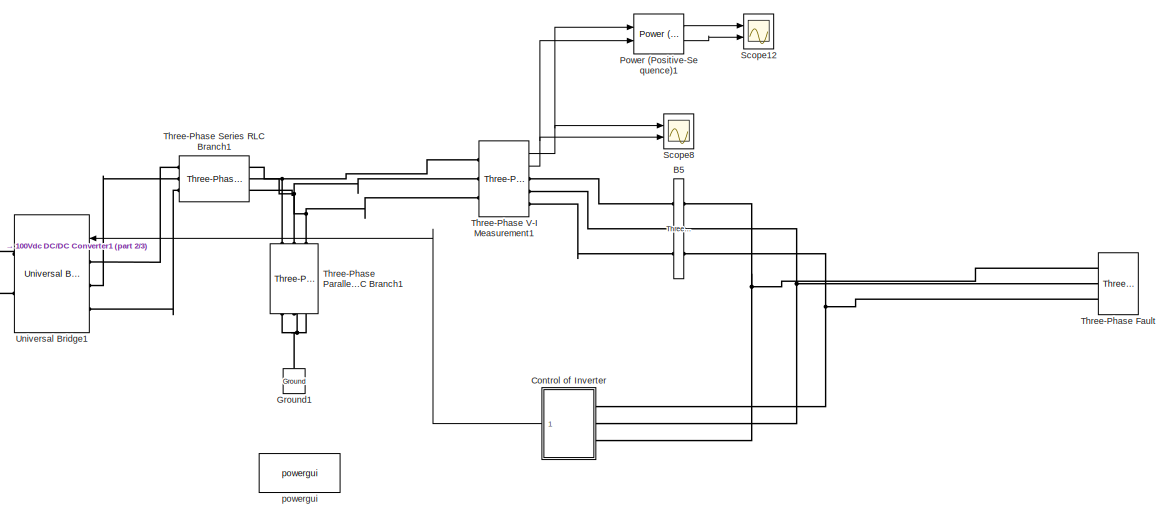
[diagram: root canvas - part 1/3, full width, top band]
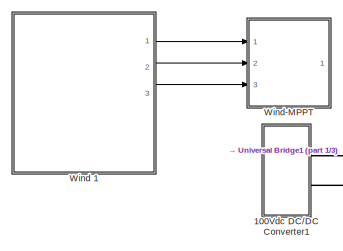
[diagram: root canvas - part 2/3, top left region]
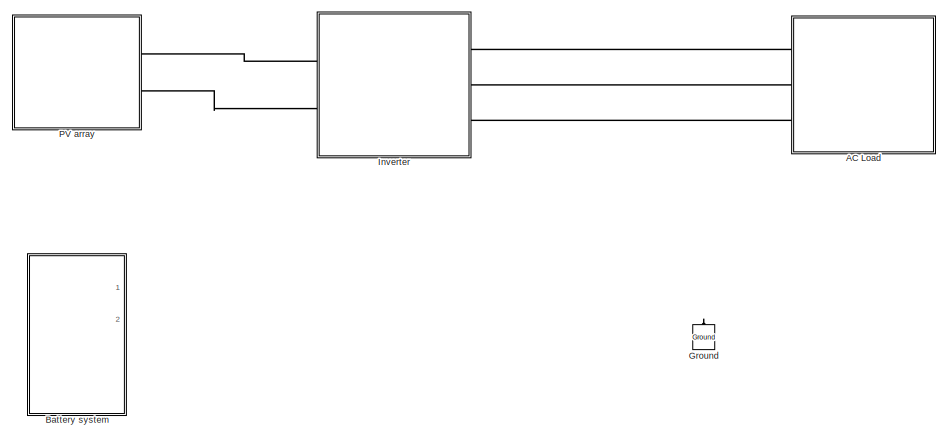
[diagram: root canvas - part 3/3, bottom left region]
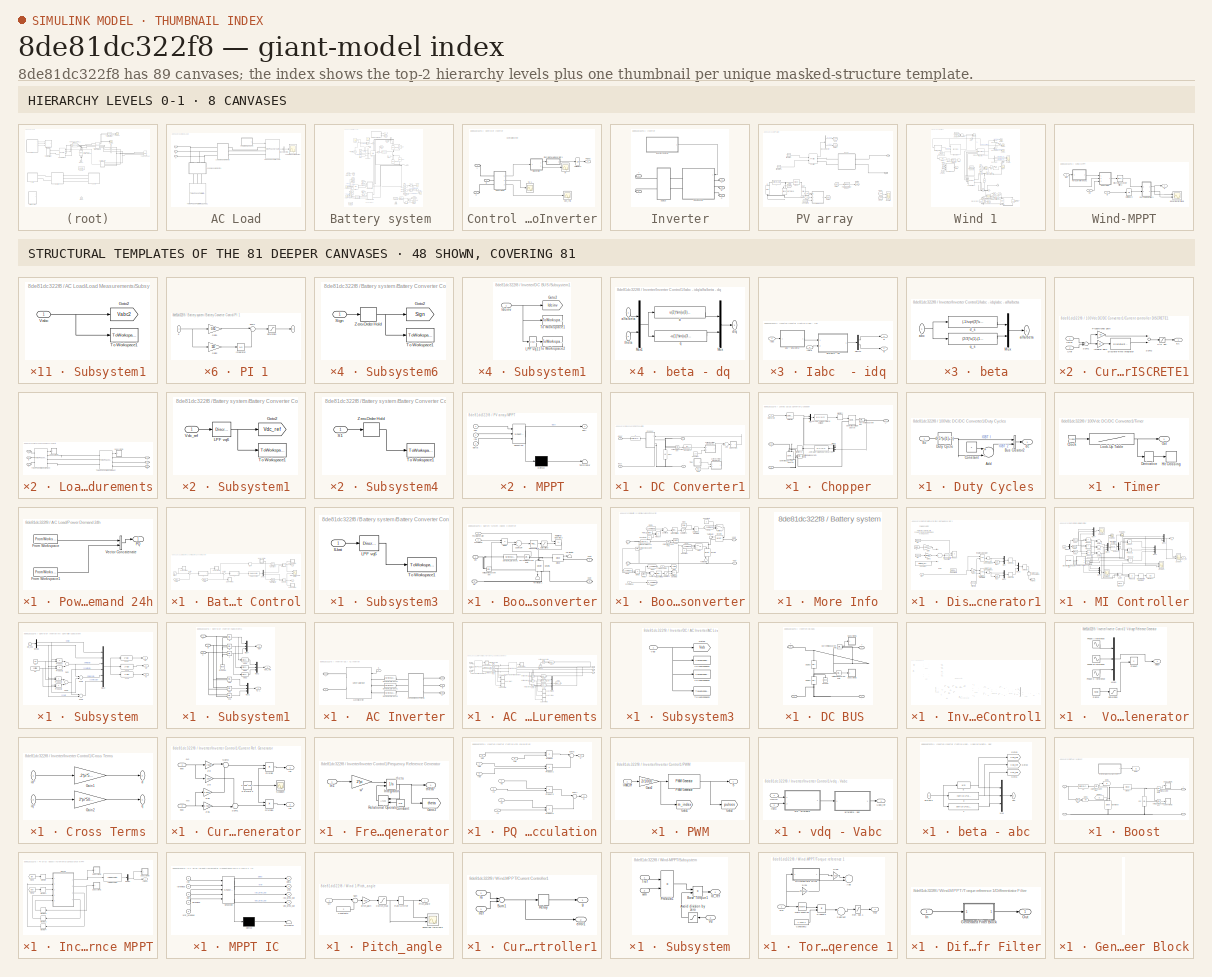
[diagram: thumbnail index - top-2 hierarchy levels (8 canvases) + 48 structural-template representatives of the remaining 81 canvases]
MODEL slx_8de81dc322f8
KIND model
CONFIG AbsTol = auto
CONFIG EnableMultiTasking = off
CONFIG FixedStep = auto
CONFIG MaxStep = auto
CONFIG MinStep = auto
CONFIG RelTol = 1e-3
CONFIG SampleTimeConstraint = Unconstrained
CONFIG Solver = VariableStepAuto
CONFIG SolverName = VariableStepAuto
CONFIG StartTime = 0.0
CONFIG StopTime = 100
BLOCK [SubSystem] 100Vdc DC//DC Converter1
  Ports = [0, 0, 0, 0, 0, 2, 2]
  RequestExecContextInheritance = off
BLOCK [PMIOPort] 100Vdc DC//DC Converter1/+
  Side = Right
  Tag = PMCPort
BLOCK [PMIOPort] 100Vdc DC//DC Converter1/+ input
  Port = 3
  Side = Left
  Tag = PMCPort
BLOCK [PMIOPort] 100Vdc DC//DC Converter1/-
  Port = 2
  Side = Right
  Tag = PMCPort
BLOCK [PMIOPort] 100Vdc DC//DC Converter1/-input
  Port = 4
  Side = Left
  Tag = PMCPort
BLOCK [Sum] 100Vdc DC//DC Converter1/Add
  InputSameDT = off
  OutDataTypeStr = Inherit: Inherit via internal rule
  Ports = [2, 1]
  SaturateOnIntegerOverflow = off
BLOCK [Reference] 100Vdc DC//DC Converter1/CBus  REF=powerlib/Elements/Series RLC Branch
  Ports = [0, 0, 0, 0, 0, 1, 1]
  SourceBlock = powerlib/Elements/Series RLC Branch
  SourceProductBaseCode = PS
  SourceProductName = Simscape Electrical
  SourceType = Series RLC Branch
BLOCK [SubSystem] 100Vdc DC//DC Converter1/Chopper
  Ports = [1, 0, 0, 0, 0, 2, 1]
  RequestExecContextInheritance = off
BLOCK [PMIOPort] 100Vdc DC//DC Converter1/Chopper/+
  Port = 2
  Side = Left
BLOCK [PMIOPort] 100Vdc DC//DC Converter1/Chopper/-
  Port = 3
  Side = Left
BLOCK [PMIOPort] 100Vdc DC//DC Converter1/Chopper/A
  Side = Right
BLOCK [Fcn] 100Vdc DC//DC Converter1/Chopper/Average-value armature voltage
  Expr = u(1)*u(2)
BLOCK [Fcn] 100Vdc DC//DC Converter1/Chopper/Average-value source current
  Expr = u(1)*u(2)
BLOCK [Reference] 100Vdc DC//DC Converter1/Chopper/Controlled Current Source  REF=powerlib/Electrical
Sources/Controlled Current Source
  Ports = [1, 0, 0, 0, 0, 1, 1]
  SourceBlock = powerlib/Electrical\nSources/Controlled Current Source
  SourceProductBaseCode = PS
  SourceProductName = Simscape Electrical
  SourceType = Controlled Current Source
BLOCK [Reference] 100Vdc DC//DC Converter1/Chopper/Controlled Voltage Source  REF=powerlib/Electrical
Sources/Controlled Voltage Source
  Ports = [1, 0, 0, 0, 0, 1, 1]
  SourceBlock = powerlib/Electrical\nSources/Controlled Voltage Source
  SourceProductBaseCode = PS
  SourceProductName = Simscape Electrical
  SourceType = Controlled Voltage Source
BLOCK [Reference] 100Vdc DC//DC Converter1/Chopper/Current Measurement  REF=powerlib/Measurements/Current Measurement
  AttributesFormatString = \n
  Ports = [0, 1, 0, 0, 0, 1, 1]
  SourceBlock = powerlib/Measurements/Current Measurement
  SourceProductBaseCode = PS
  SourceProductName = Simscape Electrical
  SourceType = Current Measurement
  Tag = PoWeRsYsTeMmEaSuReMeNt
BLOCK [Inport] 100Vdc DC//DC Converter1/Chopper/Duty Cycle
  IconDisplay = Port number
BLOCK [Memory] 100Vdc DC//DC Converter1/Chopper/Memory
BLOCK [Memory] 100Vdc DC//DC Converter1/Chopper/Memory1
BLOCK [Mux] 100Vdc DC//DC Converter1/Chopper/Mux
  DisplayOption = bar
  Inputs = 2
  Ports = [2, 1]
BLOCK [Mux] 100Vdc DC//DC Converter1/Chopper/Mux1
  DisplayOption = bar
  Inputs = 2
  Ports = [2, 1]
BLOCK [Selector] 100Vdc DC//DC Converter1/Chopper/Selector
  IndexOptions = Index vector (dialog)
  Indices = [1]
  InputPortWidth = 2
  OutputSizes = 1
  Ports = [1, 1]
BLOCK [Reference] 100Vdc DC//DC Converter1/Chopper/Voltage Measurement1  REF=powerlib/Measurements/Voltage Measurement
  AttributesFormatString = \n
  Ports = [0, 1, 0, 0, 0, 2]
  SourceBlock = powerlib/Measurements/Voltage Measurement
  SourceProductBaseCode = PS
  SourceProductName = Simscape Electrical
  SourceType = Voltage Measurement
  Tag = PoWeRsYsTeMmEaSuReMeNt
BLOCK [Constant] 100Vdc DC//DC Converter1/Constant
  Value = 100
BLOCK [SubSystem] 100Vdc DC//DC Converter1/Current controller DISCRETE1
  Ports = [2, 1]
  RequestExecContextInheritance = off
BLOCK [Saturate] 100Vdc DC//DC Converter1/Current controller DISCRETE1/Ctrl sat.
  InputPortMap = u0
  LowerLimit = -0.95
  Ports = [1, 1]
  UpperLimit = 0.95
BLOCK [DiscreteIntegrator] 100Vdc DC//DC Converter1/Current controller DISCRETE1/Discrete-Time Integrator
  ICPrevOutput = DiscIntNeverNeededParam
  ICPrevScaledInput = DiscIntNeverNeededParam
  IntegratorMethod = Integration: Trapezoidal
  LimitOutput = on
  LowerSaturationLimit = -0.95
  Ports = [1, 1]
  SampleTime = Ts
  UpperSaturationLimit = 0.95
BLOCK [Outport] 100Vdc DC//DC Converter1/Current controller DISCRETE1/Ec
  IconDisplay = Port number
  InitialOutput = 0
BLOCK [Gain] 100Vdc DC//DC Converter1/Current controller DISCRETE1/Integral gain
  Gain = Ki
BLOCK [Gain] 100Vdc DC//DC Converter1/Current controller DISCRETE1/Proportional gain
  Gain = Kp
BLOCK [Sum] 100Vdc DC//DC Converter1/Current controller DISCRETE1/Sum1
  Inputs = +-
  Ports = [2, 1]
BLOCK [Sum] 100Vdc DC//DC Converter1/Current controller DISCRETE1/Sum2
  Ports = [2, 1]
BLOCK [Inport] 100Vdc DC//DC Converter1/Current controller DISCRETE1/UBus
  IconDisplay = Port number
BLOCK [Inport] 100Vdc DC//DC Converter1/Current controller DISCRETE1/Uref
  IconDisplay = Port number
  Port = 2
BLOCK [SubSystem] 100Vdc DC//DC Converter1/Current controller DISCRETE2
  Ports = [2, 1]
  RequestExecContextInheritance = off
BLOCK [Saturate] 100Vdc DC//DC Converter1/Current controller DISCRETE2/Ctrl sat.
  InputPortMap = u0
  LowerLimit = -0.95
  Ports = [1, 1]
  UpperLimit = 0.95
BLOCK [Outport] 100Vdc DC//DC Converter1/Current controller DISCRETE2/Delta Ec
  IconDisplay = Port number
  InitialOutput = 0
BLOCK [DiscreteIntegrator] 100Vdc DC//DC Converter1/Current controller DISCRETE2/Discrete-Time Integrator
  ICPrevOutput = DiscIntNeverNeededParam
  ICPrevScaledInput = DiscIntNeverNeededParam
  IntegratorMethod = Integration: Trapezoidal
  LimitOutput = on
  LowerSaturationLimit = -0.95
  Ports = [1, 1]
  SampleTime = Ts
  UpperSaturationLimit = 0.95
BLOCK [Gain] 100Vdc DC//DC Converter1/Current controller DISCRETE2/Integral gain
  Gain = Ki
BLOCK [Inport] 100Vdc DC//DC Converter1/Current controller DISCRETE2/Ppv
  IconDisplay = Port number
  Port = 2
BLOCK [Inport] 100Vdc DC//DC Converter1/Current controller DISCRETE2/Pref
  IconDisplay = Port number
BLOCK [Gain] 100Vdc DC//DC Converter1/Current controller DISCRETE2/Proportional gain
  Gain = Kp
BLOCK [Sum] 100Vdc DC//DC Converter1/Current controller DISCRETE2/Sum1
  Inputs = +-
  Ports = [2, 1]
BLOCK [Sum] 100Vdc DC//DC Converter1/Current controller DISCRETE2/Sum2
  Ports = [2, 1]
BLOCK [SubSystem] 100Vdc DC//DC Converter1/Duty Cycles
  Ports = [1, 1]
  RequestExecContextInheritance = off
BLOCK [Sum] 100Vdc DC//DC Converter1/Duty Cycles/Add
  InputSameDT = off
  Inputs = +-
  OutDataTypeStr = Inherit: Inherit via internal rule
  Ports = [2, 1]
  SaturateOnIntegerOverflow = off
BLOCK [BusCreator] 100Vdc DC//DC Converter1/Duty Cycles/Bus Creator2
  DisplayOption = bar
  InheritFromInputs = on
  Inputs = 2
  Ports = [2, 1]
BLOCK [Constant] 100Vdc DC//DC Converter1/Duty Cycles/Constant
BLOCK [Fcn] 100Vdc DC//DC Converter1/Duty Cycles/Duty Cycle
  Expr = 0.5*(u[1]+1)
BLOCK [Inport] 100Vdc DC//DC Converter1/Duty Cycles/Ec
  IconDisplay = Port number
BLOCK [Outport] 100Vdc DC//DC Converter1/Duty Cycles/dc
  IconDisplay = Port number
BLOCK [From] 100Vdc DC//DC Converter1/From
  GotoTag = Ppv
BLOCK [Reference] 100Vdc DC//DC Converter1/L  REF=powerlib/Elements/Series RLC Branch
  Ports = [0, 0, 0, 0, 0, 1, 1]
  SourceBlock = powerlib/Elements/Series RLC Branch
  SourceProductBaseCode = PS
  SourceProductName = Simscape Electrical
  SourceType = Series RLC Branch
BLOCK [SubSystem] 100Vdc DC//DC Converter1/Timer
  DialogController = POWERSYS.PowerSysDialog
  Ports = [0, 1]
  RequestExecContextInheritance = off
BLOCK [Clock] 100Vdc DC//DC Converter1/Timer/Clock
BLOCK [Derivative] 100Vdc DC//DC Converter1/Timer/Derivative
BLOCK [HitCross] 100Vdc DC//DC Converter1/Timer/Hit Crossing
  Ports = [1]
  ShowOutputPort = off
BLOCK [Lookup] 100Vdc DC//DC Converter1/Timer/Look-Up Table
  InputValues = tv
  Table = opv
BLOCK [Outport] 100Vdc DC//DC Converter1/Timer/Out
  IconDisplay = Port number
BLOCK [TransferFcn] 100Vdc DC//DC Converter1/Transfer Fcn
  Denominator = [0.001 1]
BLOCK [Reference] 100Vdc DC//DC Converter1/Voltage Measurement  REF=powerlib/Measurements/Voltage Measurement
  Ports = [0, 1, 0, 0, 0, 2]
  SourceBlock = powerlib/Measurements/Voltage Measurement
  SourceProductBaseCode = PS
  SourceProductName = Simscape Electrical
  SourceType = Voltage Measurement
BLOCK [SubSystem] AC Load
  Ports = [0, 0, 0, 0, 0, 3]
  RequestExecContextInheritance = off
BLOCK [Reference] AC Load/3-Phase Dynamic Load  REF=powerlib/Elements/Three-Phase
Dynamic Load
  Ports = [1, 1, 0, 0, 0, 3]
  SourceBlock = powerlib/Elements/Three-Phase\nDynamic Load
  SourceProductBaseCode = PS
  SourceProductName = Simscape Electrical
  SourceType = Three-Phase Dynamic Load
BLOCK [PMIOPort] AC Load/A
  Side = Left
BLOCK [PMIOPort] AC Load/B
  Port = 2
  Side = Left
BLOCK [BusSelector] AC Load/Bus Selector1
  OutputAsBus = on
  OutputSignals = Active power P (W),Reactive power Q (var)
  Ports = [1, 1]
BLOCK [PMIOPort] AC Load/C
  Port = 3
  Side = Left
BLOCK [SubSystem] AC Load/Load Measurements
  Ports = [0, 0, 0, 0, 0, 3, 3]
  RequestExecContextInheritance = off
BLOCK [PMIOPort] AC Load/Load Measurements/A
  Side = Left
BLOCK [PMIOPort] AC Load/Load Measurements/A 
  Port = 2
  Side = Right
BLOCK [PMIOPort] AC Load/Load Measurements/B
  Port = 3
  Side = Left
BLOCK [PMIOPort] AC Load/Load Measurements/B 
  Port = 4
  Side = Right
BLOCK [PMIOPort] AC Load/Load Measurements/C
  Port = 5
  Side = Left
BLOCK [PMIOPort] AC Load/Load Measurements/C 
  Port = 6
  Side = Right
BLOCK [SubSystem] AC Load/Load Measurements/Subsystem1
  Ports = [1]
  RequestExecContextInheritance = off
BLOCK [Goto] AC Load/Load Measurements/Subsystem1/Goto2
  GotoTag = Vabc2
  TagVisibility = global
BLOCK [ToWorkspace] AC Load/Load Measurements/Subsystem1/To Workspace1
  MaxDataPoints = inf
  Ports = [1]
  SampleTime = -1
  VariableName = Vabc2
BLOCK [Inport] AC Load/Load Measurements/Subsystem1/Vabc
  IconDisplay = Port number
BLOCK [SubSystem] AC Load/Load Measurements/Subsystem2
  Ports = [1]
  RequestExecContextInheritance = off
BLOCK [Goto] AC Load/Load Measurements/Subsystem2/Goto2
  GotoTag = Iabc2
  TagVisibility = global
BLOCK [Inport] AC Load/Load Measurements/Subsystem2/Iabc
  IconDisplay = Port number
BLOCK [ToWorkspace] AC Load/Load Measurements/Subsystem2/To Workspace1
  MaxDataPoints = inf
  Ports = [1]
  SampleTime = -1
  VariableName = Iabc2
BLOCK [Reference] AC Load/Load Measurements/Three-Phase I Measurement  REF=powerlib/Measurements/Three-Phase
V-I Measurement
  Ports = [0, 1, 0, 0, 0, 3, 3]
  SourceBlock = powerlib/Measurements/Three-Phase\nV-I Measurement
  SourceProductBaseCode = PS
  SourceProductName = Simscape Electrical
  SourceType = Three-Phase VI Measurement
BLOCK [Reference] AC Load/Load Measurements/Three-Phase V Measurement  REF=powerlib/Measurements/Three-Phase
V-I Measurement
  Ports = [0, 1, 0, 0, 0, 3, 3]
  SourceBlock = powerlib/Measurements/Three-Phase\nV-I Measurement
  SourceProductBaseCode = PS
  SourceProductName = Simscape Electrical
  SourceType = Three-Phase VI Measurement
BLOCK [SubSystem] AC Load/Load Measurements1
  Ports = [0, 0, 0, 0, 0, 3, 3]
  RequestExecContextInheritance = off
BLOCK [PMIOPort] AC Load/Load Measurements1/A 
  Port = 2
  Side = Right
BLOCK [PMIOPort] AC Load/Load Measurements1/B
  Port = 3
  Side = Left
BLOCK [PMIOPort] AC Load/Load Measurements1/B 
  Port = 4
  Side = Right
BLOCK [PMIOPort] AC Load/Load Measurements1/C
  Port = 5
  Side = Left
BLOCK [PMIOPort] AC Load/Load Measurements1/C 
  Port = 6
  Side = Right
BLOCK [SubSystem] AC Load/Load Measurements1/Subsystem1
  Ports = [1]
  RequestExecContextInheritance = off
BLOCK [Goto] AC Load/Load Measurements1/Subsystem1/Goto2
  GotoTag = Vabc3
  TagVisibility = global
BLOCK [ToWorkspace] AC Load/Load Measurements1/Subsystem1/To Workspace1
  MaxDataPoints = inf
  Ports = [1]
  SampleTime = -1
  VariableName = Vabc3
BLOCK [Inport] AC Load/Load Measurements1/Subsystem1/Vabc
  IconDisplay = Port number
BLOCK [SubSystem] AC Load/Load Measurements1/Subsystem2
  Ports = [1]
  RequestExecContextInheritance = off
BLOCK [Goto] AC Load/Load Measurements1/Subsystem2/Goto2
  GotoTag = Iabc3
  TagVisibility = global
BLOCK [Inport] AC Load/Load Measurements1/Subsystem2/Iabc3
  IconDisplay = Port number
BLOCK [ToWorkspace] AC Load/Load Measurements1/Subsystem2/To Workspace1
  MaxDataPoints = inf
  Ports = [1]
  SampleTime = -1
  VariableName = Iabc3
BLOCK [Reference] AC Load/Load Measurements1/Three-Phase I Measurement  REF=powerlib/Measurements/Three-Phase
V-I Measurement
  Ports = [0, 1, 0, 0, 0, 3, 3]
  SourceBlock = powerlib/Measurements/Three-Phase\nV-I Measurement
  SourceProductBaseCode = PS
  SourceProductName = Simscape Electrical
  SourceType = Three-Phase VI Measurement
BLOCK [Reference] AC Load/Load Measurements1/Three-Phase V Measurement  REF=powerlib/Measurements/Three-Phase
V-I Measurement
  Ports = [0, 1, 0, 0, 0, 3, 3]
  SourceBlock = powerlib/Measurements/Three-Phase\nV-I Measurement
  SourceProductBaseCode = PS
  SourceProductName = Simscape Electrical
  SourceType = Three-Phase VI Measurement
BLOCK [PMIOPort] AC Load/Load Measurements1/a
  Side = Left
BLOCK [Scope] AC Load/Load Measurements2
  Floating = off
  NumInputPorts = 1
  Ports = [1]
  ScopeSpecificationString = C++SS(StrPVP('Location','[534, 98, 1318, 894]'),StrPVP('Open','off'),StrPVP('ZoomMode','xonly'),MxPVP('AxesTitles',53,'struct(''axes1'',''Phase to Ground Load Voltages, Vabc (V)'')'),MxPVP('ScopeGraphics',56,'struct(''FigureColor'',''[0.5 0.5 0.5]'',''AxesColor'',''[0 0 0]'',''AxesTickColor'',''[1 1 1]'',''LineColors'',''[1 1 0;1 0 1;0 1 1;1 0 0;0 1 0;0 0 1]'',''LineStyles'',''-|-|-|-|-|-'',''Line...<+389ch>
BLOCK [SubSystem] AC Load/Power Demand 24h
  Ports = [0, 1]
  RequestExecContextInheritance = off
BLOCK [FromWorkspace] AC Load/Power Demand 24h/From Workspace
  SampleTime = 0
  VariableName = VARPA'
  ZeroCross = on
BLOCK [FromWorkspace] AC Load/Power Demand 24h/From Workspace1
  SampleTime = 0
  VariableName = VARPQ'
  ZeroCross = on
BLOCK [Outport] AC Load/Power Demand 24h/PQ
  IconDisplay = Port number
BLOCK [Concatenate] AC Load/Power Demand 24h/Vector Concatenate
  Ports = [2, 1]
BLOCK [Reference] AC Load/Three-Phase Parallel RLC Load1  REF=powerlib/Elements/Three-Phase
Parallel RLC Load
  AttributesFormatString = \n
  Ports = [0, 0, 0, 0, 0, 3]
  SourceBlock = powerlib/Elements/Three-Phase\nParallel RLC Load
  SourceProductBaseCode = PS
  SourceProductName = Simscape Electrical
  SourceType = Three-Phase Parallel RLC Load
BLOCK [Reference] B5  REF=powerlib/Measurements/Three-Phase
V-I Measurement
  Ports = [0, 0, 0, 0, 0, 3, 3]
  SourceBlock = powerlib/Measurements/Three-Phase\nV-I Measurement
  SourceProductBaseCode = PS
  SourceProductName = Simscape Electrical
  SourceType = Three-Phase VI Measurement
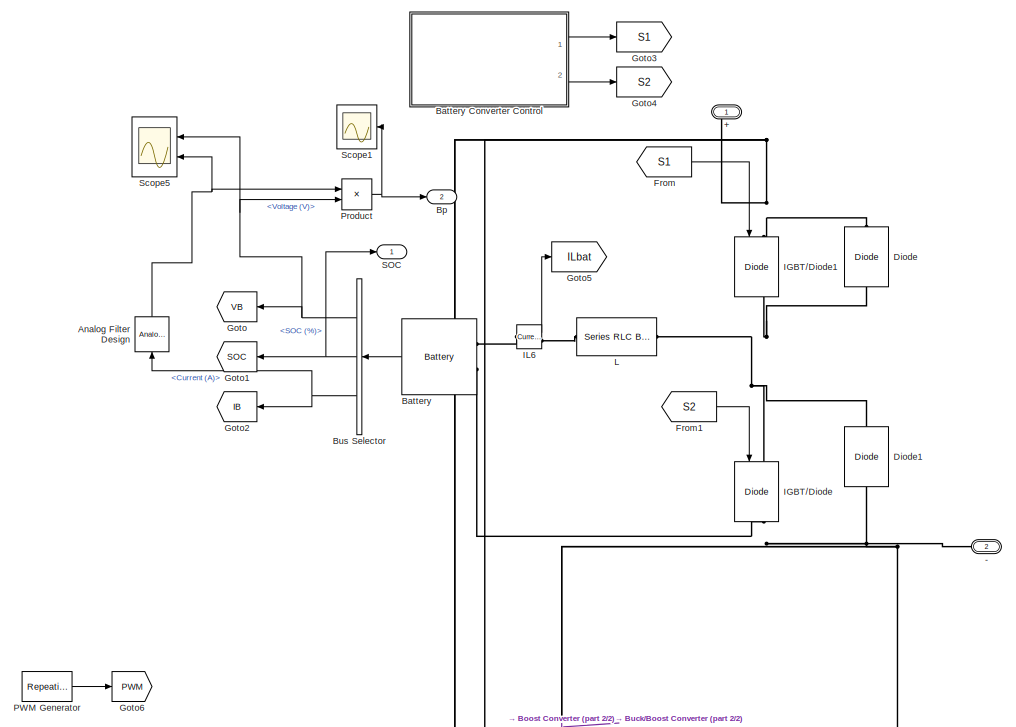
[diagram: Battery system  - part 1/2, full width, top band]
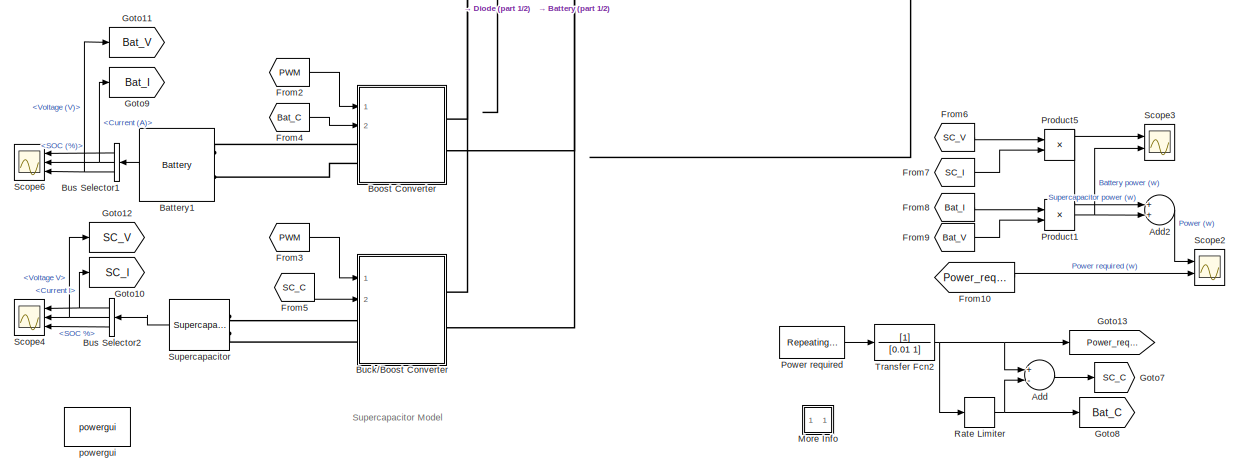
[diagram: Battery system  - part 2/2, full width, bottom band]
BLOCK [SubSystem] Battery system 
  Ports = [0, 2, 0, 0, 0, 0, 2]
  RequestExecContextInheritance = off
BLOCK [PMIOPort] Battery system /+
  Side = Right
BLOCK [PMIOPort] Battery system /-
  Port = 2
  Side = Right
BLOCK [Sum] Battery system /Add
  InputSameDT = off
  Inputs = +-
  OutDataTypeStr = Inherit: Inherit via internal rule
  Ports = [2, 1]
  SaturateOnIntegerOverflow = off
BLOCK [Sum] Battery system /Add2
  InputSameDT = off
  OutDataTypeStr = Inherit: Inherit via internal rule
  Ports = [2, 1]
  SaturateOnIntegerOverflow = off
BLOCK [Reference] Battery system /Analog Filter Design  REF=dsparch4/Analog
Filter Design
  Ports = [1, 1]
  SourceBlock = dsparch4/Analog\nFilter Design
  SourceProductBaseCode = DS
  SourceProductName = DSP System Toolbox
  SourceType = Analog Filter Design
BLOCK [Reference] Battery system /Battery  REF=electricdrivelib/Extra Sources/Battery
  Ports = [0, 1, 0, 0, 0, 2]
  SourceBlock = electricdrivelib/Extra Sources/Battery
  SourceProductBaseCode = PS
  SourceProductName = Simscape Electrical
  SourceType = Battery
BLOCK [SubSystem] Battery system /Battery Converter Control
  Ports = [0, 2]
  RequestExecContextInheritance = off
BLOCK [Reference] Battery system /Battery Converter Control/Compare To Constant  REF=simulink/Logic and Bit
Operations/Compare
To Constant
  Ports = [1, 1]
  SourceBlock = simulink/Logic and Bit\nOperations/Compare\nTo Constant
  SourceProductBaseCode = SL
  SourceProductName = Simulink
  SourceType = Compare To Constant
BLOCK [Reference] Battery system /Battery Converter Control/Compare To Constant1  REF=simulink/Logic and Bit
Operations/Compare
To Constant
  Ports = [1, 1]
  SourceBlock = simulink/Logic and Bit\nOperations/Compare\nTo Constant
  SourceProductBaseCode = SL
  SourceProductName = Simulink
  SourceType = Compare To Constant
BLOCK [Scope] Battery system /Battery Converter Control/DC Bus Measurements4
  Floating = off
  NumInputPorts = 2
  Ports = [2]
  ScopeSpecificationString = C++SS(StrPVP('Location','[6, 48, 1372, 727]'),StrPVP('Open','off'),StrPVP('ZoomMode','xonly'),MxPVP('AxesTitles',53,'struct(''axes1'',''Phase to Ground Load Voltages, Vabc (V)'',''axes2'',''Load Currents, Iabc (A)'')'),MxPVP('ScopeGraphics',56,'struct(''FigureColor'',''[0.5 0.5 0.5]'',''AxesColor'',''[0 0 0]'',''AxesTickColor'',''[1 1 1]'',''LineColors'',''[1 1 0;1 0 1;0 1 1;1 0 0;0 1 0;0 0 1]'','...<+436ch>
BLOCK [Demux] Battery system /Battery Converter Control/Demux
  DisplayOption = bar
  Outputs = 2
  Ports = [1, 2]
BLOCK [From] Battery system /Battery Converter Control/From1
  GotoTag = Vdc
BLOCK [From] Battery system /Battery Converter Control/From2
  GotoTag = ILbat
  TagVisibility = global
BLOCK [SubSystem] Battery system /Battery Converter Control/PI 1
  Ports = [1, 1]
  RequestExecContextInheritance = off
BLOCK [Outport] Battery system /Battery Converter Control/PI 1/ 
  IconDisplay = Port number
BLOCK [Gain] Battery system /Battery Converter Control/PI 1/Gain1
  Gain = 0.65
  OutDataTypeStr = Inherit: Inherit via internal rule
  ParamDataTypeStr = Inherit: Inherit via internal rule
  SaturateOnIntegerOverflow = off
BLOCK [Gain] Battery system /Battery Converter Control/PI 1/Gain2
  Gain = 150
  OutDataTypeStr = Inherit: Inherit via internal rule
  ParamDataTypeStr = Inherit: Inherit via internal rule
  SaturateOnIntegerOverflow = off
BLOCK [Integrator] Battery system /Battery Converter Control/PI 1/Integrator
  Ports = [1, 1]
BLOCK [Saturate] Battery system /Battery Converter Control/PI 1/Saturation
  InputPortMap = u0
  LowerLimit = -100
  Ports = [1, 1]
  UpperLimit = 500
BLOCK [Sum] Battery system /Battery Converter Control/PI 1/Sum1
  IconShape = round
  InputSameDT = off
  Inputs = |++
  OutDataTypeStr = Inherit: Inherit via internal rule
  Ports = [2, 1]
  SaturateOnIntegerOverflow = off
BLOCK [Inport] Battery system /Battery Converter Control/PI 1/e
  IconDisplay = Port number
BLOCK [SubSystem] Battery system /Battery Converter Control/PI 2
  Ports = [1, 1]
  RequestExecContextInheritance = off
BLOCK [Outport] Battery system /Battery Converter Control/PI 2/ 
  IconDisplay = Port number
BLOCK [Gain] Battery system /Battery Converter Control/PI 2/Gain1
  OutDataTypeStr = Inherit: Inherit via internal rule
  ParamDataTypeStr = Inherit: Inherit via internal rule
  SaturateOnIntegerOverflow = off
BLOCK [Gain] Battery system /Battery Converter Control/PI 2/Gain2
  OutDataTypeStr = Inherit: Inherit via internal rule
  ParamDataTypeStr = Inherit: Inherit via internal rule
  SaturateOnIntegerOverflow = off
BLOCK [Integrator] Battery system /Battery Converter Control/PI 2/Integrator
  Ports = [1, 1]
BLOCK [Saturate] Battery system /Battery Converter Control/PI 2/Saturation
  InputPortMap = u0
  LowerLimit = -1
  Ports = [1, 1]
  UpperLimit = 1
BLOCK [Sum] Battery system /Battery Converter Control/PI 2/Sum1
  IconShape = round
  InputSameDT = off
  Inputs = |++
  OutDataTypeStr = Inherit: Inherit via internal rule
  Ports = [2, 1]
  SaturateOnIntegerOverflow = off
BLOCK [Inport] Battery system /Battery Converter Control/PI 2/e
  IconDisplay = Port number
BLOCK [Reference] Battery system /Battery Converter Control/PWM Generator2  REF=powerlib_extras/Control 
Blocks/PWM Generator
  Ports = [1, 1]
  SourceBlock = powerlib_extras/Control \nBlocks/PWM Generator
  SourceProductBaseCode = PS
  SourceProductName = Simscape Electrical
  SourceType = PWM Generator
BLOCK [Product] Battery system /Battery Converter Control/Product
  InputSameDT = off
  OutDataTypeStr = Inherit: Inherit via internal rule
  Ports = [2, 1]
  SaturateOnIntegerOverflow = off
BLOCK [Product] Battery system /Battery Converter Control/Product1
  InputSameDT = off
  OutDataTypeStr = Inherit: Inherit via internal rule
  Ports = [2, 1]
  SaturateOnIntegerOverflow = off
BLOCK [Outport] Battery system /Battery Converter Control/S1
  IconDisplay = Port number
BLOCK [Outport] Battery system /Battery Converter Control/S2
  IconDisplay = Port number
  Port = 2
BLOCK [Signum] Battery system /Battery Converter Control/Sign
  SampleTime = 5e-6
BLOCK [Step] Battery system /Battery Converter Control/Step1
  After = 1000
  SampleTime = 0
  Time = 0
BLOCK [SubSystem] Battery system /Battery Converter Control/Subsystem1
  Ports = [1]
  RequestExecContextInheritance = off
BLOCK [Goto] Battery system /Battery Converter Control/Subsystem1/Goto2
  GotoTag = Vdc_ref
  TagVisibility = global
BLOCK [Reference] Battery system /Battery Converter Control/Subsystem1/LPF vq6  REF=powerlib_extras/Discrete 
Control Blocks/Discrete
1st-Order
Filter
  Ports = [1, 1]
  SourceBlock = powerlib_extras/Discrete \nControl Blocks/Discrete\n1st-Order\nFilter
  SourceProductBaseCode = PS
  SourceProductName = Simscape Electrical
  SourceType = Discrete 1st-Order Filter
BLOCK [ToWorkspace] Battery system /Battery Converter Control/Subsystem1/To Workspace1
  MaxDataPoints = inf
  Ports = [1]
  SampleTime = -1
  VariableName = Vdc_ref
BLOCK [Inport] Battery system /Battery Converter Control/Subsystem1/Vdc_ref
  IconDisplay = Port number
BLOCK [SubSystem] Battery system /Battery Converter Control/Subsystem2
  Ports = [1]
  RequestExecContextInheritance = off
BLOCK [Goto] Battery system /Battery Converter Control/Subsystem2/Goto2
  GotoTag = Ibat_ref
  TagVisibility = global
BLOCK [Inport] Battery system /Battery Converter Control/Subsystem2/Ibat_ref
  IconDisplay = Port number
BLOCK [Reference] Battery system /Battery Converter Control/Subsystem2/LPF vq6  REF=powerlib_extras/Discrete 
Control Blocks/Discrete
1st-Order
Filter
  Ports = [1, 1]
  SourceBlock = powerlib_extras/Discrete \nControl Blocks/Discrete\n1st-Order\nFilter
  SourceProductBaseCode = PS
  SourceProductName = Simscape Electrical
  SourceType = Discrete 1st-Order Filter
BLOCK [ToWorkspace] Battery system /Battery Converter Control/Subsystem2/To Workspace1
  MaxDataPoints = inf
  Ports = [1]
  SampleTime = -1
  VariableName = Ibat_ref
BLOCK [SubSystem] Battery system /Battery Converter Control/Subsystem3
  Ports = [1]
  RequestExecContextInheritance = off
BLOCK [Inport] Battery system /Battery Converter Control/Subsystem3/ILbat
  IconDisplay = Port number
BLOCK [Reference] Battery system /Battery Converter Control/Subsystem3/LPF vq6  REF=powerlib_extras/Discrete 
Control Blocks/Discrete
1st-Order
Filter
  Ports = [1, 1]
  SourceBlock = powerlib_extras/Discrete \nControl Blocks/Discrete\n1st-Order\nFilter
  SourceProductBaseCode = PS
  SourceProductName = Simscape Electrical
  SourceType = Discrete 1st-Order Filter
BLOCK [ToWorkspace] Battery system /Battery Converter Control/Subsystem3/To Workspace1
  MaxDataPoints = inf
  Ports = [1]
  SampleTime = -1
  VariableName = ILbat
BLOCK [SubSystem] Battery system /Battery Converter Control/Subsystem4
  Ports = [1]
  RequestExecContextInheritance = off
BLOCK [Inport] Battery system /Battery Converter Control/Subsystem4/S1
  IconDisplay = Port number
BLOCK [ToWorkspace] Battery system /Battery Converter Control/Subsystem4/To Workspace1
  MaxDataPoints = inf
  Ports = [1]
  SampleTime = -1
  VariableName = S1
BLOCK [ZeroOrderHold] Battery system /Battery Converter Control/Subsystem4/Zero-Order Hold
  SampleTime = 5e-6
BLOCK [SubSystem] Battery system /Battery Converter Control/Subsystem5
  Ports = [1]
  RequestExecContextInheritance = off
BLOCK [Inport] Battery system /Battery Converter Control/Subsystem5/S2
  IconDisplay = Port number
BLOCK [ToWorkspace] Battery system /Battery Converter Control/Subsystem5/To Workspace1
  MaxDataPoints = inf
  Ports = [1]
  SampleTime = -1
  VariableName = S2
BLOCK [ZeroOrderHold] Battery system /Battery Converter Control/Subsystem5/Zero-Order Hold
  SampleTime = 5e-6
BLOCK [SubSystem] Battery system /Battery Converter Control/Subsystem6
  Ports = [1]
  RequestExecContextInheritance = off
BLOCK [Goto] Battery system /Battery Converter Control/Subsystem6/Goto2
  GotoTag = Sign
  TagVisibility = global
BLOCK [Inport] Battery system /Battery Converter Control/Subsystem6/Sign
  IconDisplay = Port number
BLOCK [ToWorkspace] Battery system /Battery Converter Control/Subsystem6/To Workspace1
  MaxDataPoints = inf
  Ports = [1]
  SampleTime = -1
  VariableName = Sign
BLOCK [ZeroOrderHold] Battery system /Battery Converter Control/Subsystem6/Zero-Order Hold
  SampleTime = 5e-6
BLOCK [Sum] Battery system /Battery Converter Control/Sum1
  IconShape = round
  InputSameDT = off
  Inputs = |+-
  OutDataTypeStr = Inherit: Inherit via internal rule
  Ports = [2, 1]
  SaturateOnIntegerOverflow = off
BLOCK [Sum] Battery system /Battery Converter Control/Sum3
  IconShape = round
  InputSameDT = off
  Inputs = |+-
  OutDataTypeStr = Inherit: Inherit via internal rule
  Ports = [2, 1]
  SaturateOnIntegerOverflow = off
BLOCK [Reference] Battery system /Battery1  REF=electricdrivelib/Extra Sources/Battery
  Ports = [0, 1, 0, 0, 0, 2]
  SourceBlock = electricdrivelib/Extra Sources/Battery
  SourceProductBaseCode = PS
  SourceProductName = Simscape Electrical
  SourceType = Battery
BLOCK [SubSystem] Battery system /Boost Converter
  Ports = [2, 0, 0, 0, 0, 2, 2]
  RequestExecContextInheritance = off
BLOCK [Reference] Battery system /Boost Converter/Current Measurement1  REF=powerlib/Measurements/Current Measurement
  Ports = [0, 1, 0, 0, 0, 1, 1]
  SourceBlock = powerlib/Measurements/Current Measurement
  SourceProductBaseCode = PS
  SourceProductName = Simscape Electrical
  SourceType = Current Measurement
BLOCK [Reference] Battery system /Boost Converter/Diode  REF=powerlib/Power
Electronics/Diode
  Ports = [0, 1, 0, 0, 0, 1, 1]
  SourceBlock = powerlib/Power\nElectronics/Diode
  SourceProductBaseCode = PS
  SourceProductName = Simscape Electrical
  SourceType = Diode
BLOCK [Product] Battery system /Boost Converter/Divide
  InputSameDT = off
  Inputs = */
  OutDataTypeStr = Inherit: Inherit via internal rule
  Ports = [2, 1]
  RndMeth = Floor
  SaturateOnIntegerOverflow = off
BLOCK [Reference] Battery system /Boost Converter/Mosfet1  REF=powerlib/Power
Electronics/Mosfet
  Ports = [1, 1, 0, 0, 0, 1, 1]
  SourceBlock = powerlib/Power\nElectronics/Mosfet
  SourceProductBaseCode = PS
  SourceProductName = Simscape Electrical
  SourceType = Mosfet
BLOCK [Inport] Battery system /Boost Converter/P command
  IconDisplay = Port number
  Port = 2
BLOCK [Reference] Battery system /Boost Converter/PID Controller2  REF=simulink/Continuous/PID Controller
  Ports = [1, 1]
  SourceBlock = simulink/Continuous/PID Controller
  SourceProductBaseCode = SL
  SourceProductName = Simulink
  SourceType = PID 1dof
BLOCK [Inport] Battery system /Boost Converter/PWM Generator
  IconDisplay = Port number
BLOCK [RelationalOperator] Battery system /Boost Converter/Relational Operator2
  InputSameDT = off
  Operator = <=
  OutDataTypeStr = boolean
  Ports = [2, 1]
BLOCK [Saturate] Battery system /Boost Converter/Saturation2
  InputPortMap = u0
  LowerLimit = -1
  Ports = [1, 1]
  UpperLimit = 1
BLOCK [Reference] Battery system /Boost Converter/Series RLC Branch1  REF=powerlib/Elements/Series RLC Branch
  Ports = [0, 0, 0, 0, 0, 1, 1]
  SourceBlock = powerlib/Elements/Series RLC Branch
  SourceProductBaseCode = PS
  SourceProductName = Simscape Electrical
  SourceType = Series RLC Branch
BLOCK [Sum] Battery system /Boost Converter/Subtract4
  InputSameDT = off
  Inputs = +-
  OutDataTypeStr = Inherit: Inherit via internal rule
  Ports = [2, 1]
  SaturateOnIntegerOverflow = off
BLOCK [Terminator] Battery system /Boost Converter/Terminator
BLOCK [Terminator] Battery system /Boost Converter/Terminator1
BLOCK [PMIOPort] Battery system /Boost Converter/Vin+
  Side = Left
  Tag = PMCPort
BLOCK [PMIOPort] Battery system /Boost Converter/Vin-
  Port = 3
  Side = Left
  Tag = PMCPort
BLOCK [Reference] Battery system /Boost Converter/Voltage Measurement  REF=powerlib/Measurements/Voltage Measurement
  Ports = [0, 1, 0, 0, 0, 2]
  SourceBlock = powerlib/Measurements/Voltage Measurement
  SourceProductBaseCode = PS
  SourceProductName = Simscape Electrical
  SourceType = Voltage Measurement
BLOCK [PMIOPort] Battery system /Boost Converter/Vout+
  Port = 2
  Side = Right
  Tag = PMCPort
BLOCK [PMIOPort] Battery system /Boost Converter/Vout-
  Port = 4
  Side = Right
  Tag = PMCPort
BLOCK [Outport] Battery system /Bp
  IconDisplay = Port number
  Port = 2
BLOCK [SubSystem] Battery system /Buck//Boost Converter
  Ports = [2, 0, 0, 0, 0, 2, 2]
  RequestExecContextInheritance = off
BLOCK [Constant] Battery system /Buck//Boost Converter/Constant
  Value = 0
BLOCK [Constant] Battery system /Buck//Boost Converter/Constant1
  Value = 0
BLOCK [Constant] Battery system /Buck//Boost Converter/Constant2
  Value = -1
BLOCK [Reference] Battery system /Buck//Boost Converter/Current Measurement1  REF=powerlib/Measurements/Current Measurement
  Ports = [0, 1, 0, 0, 0, 1, 1]
  SourceBlock = powerlib/Measurements/Current Measurement
  SourceProductBaseCode = PS
  SourceProductName = Simscape Electrical
  SourceType = Current Measurement
BLOCK [Product] Battery system /Buck//Boost Converter/Divide
  InputSameDT = off
  Inputs = */
  OutDataTypeStr = Inherit: Inherit via internal rule
  Ports = [2, 1]
  RndMeth = Floor
  SaturateOnIntegerOverflow = off
BLOCK [From] Battery system /Buck//Boost Converter/From
  GotoTag = PWM
BLOCK [From] Battery system /Buck//Boost Converter/From1
  GotoTag = Current
BLOCK [From] Battery system /Buck//Boost Converter/From2
  GotoTag = Current
BLOCK [From] Battery system /Buck//Boost Converter/From3
  GotoTag = I_command
BLOCK [From] Battery system /Buck//Boost Converter/From4
  GotoTag = P_command
BLOCK [From] Battery system /Buck//Boost Converter/From5
  GotoTag = P_command
BLOCK [From] Battery system /Buck//Boost Converter/From6
  GotoTag = P_command
BLOCK [Goto] Battery system /Buck//Boost Converter/Goto
  GotoTag = PWM
BLOCK [Goto] Battery system /Buck//Boost Converter/Goto1
  GotoTag = Current
BLOCK [Goto] Battery system /Buck//Boost Converter/Goto2
  GotoTag = I_command
BLOCK [Goto] Battery system /Buck//Boost Converter/Goto3
  GotoTag = P_command
BLOCK [Reference] Battery system /Buck//Boost Converter/Mosfet1  REF=powerlib/Power
Electronics/Mosfet
  Ports = [1, 1, 0, 0, 0, 1, 1]
  SourceBlock = powerlib/Power\nElectronics/Mosfet
  SourceProductBaseCode = PS
  SourceProductName = Simscape Electrical
  SourceType = Mosfet
BLOCK [Reference] Battery system /Buck//Boost Converter/Mosfet3  REF=powerlib/Power
Electronics/Mosfet
  Ports = [1, 1, 0, 0, 0, 1, 1]
  SourceBlock = powerlib/Power\nElectronics/Mosfet
  SourceProductBaseCode = PS
  SourceProductName = Simscape Electrical
  SourceType = Mosfet
BLOCK [Inport] Battery system /Buck//Boost Converter/P command
  IconDisplay = Port number
  Port = 2
BLOCK [Reference] Battery system /Buck//Boost Converter/PID Controller1  REF=simulink/Continuous/PID Controller
  Ports = [1, 1]
  SourceBlock = simulink/Continuous/PID Controller
  SourceProductBaseCode = SL
  SourceProductName = Simulink
  SourceType = PID 1dof
BLOCK [Reference] Battery system /Buck//Boost Converter/PID Controller2  REF=simulink/Continuous/PID Controller
  Ports = [1, 1]
  SourceBlock = simulink/Continuous/PID Controller
  SourceProductBaseCode = SL
  SourceProductName = Simulink
  SourceType = PID 1dof
BLOCK [Inport] Battery system /Buck//Boost Converter/PWM Generator
  IconDisplay = Port number
BLOCK [Product] Battery system /Buck//Boost Converter/Product
  InputSameDT = off
  OutDataTypeStr = Inherit: Inherit via internal rule
  Ports = [2, 1]
  SaturateOnIntegerOverflow = off
BLOCK [RelationalOperator] Battery system /Buck//Boost Converter/Relational Operator1
  InputSameDT = off
  Operator = <=
  OutDataTypeStr = boolean
  Ports = [2, 1]
BLOCK [RelationalOperator] Battery system /Buck//Boost Converter/Relational Operator2
  InputSameDT = off
  Operator = <=
  OutDataTypeStr = boolean
  Ports = [2, 1]
BLOCK [Saturate] Battery system /Buck//Boost Converter/Saturation1
  InputPortMap = u0
  LowerLimit = -1
  Ports = [1, 1]
  UpperLimit = 1
BLOCK [Saturate] Battery system /Buck//Boost Converter/Saturation2
  InputPortMap = u0
  LowerLimit = -1
  Ports = [1, 1]
  UpperLimit = 1
BLOCK [Reference] Battery system /Buck//Boost Converter/Series RLC Branch1  REF=powerlib/Elements/Series RLC Branch
  Ports = [0, 0, 0, 0, 0, 1, 1]
  SourceBlock = powerlib/Elements/Series RLC Branch
  SourceProductBaseCode = PS
  SourceProductName = Simscape Electrical
  SourceType = Series RLC Branch
BLOCK [Sum] Battery system /Buck//Boost Converter/Subtract1
  InputSameDT = off
  Inputs = --
  OutDataTypeStr = Inherit: Inherit via internal rule
  Ports = [2, 1]
  SaturateOnIntegerOverflow = off
BLOCK [Sum] Battery system /Buck//Boost Converter/Subtract4
  InputSameDT = off
  Inputs = +-
  OutDataTypeStr = Inherit: Inherit via internal rule
  Ports = [2, 1]
  SaturateOnIntegerOverflow = off
BLOCK [Switch] Battery system /Buck//Boost Converter/Switch
  Criteria = u2 > Threshold
  InputSameDT = off
  SaturateOnIntegerOverflow = off
BLOCK [Switch] Battery system /Buck//Boost Converter/Switch1
  Criteria = u2 > Threshold
  InputSameDT = off
  SaturateOnIntegerOverflow = off
BLOCK [Terminator] Battery system /Buck//Boost Converter/Terminator
BLOCK [Terminator] Battery system /Buck//Boost Converter/Terminator1
BLOCK [PMIOPort] Battery system /Buck//Boost Converter/Vin+
  Side = Left
  Tag = PMCPort
BLOCK [PMIOPort] Battery system /Buck//Boost Converter/Vin-
  Port = 3
  Side = Left
  Tag = PMCPort
BLOCK [Reference] Battery system /Buck//Boost Converter/Voltage Measurement  REF=powerlib/Measurements/Voltage Measurement
  Ports = [0, 1, 0, 0, 0, 2]
  SourceBlock = powerlib/Measurements/Voltage Measurement
  SourceProductBaseCode = PS
  SourceProductName = Simscape Electrical
  SourceType = Voltage Measurement
BLOCK [PMIOPort] Battery system /Buck//Boost Converter/Vout+
  Port = 2
  Side = Right
  Tag = PMCPort
BLOCK [PMIOPort] Battery system /Buck//Boost Converter/Vout-
  Port = 4
  Side = Right
  Tag = PMCPort
BLOCK [BusSelector] Battery system /Bus Selector
  OutputAsBus = off
  OutputSignals = Voltage (V),SOC (%),Current (A)
  Ports = [1, 3]
BLOCK [BusSelector] Battery system /Bus Selector1
  OutputAsBus = off
  OutputSignals = SOC (%),Current (A),Voltage (V)
  Ports = [1, 3]
BLOCK [BusSelector] Battery system /Bus Selector2
  OutputAsBus = off
  OutputSignals = Current I,Voltage V,SOC %
  Ports = [1, 3]
BLOCK [Reference] Battery system /Diode  REF=powerlib/Power
Electronics/Diode
  Ports = [0, 0, 0, 0, 0, 1, 1]
  SourceBlock = powerlib/Power\nElectronics/Diode
  SourceProductBaseCode = PS
  SourceProductName = Simscape Electrical
  SourceType = Diode
BLOCK [Reference] Battery system /Diode1  REF=powerlib/Power
Electronics/Diode
  Ports = [0, 0, 0, 0, 0, 1, 1]
  SourceBlock = powerlib/Power\nElectronics/Diode
  SourceProductBaseCode = PS
  SourceProductName = Simscape Electrical
  SourceType = Diode
BLOCK [From] Battery system /From
  GotoTag = S1
  TagVisibility = global
BLOCK [From] Battery system /From1
  GotoTag = S2
  TagVisibility = global
BLOCK [From] Battery system /From10
  GotoTag = Power_required
BLOCK [From] Battery system /From2
  GotoTag = PWM
BLOCK [From] Battery system /From3
  GotoTag = PWM
BLOCK [From] Battery system /From4
  GotoTag = Bat_C
BLOCK [From] Battery system /From5
  GotoTag = SC_C
BLOCK [From] Battery system /From6
  GotoTag = SC_V
BLOCK [From] Battery system /From7
  GotoTag = SC_I
BLOCK [From] Battery system /From8
  GotoTag = Bat_I
BLOCK [From] Battery system /From9
  GotoTag = Bat_V
BLOCK [Goto] Battery system /Goto
  GotoTag = VB
BLOCK [Goto] Battery system /Goto1
  GotoTag = SOC
BLOCK [Goto] Battery system /Goto10
  GotoTag = SC_I
BLOCK [Goto] Battery system /Goto11
  GotoTag = Bat_V
BLOCK [Goto] Battery system /Goto12
  GotoTag = SC_V
BLOCK [Goto] Battery system /Goto13
  GotoTag = Power_required
BLOCK [Goto] Battery system /Goto2
  GotoTag = IB
BLOCK [Goto] Battery system /Goto3
  GotoTag = S1
  TagVisibility = global
BLOCK [Goto] Battery system /Goto4
  GotoTag = S2
  TagVisibility = global
BLOCK [Goto] Battery system /Goto5
  GotoTag = ILbat
  TagVisibility = global
BLOCK [Goto] Battery system /Goto6
  GotoTag = PWM
BLOCK [Goto] Battery system /Goto7
  GotoTag = SC_C
BLOCK [Goto] Battery system /Goto8
  GotoTag = Bat_C
BLOCK [Goto] Battery system /Goto9
  GotoTag = Bat_I
BLOCK [Reference] Battery system /IGBT//Diode  REF=powerlib/Power
Electronics/IGBT//Diode
  Ports = [1, 1, 0, 0, 0, 1, 1]
  SourceBlock = powerlib/Power\nElectronics/IGBT//Diode
  SourceProductBaseCode = PS
  SourceProductName = Simscape Electrical
  SourceType = IGBT/Diode
BLOCK [Reference] Battery system /IGBT//Diode1  REF=powerlib/Power
Electronics/IGBT//Diode
  Ports = [1, 1, 0, 0, 0, 1, 1]
  SourceBlock = powerlib/Power\nElectronics/IGBT//Diode
  SourceProductBaseCode = PS
  SourceProductName = Simscape Electrical
  SourceType = IGBT/Diode
BLOCK [Reference] Battery system /IL6  REF=powerlib/Measurements/Current Measurement
  Ports = [0, 1, 0, 0, 0, 1, 1]
  SourceBlock = powerlib/Measurements/Current Measurement
  SourceProductBaseCode = PS
  SourceProductName = Simscape Electrical
  SourceType = Current Measurement
  UserDataPersistent = on
BLOCK [Reference] Battery system /L  REF=powerlib/Elements/Series RLC Branch
  Ports = [0, 0, 0, 0, 0, 1, 1]
  SourceBlock = powerlib/Elements/Series RLC Branch
  SourceProductBaseCode = PS
  SourceProductName = Simscape Electrical
  SourceType = Series RLC Branch
BLOCK [SubSystem] Battery system /More Info
  OpenFcn = showdemo(bdroot(gcb))
  Ports = []
  RequestExecContextInheritance = off
BLOCK [Reference] Battery system /PWM Generator  REF=simulink/Sources/Repeating
Sequence
  Ports = [0, 1]
  SourceBlock = simulink/Sources/Repeating\nSequence
  SourceProductBaseCode = SL
  SourceProductName = Simulink
  SourceType = Repeating table
BLOCK [Reference] Battery system /Power required  REF=simulink/Sources/Repeating
Sequence
  Ports = [0, 1]
  SourceBlock = simulink/Sources/Repeating\nSequence
  SourceProductBaseCode = SL
  SourceProductName = Simulink
  SourceType = Repeating table
BLOCK [Product] Battery system /Product
  InputSameDT = off
  OutDataTypeStr = Inherit: Inherit via internal rule
  Ports = [2, 1]
  RndMeth = Floor
  SaturateOnIntegerOverflow = off
BLOCK [Product] Battery system /Product1
  InputSameDT = off
  OutDataTypeStr = Inherit: Inherit via internal rule
  Ports = [2, 1]
  SaturateOnIntegerOverflow = off
BLOCK [Product] Battery system /Product5
  InputSameDT = off
  OutDataTypeStr = Inherit: Inherit via internal rule
  Ports = [2, 1]
  SaturateOnIntegerOverflow = off
BLOCK [RateLimiter] Battery system /Rate Limiter
  FallingSlewLimit = -300
  RisingSlewLimit = 300
  SampleTimeMode = inherited
BLOCK [Outport] Battery system /SOC
  IconDisplay = Port number
BLOCK [Scope] Battery system /Scope1
  Floating = off
  NumInputPorts = 1
  Ports = [1]
  ScopeSpecificationString = Simulink.scopes.TimeScopeBlockCfg('CurrentConfiguration', extmgr.ConfigurationSet(extmgr.Configuration('Core','General UI',true),extmgr.Configuration('Core','Source UI',true),extmgr.Configuration('Sources','WiredSimulink',true,'DataLoggingVariableName','ScopeData1'),extmgr.Configuration('Visuals','Time Domain',true,'SerializedDisplays',{struct('MinYLimReal','-20975.62958','MaxYLimReal','188780.666...<+2749ch>
BLOCK [Scope] Battery system /Scope2
  Floating = off
  NumInputPorts = 2
  Ports = [2]
  ScopeSpecificationString = Simulink.scopes.TimeScopeBlockCfg('CurrentConfiguration', extmgr.ConfigurationSet(extmgr.Configuration('Core','General UI',true),extmgr.Configuration('Core','Source UI',true),extmgr.Configuration('Sources','WiredSimulink',true,'DataLoggingSaveFormat','Array','DataLoggingDecimation','1','DataLoggingDecimateData',true,'DataLoggingVariableName','ScopeData1'),extmgr.Configuration('Visuals','Time Domai...<+2278ch>
BLOCK [Scope] Battery system /Scope3
  Floating = off
  NumInputPorts = 2
  Ports = [2]
  ScopeSpecificationString = Simulink.scopes.TimeScopeBlockCfg('CurrentConfiguration', extmgr.ConfigurationSet(extmgr.Configuration('Core','General UI',true),extmgr.Configuration('Core','Source UI',true),extmgr.Configuration('Sources','WiredSimulink',true,'DataLoggingSaveFormat','Array','DataLoggingDecimation','1','DataLoggingDecimateData',true,'DataLoggingVariableName','ScopeData2'),extmgr.Configuration('Visuals','Time Domai...<+2278ch>
BLOCK [Scope] Battery system /Scope4
  Floating = off
  NumInputPorts = 3
  Ports = [3]
  ScopeSpecificationString = Simulink.scopes.TimeScopeBlockCfg('CurrentConfiguration', extmgr.ConfigurationSet(extmgr.Configuration('Core','General UI',true),extmgr.Configuration('Core','Source UI',true),extmgr.Configuration('Sources','WiredSimulink',true,'DataLoggingSaveFormat','Array','DataLoggingDecimation','1','DataLoggingDecimateData',true,'DataLoggingVariableName','ScopeData3'),extmgr.Configuration('Visuals','Time Domai...<+2957ch>
BLOCK [Scope] Battery system /Scope5
  Floating = off
  NumInputPorts = 2
  Ports = [2]
  ScopeSpecificationString = Simulink.scopes.TimeScopeBlockCfg('CurrentConfiguration', extmgr.ConfigurationSet(extmgr.Configuration('Core','General UI',true),extmgr.Configuration('Core','Source UI',true),extmgr.Configuration('Sources','WiredSimulink',true,'DataLoggingVariableName','ScopeData2'),extmgr.Configuration('Visuals','Time Domain',true,'SerializedDisplays',{struct('MinYLimReal','287.93922','MaxYLimReal','292.54018','Y...<+2766ch>
BLOCK [Scope] Battery system /Scope6
  Floating = off
  NumInputPorts = 3
  Ports = [3]
  ScopeSpecificationString = Simulink.scopes.TimeScopeBlockCfg('CurrentConfiguration', extmgr.ConfigurationSet(extmgr.Configuration('Core','General UI',true),extmgr.Configuration('Core','Source UI',true),extmgr.Configuration('Sources','WiredSimulink',true,'DataLoggingSaveFormat','Array','DataLoggingDecimation','1','DataLoggingDecimateData',true,'DataLoggingVariableName','ScopeData4'),extmgr.Configuration('Visuals','Time Domai...<+2957ch>
BLOCK [Reference] Battery system /Supercapacitor  REF=electricdrivelib/Extra Sources/Supercapacitor
  Ports = [0, 1, 0, 0, 0, 2]
  SourceBlock = electricdrivelib/Extra Sources/Supercapacitor
  SourceProductBaseCode = PS
  SourceProductName = Simscape Electrical
  SourceType = Supercapacitor
BLOCK [TransferFcn] Battery system /Transfer Fcn2
  Denominator = [0.01 1]
BLOCK [Reference] Battery system /powergui  REF=powerlib/powergui
  Ports = []
  Priority = 1
  SourceBlock = powerlib/powergui
  SourceProductBaseCode = PS
  SourceProductName = Simscape Electrical
  SourceType = PSB option menu block
BLOCK [SubSystem] Control of Inverter
  Ports = [0, 1, 0, 0, 0, 3]
  RequestExecContextInheritance = off
BLOCK [PMIOPort] Control of Inverter/A
  Port = 3
  Side = Left
BLOCK [PMIOPort] Control of Inverter/B
  Port = 2
  Side = Left
BLOCK [PMIOPort] Control of Inverter/C
  Side = Left
BLOCK [SubSystem] Control of Inverter/Discrete PWM Generator1
  AncestorBlock = powerlib_extras/Discrete \nControl Blocks/Discrete\nPWM Generator
  DialogController = POWERSYS.PowerSysDialog
  Ports = [1, 1]
  RequestExecContextInheritance = off
BLOCK [Logic] Control of Inverter/Discrete PWM Generator1/BL4
  Inputs = 1
  Operator = NOT
  Ports = [1, 1]
BLOCK [Logic] Control of Inverter/Discrete PWM Generator1/BL5
  Inputs = 1
  Operator = NOT
  Ports = [1, 1]
BLOCK [Constant] Control of Inverter/Discrete PWM Generator1/Constant
  Value = Internal_Phase
BLOCK [Constant] Control of Inverter/Discrete PWM Generator1/Constant1
  Value = Internal
BLOCK [DataTypeConversion] Control of Inverter/Discrete PWM Generator1/Data Type Conversion
  OutDataTypeStr = double
BLOCK [DataTypeConversion] Control of Inverter/Discrete PWM Generator1/Data Type Conversion1
  OutDataTypeStr = boolean
BLOCK [DataTypeConversion] Control of Inverter/Discrete PWM Generator1/Data Type Conversion2
  OutDataTypeStr = boolean
BLOCK [Gain] Control of Inverter/Discrete PWM Generator1/Gain
  Gain = 2*pi*Freq
BLOCK [Gain] Control of Inverter/Discrete PWM Generator1/Gain2
  Gain = pi/180
BLOCK [Gain] Control of Inverter/Discrete PWM Generator1/Gain3
  Gain = -1
BLOCK [Mux] Control of Inverter/Discrete PWM Generator1/Mux
  DisplayOption = bar
  Inputs = 2
  Ports = [2, 1]
BLOCK [Mux] Control of Inverter/Discrete PWM Generator1/Mux1
  DisplayOption = bar
  Inputs = 2
  Ports = [2, 1]
BLOCK [Mux] Control of Inverter/Discrete PWM Generator1/Mux2
  DisplayOption = bar
  Inputs = 2
  Ports = [2, 1]
BLOCK [Product] Control of Inverter/Discrete PWM Generator1/Product
  Ports = [2, 1]
  RndMeth = Floor
BLOCK [Outport] Control of Inverter/Discrete PWM Generator1/Pulses
  IconDisplay = Port number
BLOCK [RelationalOperator] Control of Inverter/Discrete PWM Generator1/Relational Operator
  Ports = [2, 1]
BLOCK [RelationalOperator] Control of Inverter/Discrete PWM Generator1/Relational Operator1
  Ports = [2, 1]
BLOCK [Selector] Control of Inverter/Discrete PWM Generator1/Select1A
  IndexOptions = Index vector (dialog)
  Indices = Select1_Elements
  InputPortWidth = Select1_PortWidth
  OutputSizes = 1
  Ports = [1, 1]
BLOCK [Selector] Control of Inverter/Discrete PWM Generator1/Select1B
  IndexOptions = Index vector (dialog)
  Indices = Select1_Elements
  InputPortWidth = Select1_PortWidth
  OutputSizes = 1
  Ports = [1, 1]
BLOCK [Selector] Control of Inverter/Discrete PWM Generator1/Select3
  IndexOptions = Index vector (dialog)
  Indices = Select3_Elements
  InputPortWidth = Select3_PortWidth
  OutputSizes = 1
  Ports = [1, 1]
BLOCK [Sum] Control of Inverter/Discrete PWM Generator1/Sum
  Inputs = +++
  Ports = [3, 1]
BLOCK [Reference] Control of Inverter/Discrete PWM Generator1/Triangle  REF=simulink/Sources/Repeating
Sequence
  Ports = [0, 1]
  SourceBlock = simulink/Sources/Repeating\nSequence
  SourceProductBaseCode = SL
  SourceProductName = Simulink
  SourceType = Repeating table
BLOCK [Trigonometry] Control of Inverter/Discrete PWM Generator1/Trigonometric Function
  Ports = [1, 1]
BLOCK [Inport] Control of Inverter/Discrete PWM Generator1/Uref
  IconDisplay = Port number
BLOCK [Constant] Control of Inverter/Discrete PWM Generator1/m3
  Value = Phase
BLOCK [Constant] Control of Inverter/Discrete PWM Generator1/m4
  Value = mIndex
BLOCK [DigitalClock] Control of Inverter/Discrete PWM Generator1/t
  SampleTime = Ts
BLOCK [SubSystem] Control of Inverter/MI Controller
  Ports = [1, 2]
  RequestExecContextInheritance = off
BLOCK [Clock] Control of Inverter/MI Controller/Clock2
  DisplayTime = on
BLOCK [Constant] Control of Inverter/MI Controller/Constant1
  Value = 1/231
BLOCK [Constant] Control of Inverter/MI Controller/Constant4
BLOCK [Demux] Control of Inverter/MI Controller/Demux
  DisplayOption = bar
  Outputs = 3
  Ports = [1, 3]
BLOCK [Demux] Control of Inverter/MI Controller/Demux1
  DisplayOption = bar
  Outputs = 3
  Ports = [1, 3]
BLOCK [Reference] Control of Inverter/MI Controller/Discrete PI Controller  REF=powerlib_extras/Discrete 
Control Blocks/Discrete
PI Controller
  Ports = [1, 1]
  SourceBlock = powerlib_extras/Discrete \nControl Blocks/Discrete\nPI Controller
  SourceProductBaseCode = PS
  SourceProductName = Simscape Electrical
  SourceType = Discrete PI Controller
BLOCK [Reference] Control of Inverter/MI Controller/Discrete Virtual PLL 50 Hz  REF=powerlib_extras/Discrete 
Control Blocks/Discrete
Virtual PLL
  Ports = [0, 3]
  SourceBlock = powerlib_extras/Discrete \nControl Blocks/Discrete\nVirtual PLL
  SourceProductBaseCode = PS
  SourceProductName = Simscape Electrical
  SourceType = Discrete Virtual PLL
BLOCK [DiscreteIntegrator] Control of Inverter/MI Controller/Discrete-Time Integrator2
  ICPrevOutput = DiscIntNeverNeededParam
  ICPrevScaledInput = DiscIntNeverNeededParam
  LowerSaturationLimit = LowerLimit
  Ports = [1, 1]
  SampleTime = 20e-6
  UpperSaturationLimit = UpperLimit
BLOCK [Display] Control of Inverter/MI Controller/Display2
  Decimation = 1
  Ports = [1]
BLOCK [Mux] Control of Inverter/MI Controller/Mux1
  DisplayOption = bar
  Inputs = 3
  Ports = [3, 1]
BLOCK [Mux] Control of Inverter/MI Controller/Mux2
  DisplayOption = bar
  Inputs = 3
  Ports = [3, 1]
BLOCK [Mux] Control of Inverter/MI Controller/Mux3
  DisplayOption = bar
  Inputs = 3
  Ports = [3, 1]
BLOCK [Mux] Control of Inverter/MI Controller/Mux4
  DisplayOption = bar
  Inputs = 3
  Ports = [3, 1]
BLOCK [Mux] Control of Inverter/MI Controller/Mux7
  DisplayOption = bar
  Inputs = 3
  Ports = [3, 1]
BLOCK [Scope] Control of Inverter/MI Controller/Powers1
  Floating = off
  NumInputPorts = 1
  Ports = [1]
  ScopeSpecificationString = C++SS(StrPVP('Location','[421, 204, 1075, 483]'),StrPVP('Open','off'),MxPVP('AxesTitles',53,'struct(''axes1'',''%<SignalLabel>'')'),StrPVP('YMin','-1'),StrPVP('YMax','1'),StrPVP('SaveName','ScopeData3'),StrPVP('DataFormat','StructureWithTime'),StrPVP('LimitDataPoints','off'),StrPVP('BlockParamSampleInput','on'),StrPVP('BlockParamSampleTime','100e-6'),StrPVP('Decimation','1'))
BLOCK [Scope] Control of Inverter/MI Controller/Powers11
  Floating = off
  NumInputPorts = 1
  Ports = [1]
  ScopeSpecificationString = C++SS(StrPVP('Location','[421, 204, 1075, 483]'),StrPVP('Open','off'),MxPVP('AxesTitles',53,'struct(''axes1'',''%<SignalLabel>'')'),StrPVP('YMin','452'),StrPVP('YMax','465'),StrPVP('SaveName','ScopeData6'),StrPVP('DataFormat','StructureWithTime'),StrPVP('LimitDataPoints','off'),StrPVP('BlockParamSampleInput','on'),StrPVP('BlockParamSampleTime','100e-6'),StrPVP('Decimation','1'))
BLOCK [Scope] Control of Inverter/MI Controller/Powers2
  Floating = off
  NumInputPorts = 1
  Ports = [1]
  ScopeSpecificationString = C++SS(StrPVP('Location','[421, 204, 1075, 483]'),StrPVP('Open','off'),MxPVP('AxesTitles',53,'struct(''axes1'',''%<SignalLabel>'')'),StrPVP('YMin','452'),StrPVP('YMax','465'),StrPVP('SaveName','ScopeData6'),StrPVP('DataFormat','StructureWithTime'),StrPVP('LimitDataPoints','off'),StrPVP('BlockParamSampleInput','on'),StrPVP('BlockParamSampleTime','100e-6'),StrPVP('Decimation','1'),StrPVP('SaveName','...<+13ch>
BLOCK [Scope] Control of Inverter/MI Controller/Powers3
  Floating = off
  NumInputPorts = 1
  Ports = [1]
  ScopeSpecificationString = C++SS(StrPVP('Location','[421, 204, 1075, 483]'),StrPVP('Open','off'),MxPVP('AxesTitles',53,'struct(''axes1'',''%<SignalLabel>'')'),StrPVP('YMin','452'),StrPVP('YMax','465'),StrPVP('SaveName','ScopeData6'),StrPVP('DataFormat','StructureWithTime'),StrPVP('LimitDataPoints','off'),StrPVP('BlockParamSampleInput','on'),StrPVP('BlockParamSampleTime','100e-6'),StrPVP('Decimation','1'),StrPVP('SaveName','...<+45ch>
BLOCK [Product] Control of Inverter/MI Controller/Product
  InputSameDT = off
  OutDataTypeStr = Inherit: Inherit via internal rule
  Ports = [2, 1]
  SaturateOnIntegerOverflow = off
BLOCK [Product] Control of Inverter/MI Controller/Product1
  InputSameDT = off
  OutDataTypeStr = Inherit: Inherit via internal rule
  Ports = [2, 1]
  SaturateOnIntegerOverflow = off
BLOCK [Product] Control of Inverter/MI Controller/Product2
  InputSameDT = off
  OutDataTypeStr = Inherit: Inherit via internal rule
  Ports = [2, 1]
  SaturateOnIntegerOverflow = off
BLOCK [Product] Control of Inverter/MI Controller/Product3
  Inputs = 3
  Ports = [3, 1]
BLOCK [Product] Control of Inverter/MI Controller/Product4
  InputSameDT = off
  OutDataTypeStr = Inherit: Inherit via internal rule
  Ports = [2, 1]
  SaturateOnIntegerOverflow = off
BLOCK [Product] Control of Inverter/MI Controller/Product5
  InputSameDT = off
  OutDataTypeStr = Inherit: Inherit via internal rule
  Ports = [2, 1]
  SaturateOnIntegerOverflow = off
BLOCK [Product] Control of Inverter/MI Controller/Product6
  InputSameDT = off
  OutDataTypeStr = Inherit: Inherit via internal rule
  Ports = [2, 1]
  SaturateOnIntegerOverflow = off
BLOCK [Scope] Control of Inverter/MI Controller/Scope1
  Floating = off
  NumInputPorts = 3
  Ports = [3]
  ScopeSpecificationString = C++SS(StrPVP('Location','[912, 315, 1359, 810]'),StrPVP('Open','off'),MxPVP('AxesTitles',53,'struct(''axes1'',''%<SignalLabel>'',''axes2'',''%<SignalLabel>'',''axes3'',''%<SignalLabel>'')'),StrPVP('TimeRange','0.1'),StrPVP('YMin','-0.005~0.9485~0.9945'),StrPVP('YMax','0.0175~0.955~1'),StrPVP('SaveName','psbbridges_str6'),StrPVP('DataFormat','StructureWithTime'),StrPVP('LimitDataPoints','off'),StrP...<+94ch>
BLOCK [Scope] Control of Inverter/MI Controller/Scope7
  Floating = off
  NumInputPorts = 2
  Ports = [2]
  ScopeSpecificationString = C++SS(StrPVP('Location','[5, 43, 1285, 894]'),StrPVP('Open','off'),MxPVP('AxesTitles',53,'struct(''axes1'',''%<SignalLabel>'',''axes2'',''%<SignalLabel>'')'),StrPVP('TimeRange','0.1'),StrPVP('YMin','-1.1~-5'),StrPVP('YMax','1.1~5'),StrPVP('SaveName','psbbridges_str2'),StrPVP('DataFormat','StructureWithTime'),StrPVP('LimitDataPoints','off'),StrPVP('BlockParamSampleTime','0'),StrPVP('Decimation','1'...<+40ch>
BLOCK [SubSystem] Control of Inverter/MI Controller/Subsystem
  Ports = [1, 3]
  RequestExecContextInheritance = off
BLOCK [Demux] Control of Inverter/MI Controller/Subsystem/Demux
  Outputs = 2
  Ports = [1, 2]
BLOCK [Fcn] Control of Inverter/MI Controller/Subsystem/Fcn2
  Expr = 1*u[1]
BLOCK [Fcn] Control of Inverter/MI Controller/Subsystem/Fcn4
  Expr = 1*u[3]
BLOCK [Fcn] Control of Inverter/MI Controller/Subsystem/Fcn5
  Expr = 1*u[5]
BLOCK [Constant] Control of Inverter/MI Controller/Subsystem/K1
  Value = 0.5
BLOCK [Constant] Control of Inverter/MI Controller/Subsystem/K2
  Value = sqrt(3)/2
BLOCK [Mux] Control of Inverter/MI Controller/Subsystem/Mux2
  Inputs = 6
  Ports = [6, 1]
BLOCK [Product] Control of Inverter/MI Controller/Subsystem/Product
  Ports = [2, 1]
  RndMeth = Floor
BLOCK [Product] Control of Inverter/MI Controller/Subsystem/Product1
  Ports = [2, 1]
  RndMeth = Floor
BLOCK [Product] Control of Inverter/MI Controller/Subsystem/Product2
  Ports = [2, 1]
  RndMeth = Floor
BLOCK [Product] Control of Inverter/MI Controller/Subsystem/Product3
  Ports = [2, 1]
  RndMeth = Floor
BLOCK [Sum] Control of Inverter/MI Controller/Subsystem/Sum
  Inputs = --
  Ports = [2, 1]
BLOCK [Sum] Control of Inverter/MI Controller/Subsystem/Sum1
  Inputs = -+
  Ports = [2, 1]
BLOCK [Sum] Control of Inverter/MI Controller/Subsystem/Sum2
  Inputs = --
  Ports = [2, 1]
BLOCK [Sum] Control of Inverter/MI Controller/Subsystem/Sum3
  Inputs = --
  Ports = [2, 1]
BLOCK [Outport] Control of Inverter/MI Controller/Subsystem/Va
  IconDisplay = Port number
BLOCK [Outport] Control of Inverter/MI Controller/Subsystem/Vb
  IconDisplay = Port number
  Port = 2
BLOCK [Outport] Control of Inverter/MI Controller/Subsystem/Vc
  IconDisplay = Port number
  Port = 3
BLOCK [Inport] Control of Inverter/MI Controller/Subsystem/sin_cos
  IconDisplay = Port number
  PortDimensions = 2
BLOCK [Sum] Control of Inverter/MI Controller/Sum1
  Inputs = -+
  Ports = [2, 1]
BLOCK [Sum] Control of Inverter/MI Controller/Sum2
  Inputs = -+
  Ports = [2, 1]
BLOCK [Sum] Control of Inverter/MI Controller/Sum3
  Inputs = -+
  Ports = [2, 1]
BLOCK [Sum] Control of Inverter/MI Controller/Sum4
  Inputs = +++
  Ports = [3, 1]
BLOCK [Reference] Control of Inverter/MI Controller/Vab1  REF=powerlib_extras/Discrete
Measurements/Discrete 
RMS value
  Ports = [1, 1]
  SourceBlock = powerlib_extras/Discrete\nMeasurements/Discrete \nRMS value
  SourceProductBaseCode = PS
  SourceProductName = Simscape Electrical
  SourceType = Discrete RMS value
BLOCK [Reference] Control of Inverter/MI Controller/Vab5  REF=powerlib_extras/Discrete
Measurements/Discrete 
RMS value
  Ports = [1, 1]
  SourceBlock = powerlib_extras/Discrete\nMeasurements/Discrete \nRMS value
  SourceProductBaseCode = PS
  SourceProductName = Simscape Electrical
  SourceType = Discrete RMS value
BLOCK [Reference] Control of Inverter/MI Controller/Vab6  REF=powerlib_extras/Discrete
Measurements/Discrete 
RMS value
  Ports = [1, 1]
  SourceBlock = powerlib_extras/Discrete\nMeasurements/Discrete \nRMS value
  SourceProductBaseCode = PS
  SourceProductName = Simscape Electrical
  SourceType = Discrete RMS value
BLOCK [Inport] Control of Inverter/MI Controller/Vabc
  IconDisplay = Port number
BLOCK [Outport] Control of Inverter/MI Controller/Vabc_inv
  IconDisplay = Port number
BLOCK [Outport] Control of Inverter/MI Controller/m
  IconDisplay = Port number
  Port = 2
BLOCK [Outport] Control of Inverter/Pulses
  IconDisplay = Port number
BLOCK [SubSystem] Control of Inverter/Subsystem1
  Ports = [0, 3, 0, 0, 0, 3]
  RequestExecContextInheritance = off
BLOCK [PMIOPort] Control of Inverter/Subsystem1/A
  Side = Left
BLOCK [PMIOPort] Control of Inverter/Subsystem1/B
  Port = 2
  Side = Left
BLOCK [PMIOPort] Control of Inverter/Subsystem1/C
  Port = 3
  Side = Left
BLOCK [Reference] Control of Inverter/Subsystem1/Ground4  REF=powerlib/Elements/Ground
  Ports = [0, 0, 0, 0, 0, 1]
  SourceBlock = powerlib/Elements/Ground
  SourceProductBaseCode = PS
  SourceProductName = Simscape Electrical
  SourceType = Ground
BLOCK [Mux] Control of Inverter/Subsystem1/Mux1
  DisplayOption = bar
  Inputs = 3
  Ports = [3, 1]
BLOCK [Mux] Control of Inverter/Subsystem1/Mux2
  DisplayOption = bar
  Inputs = 3
  Ports = [3, 1]
BLOCK [Mux] Control of Inverter/Subsystem1/Mux7
  DisplayOption = bar
  Inputs = 3
  Ports = [3, 1]
BLOCK [Outport] Control of Inverter/Subsystem1/VL-L
  IconDisplay = Port number
  Port = 2
BLOCK [Reference] Control of Inverter/Subsystem1/Vab  REF=powerlib/Measurements/Voltage Measurement
  AttributesFormatString = \n
  Ports = [0, 1, 0, 0, 0, 2]
  SourceBlock = powerlib/Measurements/Voltage Measurement
  SourceProductBaseCode = PS
  SourceProductName = Simscape Electrical
  SourceType = Voltage Measurement
  Tag = PoWeRsYsTeMmEaSuReMeNt
BLOCK [Reference] Control of Inverter/Subsystem1/Vab1  REF=powerlib_extras/Discrete
Measurements/Discrete 
RMS value
  Ports = [1, 1]
  SourceBlock = powerlib_extras/Discrete\nMeasurements/Discrete \nRMS value
  SourceProductBaseCode = PS
  SourceProductName = Simscape Electrical
  SourceType = Discrete RMS value
BLOCK [Reference] Control of Inverter/Subsystem1/Vab2  REF=powerlib_extras/Discrete
Measurements/Discrete 
RMS value
  Ports = [1, 1]
  SourceBlock = powerlib_extras/Discrete\nMeasurements/Discrete \nRMS value
  SourceProductBaseCode = PS
  SourceProductName = Simscape Electrical
  SourceType = Discrete RMS value
BLOCK [Reference] Control of Inverter/Subsystem1/Vab5  REF=powerlib_extras/Discrete
Measurements/Discrete 
RMS value
  Ports = [1, 1]
  SourceBlock = powerlib_extras/Discrete\nMeasurements/Discrete \nRMS value
  SourceProductBaseCode = PS
  SourceProductName = Simscape Electrical
  SourceType = Discrete RMS value
BLOCK [Reference] Control of Inverter/Subsystem1/Vbc  REF=powerlib/Measurements/Voltage Measurement
  AttributesFormatString = \n
  Ports = [0, 1, 0, 0, 0, 2]
  SourceBlock = powerlib/Measurements/Voltage Measurement
  SourceProductBaseCode = PS
  SourceProductName = Simscape Electrical
  SourceType = Voltage Measurement
  Tag = PoWeRsYsTeMmEaSuReMeNt
BLOCK [Reference] Control of Inverter/Subsystem1/Vca  REF=powerlib/Measurements/Voltage Measurement
  AttributesFormatString = \n
  Ports = [0, 1, 0, 0, 0, 2]
  SourceBlock = powerlib/Measurements/Voltage Measurement
  SourceProductBaseCode = PS
  SourceProductName = Simscape Electrical
  SourceType = Voltage Measurement
  Tag = PoWeRsYsTeMmEaSuReMeNt
BLOCK [Outport] Control of Inverter/Subsystem1/Vph
  IconDisplay = Port number
BLOCK [Outport] Control of Inverter/Subsystem1/Vph_rms
  IconDisplay = Port number
  Port = 3
BLOCK [Reference] Control of Inverter/Subsystem1/a  REF=powerlib/Measurements/Voltage Measurement
  AttributesFormatString = \n
  Ports = [0, 1, 0, 0, 0, 2]
  SourceBlock = powerlib/Measurements/Voltage Measurement
  SourceProductBaseCode = PS
  SourceProductName = Simscape Electrical
  SourceType = Voltage Measurement
  Tag = PoWeRsYsTeMmEaSuReMeNt
BLOCK [Reference] Control of Inverter/Subsystem1/b  REF=powerlib/Measurements/Voltage Measurement
  AttributesFormatString = \n
  Ports = [0, 1, 0, 0, 0, 2]
  SourceBlock = powerlib/Measurements/Voltage Measurement
  SourceProductBaseCode = PS
  SourceProductName = Simscape Electrical
  SourceType = Voltage Measurement
  Tag = PoWeRsYsTeMmEaSuReMeNt
BLOCK [Reference] Control of Inverter/Subsystem1/c  REF=powerlib/Measurements/Voltage Measurement
  AttributesFormatString = \n
  Ports = [0, 1, 0, 0, 0, 2]
  SourceBlock = powerlib/Measurements/Voltage Measurement
  SourceProductBaseCode = PS
  SourceProductName = Simscape Electrical
  SourceType = Voltage Measurement
  Tag = PoWeRsYsTeMmEaSuReMeNt
BLOCK [UnitDelay] Control of Inverter/Unit Delay4
  HasFrameUpgradeWarning = on
  SampleTime = 20e-6
BLOCK [Scope] Control of Inverter/VL-L
  Floating = off
  NumInputPorts = 1
  Ports = [1]
  ScopeSpecificationString = C++SS(StrPVP('Location','[102, 349, 1117, 846]'),StrPVP('Open','off'),MxPVP('AxesTitles',53,'struct(''axes1'',''%<SignalLabel>'')'),StrPVP('TimeRange','0.4'),StrPVP('YMin','-700'),StrPVP('YMax','700'),StrPVP('SaveToWorkspace','on'),StrPVP('SaveName','Vabc_line'),StrPVP('DataFormat','StructureWithTime'),StrPVP('LimitDataPoints','off'),StrPVP('BlockParamSampleInput','on'),StrPVP('BlockParamSampleTim...<+38ch>
BLOCK [Scope] Control of Inverter/Vph_rms
  Floating = off
  NumInputPorts = 1
  Ports = [1]
  ScopeSpecificationString = C++SS(StrPVP('Location','[101, 193, 1116, 690]'),StrPVP('Open','off'),MxPVP('AxesTitles',53,'struct(''axes1'',''%<SignalLabel>'')'),StrPVP('TimeRange','0.4'),StrPVP('YMin','221'),StrPVP('YMax','236'),StrPVP('SaveToWorkspace','on'),StrPVP('SaveName','Vabc_rms'),StrPVP('DataFormat','StructureWithTime'),StrPVP('LimitDataPoints','off'),StrPVP('BlockParamSampleInput','on'),StrPVP('BlockParamSampleTime'...<+36ch>
BLOCK [Scope] Control of Inverter/m
  Floating = off
  NumInputPorts = 1
  Ports = [1]
  ScopeSpecificationString = C++SS(StrPVP('Location','[37, 153, 1181, 734]'),StrPVP('Open','off'),MxPVP('AxesTitles',53,'struct(''axes1'',''%<SignalLabel>'')'),StrPVP('TimeRange','0.04'),StrPVP('YMin','0.8975'),StrPVP('YMax','0.93'),StrPVP('SaveToWorkspace','on'),StrPVP('SaveName','modulation_index'),StrPVP('DataFormat','StructureWithTime'),StrPVP('LimitDataPoints','off'),StrPVP('BlockParamSampleInput','on'),StrPVP('BlockPara...<+48ch>
BLOCK [Reference] Ground  REF=powerlib/Elements/Ground
  Ports = [0, 0, 0, 0, 0, 1]
  SourceBlock = powerlib/Elements/Ground
  SourceProductBaseCode = PS
  SourceProductName = Simscape Electrical
  SourceType = Ground
BLOCK [Reference] Ground1  REF=powerlib/Elements/Ground
  Ports = [0, 0, 0, 0, 0, 1]
  SourceBlock = powerlib/Elements/Ground
  SourceProductBaseCode = PS
  SourceProductName = Simscape Electrical
  SourceType = Ground
BLOCK [SubSystem] Inverter
  Ports = [0, 0, 0, 0, 0, 3, 2]
  RequestExecContextInheritance = off
BLOCK [PMIOPort] Inverter/+
  Side = Right
BLOCK [PMIOPort] Inverter/-
  Port = 4
  Side = Right
BLOCK [PMIOPort] Inverter/A
  Port = 2
  Side = Left
BLOCK [PMIOPort] Inverter/B
  Port = 3
  Side = Left
BLOCK [PMIOPort] Inverter/C
  Port = 5
  Side = Left
BLOCK [SubSystem] Inverter/DC // AC Inverter
  Ports = [1, 0, 0, 0, 0, 3, 2]
  RequestExecContextInheritance = off
BLOCK [PMIOPort] Inverter/DC // AC Inverter/+
  Side = Right
BLOCK [PMIOPort] Inverter/DC // AC Inverter/-
  Port = 4
  Side = Right
BLOCK [Reference] Inverter/DC // AC Inverter/2 Level Inverter  REF=powerlib/Power
Electronics/Universal Bridge
  Ports = [1, 0, 0, 0, 0, 3, 2]
  SourceBlock = powerlib/Power\nElectronics/Universal Bridge
  SourceProductBaseCode = PS
  SourceProductName = Simscape Electrical
  SourceType = Universal Bridge
BLOCK [PMIOPort] Inverter/DC // AC Inverter/A
  Port = 2
  Side = Left
BLOCK [SubSystem] Inverter/DC // AC Inverter/AC Load Measurements
  Ports = [0, 0, 0, 0, 0, 3, 3]
  RequestExecContextInheritance = off
BLOCK [PMIOPort] Inverter/DC // AC Inverter/AC Load Measurements/A
  Side = Left
BLOCK [PMIOPort] Inverter/DC // AC Inverter/AC Load Measurements/A 
  Port = 2
  Side = Right
BLOCK [PMIOPort] Inverter/DC // AC Inverter/AC Load Measurements/B
  Port = 3
  Side = Left
BLOCK [PMIOPort] Inverter/DC // AC Inverter/AC Load Measurements/B 
  Port = 4
  Side = Right
BLOCK [PMIOPort] Inverter/DC // AC Inverter/AC Load Measurements/C
  Port = 5
  Side = Left
BLOCK [PMIOPort] Inverter/DC // AC Inverter/AC Load Measurements/C 
  Port = 6
  Side = Right
BLOCK [Reference] Inverter/DC // AC Inverter/AC Load Measurements/Current Measurement1  REF=powerlib/Measurements/Current Measurement
  Ports = [0, 1, 0, 0, 0, 1, 1]
  SourceBlock = powerlib/Measurements/Current Measurement
  SourceProductBaseCode = PS
  SourceProductName = Simscape Electrical
  SourceType = Current Measurement
BLOCK [Reference] Inverter/DC // AC Inverter/AC Load Measurements/Current Measurement2  REF=powerlib/Measurements/Current Measurement
  Ports = [0, 1, 0, 0, 0, 1, 1]
  SourceBlock = powerlib/Measurements/Current Measurement
  SourceProductBaseCode = PS
  SourceProductName = Simscape Electrical
  SourceType = Current Measurement
BLOCK [Reference] Inverter/DC // AC Inverter/AC Load Measurements/Current Measurement3  REF=powerlib/Measurements/Current Measurement
  Ports = [0, 1, 0, 0, 0, 1, 1]
  SourceBlock = powerlib/Measurements/Current Measurement
  SourceProductBaseCode = PS
  SourceProductName = Simscape Electrical
  SourceType = Current Measurement
BLOCK [Goto] Inverter/DC // AC Inverter/AC Load Measurements/Goto1
  GotoTag = Vload_a
  TagVisibility = global
BLOCK [Goto] Inverter/DC // AC Inverter/AC Load Measurements/Goto5
  GotoTag = Vload_ab
  TagVisibility = global
BLOCK [Goto] Inverter/DC // AC Inverter/AC Load Measurements/Goto7
  GotoTag = Vload_bc
  TagVisibility = global
BLOCK [Goto] Inverter/DC // AC Inverter/AC Load Measurements/Goto8
  GotoTag = Vload_ca
  TagVisibility = global
BLOCK [Goto] Inverter/DC // AC Inverter/AC Load Measurements/Goto9
  GotoTag = Vload_pp
  TagVisibility = global
BLOCK [Reference] Inverter/DC // AC Inverter/AC Load Measurements/Ground  REF=powerlib/Elements/Ground
  Ports = [0, 0, 0, 0, 0, 1]
  SourceBlock = powerlib/Elements/Ground
  SourceProductBaseCode = PS
  SourceProductName = Simscape Electrical
  SourceType = Ground
BLOCK [Mux] Inverter/DC // AC Inverter/AC Load Measurements/Mux2
  DisplayOption = bar
  Inputs = 3
  Ports = [3, 1]
BLOCK [SubSystem] Inverter/DC // AC Inverter/AC Load Measurements/Subsystem1
  Ports = [1]
  RequestExecContextInheritance = off
BLOCK [Goto] Inverter/DC // AC Inverter/AC Load Measurements/Subsystem1/Goto2
  GotoTag = Vabc
  TagVisibility = global
BLOCK [ToWorkspace] Inverter/DC // AC Inverter/AC Load Measurements/Subsystem1/To Workspace1
  MaxDataPoints = inf
  Ports = [1]
  SampleTime = -1
  VariableName = Vabc
BLOCK [Inport] Inverter/DC // AC Inverter/AC Load Measurements/Subsystem1/Vabc
  IconDisplay = Port number
BLOCK [SubSystem] Inverter/DC // AC Inverter/AC Load Measurements/Subsystem2
  Ports = [1]
  RequestExecContextInheritance = off
BLOCK [Goto] Inverter/DC // AC Inverter/AC Load Measurements/Subsystem2/Goto2
  GotoTag = Iabc
  TagVisibility = global
BLOCK [Inport] Inverter/DC // AC Inverter/AC Load Measurements/Subsystem2/Iabc
  IconDisplay = Port number
BLOCK [ToWorkspace] Inverter/DC // AC Inverter/AC Load Measurements/Subsystem2/To Workspace1
  MaxDataPoints = inf
  Ports = [1]
  SampleTime = -1
  VariableName = Iabc
BLOCK [SubSystem] Inverter/DC // AC Inverter/AC Load Measurements/Subsystem3
  Ports = [1]
  RequestExecContextInheritance = off
BLOCK [Goto] Inverter/DC // AC Inverter/AC Load Measurements/Subsystem3/Goto2
  GotoTag = Vab
  TagVisibility = global
BLOCK [ToWorkspace] Inverter/DC // AC Inverter/AC Load Measurements/Subsystem3/To Workspace1
  MaxDataPoints = inf
  Ports = [1]
  SampleTime = -1
  VariableName = Vab
BLOCK [ToWorkspace] Inverter/DC // AC Inverter/AC Load Measurements/Subsystem3/To Workspace2
  MaxDataPoints = inf
  Ports = [1]
  SampleTime = -1
  SaveFormat = Structure
  VariableName = Vab_s
BLOCK [ToWorkspace] Inverter/DC // AC Inverter/AC Load Measurements/Subsystem3/To Workspace3
  MaxDataPoints = inf
  Ports = [1]
  SampleTime = -1
  SaveFormat = Structure With Time
  VariableName = Vab_st
BLOCK [Inport] Inverter/DC // AC Inverter/AC Load Measurements/Subsystem3/Vab
  IconDisplay = Port number
BLOCK [SubSystem] Inverter/DC // AC Inverter/AC Load Measurements/Subsystem4
  Ports = [1]
  RequestExecContextInheritance = off
BLOCK [Goto] Inverter/DC // AC Inverter/AC Load Measurements/Subsystem4/Goto2
  GotoTag = Vbc
  TagVisibility = global
BLOCK [ToWorkspace] Inverter/DC // AC Inverter/AC Load Measurements/Subsystem4/To Workspace1
  MaxDataPoints = inf
  Ports = [1]
  SampleTime = -1
  VariableName = Vbc
BLOCK [Inport] Inverter/DC // AC Inverter/AC Load Measurements/Subsystem4/Vbc
  IconDisplay = Port number
BLOCK [SubSystem] Inverter/DC // AC Inverter/AC Load Measurements/Subsystem5
  Ports = [1]
  RequestExecContextInheritance = off
BLOCK [Goto] Inverter/DC // AC Inverter/AC Load Measurements/Subsystem5/Goto2
  GotoTag = Vca
  TagVisibility = global
BLOCK [ToWorkspace] Inverter/DC // AC Inverter/AC Load Measurements/Subsystem5/To Workspace1
  MaxDataPoints = inf
  Ports = [1]
  SampleTime = -1
  VariableName = Vca
BLOCK [Inport] Inverter/DC // AC Inverter/AC Load Measurements/Subsystem5/Vca
  IconDisplay = Port number
BLOCK [SubSystem] Inverter/DC // AC Inverter/AC Load Measurements/Subsystem6
  Ports = [1]
  RequestExecContextInheritance = off
BLOCK [Goto] Inverter/DC // AC Inverter/AC Load Measurements/Subsystem6/Goto2
  GotoTag = Ia
  TagVisibility = global
BLOCK [Inport] Inverter/DC // AC Inverter/AC Load Measurements/Subsystem6/Ia
  IconDisplay = Port number
BLOCK [ToWorkspace] Inverter/DC // AC Inverter/AC Load Measurements/Subsystem6/To Workspace1
  MaxDataPoints = inf
  Ports = [1]
  SampleTime = -1
  VariableName = Ia
BLOCK [SubSystem] Inverter/DC // AC Inverter/AC Load Measurements/Subsystem7
  Ports = [1]
  RequestExecContextInheritance = off
BLOCK [Goto] Inverter/DC // AC Inverter/AC Load Measurements/Subsystem7/Goto2
  GotoTag = Ib
  TagVisibility = global
BLOCK [Inport] Inverter/DC // AC Inverter/AC Load Measurements/Subsystem7/Ib
  IconDisplay = Port number
BLOCK [ToWorkspace] Inverter/DC // AC Inverter/AC Load Measurements/Subsystem7/To Workspace1
  MaxDataPoints = inf
  Ports = [1]
  SampleTime = -1
  VariableName = Ib
BLOCK [SubSystem] Inverter/DC // AC Inverter/AC Load Measurements/Subsystem8
  Ports = [1]
  RequestExecContextInheritance = off
BLOCK [Goto] Inverter/DC // AC Inverter/AC Load Measurements/Subsystem8/Goto2
  GotoTag = Ic
  TagVisibility = global
BLOCK [Inport] Inverter/DC // AC Inverter/AC Load Measurements/Subsystem8/Ic
  IconDisplay = Port number
BLOCK [ToWorkspace] Inverter/DC // AC Inverter/AC Load Measurements/Subsystem8/To Workspace1
  MaxDataPoints = inf
  Ports = [1]
  SampleTime = -1
  VariableName = Ic
BLOCK [Reference] Inverter/DC // AC Inverter/AC Load Measurements/Three-Phase I Measurement  REF=powerlib/Measurements/Three-Phase
V-I Measurement
  Ports = [0, 1, 0, 0, 0, 3, 3]
  SourceBlock = powerlib/Measurements/Three-Phase\nV-I Measurement
  SourceProductBaseCode = PS
  SourceProductName = Simscape Electrical
  SourceType = Three-Phase VI Measurement
BLOCK [Reference] Inverter/DC // AC Inverter/AC Load Measurements/Three-Phase V Measurement  REF=powerlib/Measurements/Three-Phase
V-I Measurement
  Ports = [0, 1, 0, 0, 0, 3, 3]
  SourceBlock = powerlib/Measurements/Three-Phase\nV-I Measurement
  SourceProductBaseCode = PS
  SourceProductName = Simscape Electrical
  SourceType = Three-Phase VI Measurement
BLOCK [Reference] Inverter/DC // AC Inverter/AC Load Measurements/Voltage Measurement1  REF=powerlib/Measurements/Voltage Measurement
  Ports = [0, 1, 0, 0, 0, 2]
  SourceBlock = powerlib/Measurements/Voltage Measurement
  SourceProductBaseCode = PS
  SourceProductName = Simscape Electrical
  SourceType = Voltage Measurement
BLOCK [Reference] Inverter/DC // AC Inverter/AC Load Measurements/Voltage Measurement2  REF=powerlib/Measurements/Voltage Measurement
  Ports = [0, 1, 0, 0, 0, 2]
  SourceBlock = powerlib/Measurements/Voltage Measurement
  SourceProductBaseCode = PS
  SourceProductName = Simscape Electrical
  SourceType = Voltage Measurement
BLOCK [Reference] Inverter/DC // AC Inverter/AC Load Measurements/Voltage Measurement6  REF=powerlib/Measurements/Voltage Measurement
  Ports = [0, 1, 0, 0, 0, 2]
  SourceBlock = powerlib/Measurements/Voltage Measurement
  SourceProductBaseCode = PS
  SourceProductName = Simscape Electrical
  SourceType = Voltage Measurement
BLOCK [Reference] Inverter/DC // AC Inverter/AC Load Measurements/Voltage Measurement7  REF=powerlib/Measurements/Voltage Measurement
  Ports = [0, 1, 0, 0, 0, 2]
  SourceBlock = powerlib/Measurements/Voltage Measurement
  SourceProductBaseCode = PS
  SourceProductName = Simscape Electrical
  SourceType = Voltage Measurement
BLOCK [PMIOPort] Inverter/DC // AC Inverter/B
  Port = 3
  Side = Left
BLOCK [PMIOPort] Inverter/DC // AC Inverter/C
  Port = 5
  Side = Left
BLOCK [Inport] Inverter/DC // AC Inverter/S
  IconDisplay = Port number
BLOCK [Reference] Inverter/DC // AC Inverter/Series RLC Branch1  REF=powerlib/Elements/Series RLC Branch
  Ports = [0, 0, 0, 0, 0, 1, 1]
  SourceBlock = powerlib/Elements/Series RLC Branch
  SourceProductBaseCode = PS
  SourceProductName = Simscape Electrical
  SourceType = Series RLC Branch
BLOCK [Reference] Inverter/DC // AC Inverter/Series RLC Branch2  REF=powerlib/Elements/Series RLC Branch
  Ports = [0, 0, 0, 0, 0, 1, 1]
  SourceBlock = powerlib/Elements/Series RLC Branch
  SourceProductBaseCode = PS
  SourceProductName = Simscape Electrical
  SourceType = Series RLC Branch
BLOCK [Reference] Inverter/DC // AC Inverter/Series RLC Branch3  REF=powerlib/Elements/Series RLC Branch
  Ports = [0, 0, 0, 0, 0, 1, 1]
  SourceBlock = powerlib/Elements/Series RLC Branch
  SourceProductBaseCode = PS
  SourceProductName = Simscape Electrical
  SourceType = Series RLC Branch
BLOCK [SubSystem] Inverter/DC BUS 
  Ports = [0, 0, 0, 0, 0, 2, 2]
  RequestExecContextInheritance = off
BLOCK [PMIOPort] Inverter/DC BUS /+ 
  Side = Left
BLOCK [PMIOPort] Inverter/DC BUS /+  
  Port = 3
  Side = Right
BLOCK [PMIOPort] Inverter/DC BUS /- 
  Port = 2
  Side = Left
BLOCK [PMIOPort] Inverter/DC BUS /-  
  Port = 4
  Side = Right
BLOCK [Reference] Inverter/DC BUS /Current Measurement1  REF=powerlib/Measurements/Current Measurement
  Ports = [0, 1, 0, 0, 0, 1, 1]
  SourceBlock = powerlib/Measurements/Current Measurement
  SourceProductBaseCode = PS
  SourceProductName = Simscape Electrical
  SourceType = Current Measurement
BLOCK [Reference] Inverter/DC BUS /DC Bus  REF=powerlib/Elements/Series RLC Branch
  AttributesFormatString = \n
  Ports = [0, 0, 0, 0, 0, 1, 1]
  SourceBlock = powerlib/Elements/Series RLC Branch
  SourceProductBaseCode = PS
  SourceProductName = Simscape Electrical
  SourceType = Series RLC Branch
BLOCK [Reference] Inverter/DC BUS /DC Bus   REF=powerlib/Elements/Series RLC Branch
  AttributesFormatString = \n
  Ports = [0, 0, 0, 0, 0, 1, 1]
  SourceBlock = powerlib/Elements/Series RLC Branch
  SourceProductBaseCode = PS
  SourceProductName = Simscape Electrical
  SourceType = Series RLC Branch
BLOCK [Reference] Inverter/DC BUS /Ground  REF=powerlib/Elements/Ground
  Ports = [0, 0, 0, 0, 0, 1]
  SourceBlock = powerlib/Elements/Ground
  SourceProductBaseCode = PS
  SourceProductName = Simscape Electrical
  SourceType = Ground
BLOCK [SubSystem] Inverter/DC BUS /Subsystem1
  Ports = [1]
  RequestExecContextInheritance = off
BLOCK [Goto] Inverter/DC BUS /Subsystem1/Goto2
  GotoTag = Idcinv
  TagVisibility = global
BLOCK [Inport] Inverter/DC BUS /Subsystem1/Idcinv
  IconDisplay = Port number
BLOCK [Reference] Inverter/DC BUS /Subsystem1/LPF vq11  REF=powerlib_extras/Discrete 
Control Blocks/Discrete
1st-Order
Filter
  Ports = [1, 1]
  SourceBlock = powerlib_extras/Discrete \nControl Blocks/Discrete\n1st-Order\nFilter
  SourceProductBaseCode = PS
  SourceProductName = Simscape Electrical
  SourceType = Discrete 1st-Order Filter
BLOCK [ToWorkspace] Inverter/DC BUS /Subsystem1/To Workspace1
  MaxDataPoints = inf
  Ports = [1]
  SampleTime = -1
  VariableName = Idcinv
BLOCK [ToWorkspace] Inverter/DC BUS /Subsystem1/To Workspace2
  MaxDataPoints = inf
  Ports = [1]
  SampleTime = -1
  VariableName = Idcinv1
BLOCK [SubSystem] Inverter/DC BUS /Subsystem2
  Ports = [1]
  RequestExecContextInheritance = off
BLOCK [Goto] Inverter/DC BUS /Subsystem2/Goto2
  GotoTag = Vdcinv
  TagVisibility = global
BLOCK [Reference] Inverter/DC BUS /Subsystem2/LPF vq11  REF=powerlib_extras/Discrete 
Control Blocks/Discrete
1st-Order
Filter
  Ports = [1, 1]
  SourceBlock = powerlib_extras/Discrete \nControl Blocks/Discrete\n1st-Order\nFilter
  SourceProductBaseCode = PS
  SourceProductName = Simscape Electrical
  SourceType = Discrete 1st-Order Filter
BLOCK [ToWorkspace] Inverter/DC BUS /Subsystem2/To Workspace1
  MaxDataPoints = inf
  Ports = [1]
  SampleTime = -1
  VariableName = Vdcinv
BLOCK [ToWorkspace] Inverter/DC BUS /Subsystem2/To Workspace2
  MaxDataPoints = inf
  Ports = [1]
  SampleTime = -1
  VariableName = Vdcinv1
BLOCK [Inport] Inverter/DC BUS /Subsystem2/Vdcinv
  IconDisplay = Port number
BLOCK [Reference] Inverter/DC BUS /Voltage Measurement1  REF=powerlib/Measurements/Voltage Measurement
  Ports = [0, 1, 0, 0, 0, 2]
  SourceBlock = powerlib/Measurements/Voltage Measurement
  SourceProductBaseCode = PS
  SourceProductName = Simscape Electrical
  SourceType = Voltage Measurement
BLOCK [SubSystem] Inverter/Inverter Control1
  Ports = [0, 1]
  RequestExecContextInheritance = off
BLOCK [SubSystem] Inverter/Inverter Control1/ Voltage Reference Generator
  Ports = [0, 1]
  RequestExecContextInheritance = off
BLOCK [Mux] Inverter/Inverter Control1/ Voltage Reference Generator/Mux4
  DisplayOption = bar
  Inputs = 3
  Ports = [3, 1]
BLOCK [Sin] Inverter/Inverter Control1/ Voltage Reference Generator/Phase A reference
  Amplitude = 400*sqrt(2)/sqrt(3)
  Frequency = 2*pi*50
  Ports = [0, 1]
  SampleTime = 0
BLOCK [Sin] Inverter/Inverter Control1/ Voltage Reference Generator/Phase B reference
  Amplitude = 400*sqrt(2)/sqrt(3)
  Frequency = 2*pi*50
  Phase = -2*pi/3
  Ports = [0, 1]
  SampleTime = 0
BLOCK [Sin] Inverter/Inverter Control1/ Voltage Reference Generator/Phase C reference
  Amplitude = 400*sqrt(2)/sqrt(3)
  Frequency = 2*pi*50
  Phase = 2*pi/3
  Ports = [0, 1]
  SampleTime = 0
BLOCK [Product] Inverter/Inverter Control1/ Voltage Reference Generator/Product
  InputSameDT = off
  OutDataTypeStr = Inherit: Inherit via internal rule
  Ports = [2, 1]
  SaturateOnIntegerOverflow = off
BLOCK [Reference] Inverter/Inverter Control1/ Voltage Reference Generator/Ramp  REF=simulink/Sources/Ramp
  Ports = [0, 1]
  SourceBlock = simulink/Sources/Ramp
  SourceProductBaseCode = SL
  SourceProductName = Simulink
  SourceType = Ramp
BLOCK [Saturate] Inverter/Inverter Control1/ Voltage Reference Generator/Saturation
  InputPortMap = u0
  LowerLimit = 0
  Ports = [1, 1]
  UpperLimit = 1
BLOCK [Outport] Inverter/Inverter Control1/ Voltage Reference Generator/Vabc*
  IconDisplay = Port number
BLOCK [SubSystem] Inverter/Inverter Control1/Cross Terms
  Ports = [2, 2]
  RequestExecContextInheritance = off
BLOCK [Outport] Inverter/Inverter Control1/Cross Terms/ d
  IconDisplay = Port number
  Port = 2
BLOCK [Outport] Inverter/Inverter Control1/Cross Terms/ q
  IconDisplay = Port number
BLOCK [Gain] Inverter/Inverter Control1/Cross Terms/Gain1
  Gain = -2*pi*50*3e-3
  OutDataTypeStr = Inherit: Inherit via internal rule
  ParamDataTypeStr = Inherit: Inherit via internal rule
  SaturateOnIntegerOverflow = off
BLOCK [Gain] Inverter/Inverter Control1/Cross Terms/Gain2
  Gain = 2*pi*50*3e-3
  OutDataTypeStr = Inherit: Inherit via internal rule
  ParamDataTypeStr = Inherit: Inherit via internal rule
  SaturateOnIntegerOverflow = off
BLOCK [Inport] Inverter/Inverter Control1/Cross Terms/id*
  IconDisplay = Port number
BLOCK [Inport] Inverter/Inverter Control1/Cross Terms/iq*
  IconDisplay = Port number
  Port = 2
BLOCK [SubSystem] Inverter/Inverter Control1/Current Ref. Generator
  Ports = [2, 2]
  RequestExecContextInheritance = off
BLOCK [Product] Inverter/Inverter Control1/Current Ref. Generator/Divide
  InputSameDT = off
  Inputs = */
  OutDataTypeStr = Inherit: Inherit via internal rule
  Ports = [2, 1]
  RndMeth = Floor
  SaturateOnIntegerOverflow = off
BLOCK [Product] Inverter/Inverter Control1/Current Ref. Generator/Divide1
  InputSameDT = off
  Inputs = /*
  OutDataTypeStr = Inherit: Inherit via internal rule
  Ports = [2, 1]
  RndMeth = Floor
  SaturateOnIntegerOverflow = off
BLOCK [Scope] Inverter/Inverter Control1/Current Ref. Generator/Scope24
  Floating = off
  NumInputPorts = 1
  Ports = [1]
  ScopeSpecificationString = C++SS(StrPVP('Location','[463, 149, 1247, 945]'),StrPVP('Open','off'),StrPVP('ZoomMode','yonly'),MxPVP('AxesTitles',53,'struct(''axes1'',''Icons / I   inversor'')'),StrPVP('ShowLegends','off'),StrPVP('TimeRange','0.09'),StrPVP('YMin','0.699626'),StrPVP('YMax','0.699626'),StrPVP('SaveName','ScopeData53'),StrPVP('DataFormat','StructureWithTime'),StrPVP('LimitDataPoints','off'),StrPVP('BlockParamSamp...<+76ch>
BLOCK [Sum] Inverter/Inverter Control1/Current Ref. Generator/Sum1
  IconShape = round
  InputSameDT = off
  Inputs = -+|
  OutDataTypeStr = Inherit: Inherit via internal rule
  Ports = [2, 1]
  SaturateOnIntegerOverflow = off
BLOCK [Sum] Inverter/Inverter Control1/Current Ref. Generator/Sum3
  IconShape = round
  InputSameDT = off
  Inputs = |++
  OutDataTypeStr = Inherit: Inherit via internal rule
  Ports = [2, 1]
  SaturateOnIntegerOverflow = off
BLOCK [Gain] Inverter/Inverter Control1/Current Ref. Generator/Zd
  Gain = 0.4559
  OutDataTypeStr = Inherit: Inherit via internal rule
  ParamDataTypeStr = Inherit: Inherit via internal rule
  SaturateOnIntegerOverflow = off
BLOCK [Gain] Inverter/Inverter Control1/Current Ref. Generator/Zd1
  Gain = 0.4559
  OutDataTypeStr = Inherit: Inherit via internal rule
  ParamDataTypeStr = Inherit: Inherit via internal rule
  SaturateOnIntegerOverflow = off
BLOCK [Constant] Inverter/Inverter Control1/Current Ref. Generator/Zd^2+Zq^2
  Value = 0.4559^2+0.1824^2
BLOCK [Gain] Inverter/Inverter Control1/Current Ref. Generator/Zq
  Gain = 0.1824
  OutDataTypeStr = Inherit: Inherit via internal rule
  ParamDataTypeStr = Inherit: Inherit via internal rule
  SaturateOnIntegerOverflow = off
BLOCK [Gain] Inverter/Inverter Control1/Current Ref. Generator/Zq1
  Gain = 0.1824
  OutDataTypeStr = Inherit: Inherit via internal rule
  ParamDataTypeStr = Inherit: Inherit via internal rule
  SaturateOnIntegerOverflow = off
BLOCK [Inport] Inverter/Inverter Control1/Current Ref. Generator/evd
  IconDisplay = Port number
BLOCK [Inport] Inverter/Inverter Control1/Current Ref. Generator/evq
  IconDisplay = Port number
  Port = 2
BLOCK [Outport] Inverter/Inverter Control1/Current Ref. Generator/id*
  IconDisplay = Port number
BLOCK [Outport] Inverter/Inverter Control1/Current Ref. Generator/iq*
  IconDisplay = Port number
  Port = 2
BLOCK [SubSystem] Inverter/Inverter Control1/Frequency Reference Generator
  Ports = [1, 1]
  RequestExecContextInheritance = off
BLOCK [Constant] Inverter/Inverter Control1/Frequency Reference Generator/Constant
  Value = 2*pi
BLOCK [Goto] Inverter/Inverter Control1/Frequency Reference Generator/Goto3
  GotoTag = theta
  TagVisibility = global
BLOCK [Inport] Inverter/Inverter Control1/Frequency Reference Generator/In1
  IconDisplay = Port number
BLOCK [Integrator] Inverter/Inverter Control1/Frequency Reference Generator/Integrator
  ExternalReset = rising
  Ports = [2, 1]
BLOCK [RelationalOperator] Inverter/Inverter Control1/Frequency Reference Generator/Relational Operator
  InputSameDT = off
  OutDataTypeStr = boolean
  Ports = [2, 1]
BLOCK [Outport] Inverter/Inverter Control1/Frequency Reference Generator/theta*
  IconDisplay = Port number
BLOCK [Gain] Inverter/Inverter Control1/Frequency Reference Generator/w*
  Gain = 2*pi
  OutDataTypeStr = Inherit: Inherit via internal rule
  ParamDataTypeStr = Inherit: Inherit via internal rule
  SaturateOnIntegerOverflow = off
BLOCK [From] Inverter/Inverter Control1/From
  GotoTag = Vabc
  TagVisibility = global
BLOCK [From] Inverter/Inverter Control1/From1
  GotoTag = Iabc
  TagVisibility = global
BLOCK [From] Inverter/Inverter Control1/From6
  GotoTag = Vr
BLOCK [From] Inverter/Inverter Control1/From7
  GotoTag = Fr
BLOCK [From] Inverter/Inverter Control1/From8
  GotoTag = ftheta
BLOCK [Goto] Inverter/Inverter Control1/Goto
  GotoTag = ftheta
BLOCK [SubSystem] Inverter/Inverter Control1/Iabc  - idq
  Ports = [2, 2]
  RequestExecContextInheritance = off
BLOCK [Demux] Inverter/Inverter Control1/Iabc  - idq/Demux
  DisplayOption = bar
  Outputs = 2
  Ports = [1, 2]
BLOCK [Inport] Inverter/Inverter Control1/Iabc  - idq/Iabc
  IconDisplay = Port number
BLOCK [SubSystem] Inverter/Inverter Control1/Iabc  - idq/abc  - alfa//beta
  Ports = [1, 1]
  RequestExecContextInheritance = off
BLOCK [Mux] Inverter/Inverter Control1/Iabc  - idq/abc  - alfa//beta/Mux
  DisplayOption = bar
  Inputs = 2
  Ports = [2, 1]
BLOCK [Inport] Inverter/Inverter Control1/Iabc  - idq/abc  - alfa//beta/abc
  IconDisplay = Port number
BLOCK [Outport] Inverter/Inverter Control1/Iabc  - idq/abc  - alfa//beta/alfa//beta
  IconDisplay = Port number
BLOCK [Fcn] Inverter/Inverter Control1/Iabc  - idq/abc  - alfa//beta/d_s
  Expr = (-1/sqrt(3)*u(2))+(1/sqrt(3)*u(3))
BLOCK [Fcn] Inverter/Inverter Control1/Iabc  - idq/abc  - alfa//beta/q_s
  Expr = (2/3)*u(1)-(1/3)*u(2)-(1/3)*u(3)
BLOCK [SubSystem] Inverter/Inverter Control1/Iabc  - idq/alfa//beta - dq
  Ports = [2, 1]
  RequestExecContextInheritance = off
BLOCK [Mux] Inverter/Inverter Control1/Iabc  - idq/alfa//beta - dq/Mux
  DisplayOption = bar
  Inputs = 2
  Ports = [2, 1]
BLOCK [Mux] Inverter/Inverter Control1/Iabc  - idq/alfa//beta - dq/Mux1
  DisplayOption = bar
  Inputs = 2
  Ports = [2, 1]
BLOCK [Inport] Inverter/Inverter Control1/Iabc  - idq/alfa//beta - dq/alfa//beta
  IconDisplay = Port number
BLOCK [Fcn] Inverter/Inverter Control1/Iabc  - idq/alfa//beta - dq/d
  Expr = u(2)*sin(u(3)) + u(1)*cos(u(3))
BLOCK [Outport] Inverter/Inverter Control1/Iabc  - idq/alfa//beta - dq/d//q
  IconDisplay = Port number
BLOCK [Fcn] Inverter/Inverter Control1/Iabc  - idq/alfa//beta - dq/q
  Expr = -u(1)*sin(u(3)) + u(2)*cos(u(3))
BLOCK [Inport] Inverter/Inverter Control1/Iabc  - idq/alfa//beta - dq/theta
  IconDisplay = Port number
  Port = 2
BLOCK [Outport] Inverter/Inverter Control1/Iabc  - idq/id
  IconDisplay = Port number
  Port = 2
BLOCK [Outport] Inverter/Inverter Control1/Iabc  - idq/iq
  IconDisplay = Port number
BLOCK [Inport] Inverter/Inverter Control1/Iabc  - idq/theta
  IconDisplay = Port number
  Port = 2
BLOCK [Reference] Inverter/Inverter Control1/LPF id  REF=powerlib_extras/Discrete 
Control Blocks/Discrete
1st-Order
Filter
  Ports = [1, 1]
  SourceBlock = powerlib_extras/Discrete \nControl Blocks/Discrete\n1st-Order\nFilter
  SourceProductBaseCode = PS
  SourceProductName = Simscape Electrical
  SourceType = Discrete 1st-Order Filter
BLOCK [Reference] Inverter/Inverter Control1/LPF iq  REF=powerlib_extras/Discrete 
Control Blocks/Discrete
1st-Order
Filter
  Ports = [1, 1]
  SourceBlock = powerlib_extras/Discrete \nControl Blocks/Discrete\n1st-Order\nFilter
  SourceProductBaseCode = PS
  SourceProductName = Simscape Electrical
  SourceType = Discrete 1st-Order Filter
BLOCK [Reference] Inverter/Inverter Control1/LPF vd  REF=powerlib_extras/Discrete 
Control Blocks/Discrete
1st-Order
Filter
  Ports = [1, 1]
  SourceBlock = powerlib_extras/Discrete \nControl Blocks/Discrete\n1st-Order\nFilter
  SourceProductBaseCode = PS
  SourceProductName = Simscape Electrical
  SourceType = Discrete 1st-Order Filter
BLOCK [Reference] Inverter/Inverter Control1/LPF vq  REF=powerlib_extras/Discrete 
Control Blocks/Discrete
1st-Order
Filter
  Ports = [1, 1]
  SourceBlock = powerlib_extras/Discrete \nControl Blocks/Discrete\n1st-Order\nFilter
  SourceProductBaseCode = PS
  SourceProductName = Simscape Electrical
  SourceType = Discrete 1st-Order Filter
BLOCK [Gain] Inverter/Inverter Control1/Multiply
  Gain = 0.0033
  OutDataTypeStr = Inherit: Inherit via internal rule
  ParamDataTypeStr = Inherit: Inherit via internal rule
  SaturateOnIntegerOverflow = off
BLOCK [Gain] Inverter/Inverter Control1/Multiply1
  Gain = 0.0033
  OutDataTypeStr = Inherit: Inherit via internal rule
  ParamDataTypeStr = Inherit: Inherit via internal rule
  SaturateOnIntegerOverflow = off
BLOCK [Gain] Inverter/Inverter Control1/Multiply2
  Gain = 2*3.14
  OutDataTypeStr = Inherit: Inherit via internal rule
  ParamDataTypeStr = Inherit: Inherit via internal rule
  SaturateOnIntegerOverflow = off
BLOCK [Mux] Inverter/Inverter Control1/Mux1
  DisplayOption = bar
  Inputs = 2
  Ports = [2, 1]
BLOCK [Constant] Inverter/Inverter Control1/P
  Value = 15000
BLOCK [SubSystem] Inverter/Inverter Control1/PI id
  Ports = [1, 1]
  RequestExecContextInheritance = off
BLOCK [Outport] Inverter/Inverter Control1/PI id/ 
  IconDisplay = Port number
BLOCK [Gain] Inverter/Inverter Control1/PI id/Gain1
  Gain = 50
  OutDataTypeStr = Inherit: Inherit via internal rule
  ParamDataTypeStr = Inherit: Inherit via internal rule
  SaturateOnIntegerOverflow = off
BLOCK [Gain] Inverter/Inverter Control1/PI id/Gain2
  Gain = 500
  OutDataTypeStr = Inherit: Inherit via internal rule
  ParamDataTypeStr = Inherit: Inherit via internal rule
  SaturateOnIntegerOverflow = off
BLOCK [Integrator] Inverter/Inverter Control1/PI id/Integrator
  Ports = [1, 1]
BLOCK [Saturate] Inverter/Inverter Control1/PI id/Saturation
  InputPortMap = u0
  LowerLimit = -inf
  Ports = [1, 1]
  UpperLimit = inf
BLOCK [Sum] Inverter/Inverter Control1/PI id/Sum1
  IconShape = round
  InputSameDT = off
  Inputs = |++
  OutDataTypeStr = Inherit: Inherit via internal rule
  Ports = [2, 1]
  SaturateOnIntegerOverflow = off
BLOCK [Inport] Inverter/Inverter Control1/PI id/e
  IconDisplay = Port number
BLOCK [SubSystem] Inverter/Inverter Control1/PI iq
  Ports = [1, 1]
  RequestExecContextInheritance = off
BLOCK [Outport] Inverter/Inverter Control1/PI iq/ 
  IconDisplay = Port number
BLOCK [Gain] Inverter/Inverter Control1/PI iq/Gain1
  Gain = 50
  OutDataTypeStr = Inherit: Inherit via internal rule
  ParamDataTypeStr = Inherit: Inherit via internal rule
  SaturateOnIntegerOverflow = off
BLOCK [Gain] Inverter/Inverter Control1/PI iq/Gain2
  Gain = 500
  OutDataTypeStr = Inherit: Inherit via internal rule
  ParamDataTypeStr = Inherit: Inherit via internal rule
  SaturateOnIntegerOverflow = off
BLOCK [Integrator] Inverter/Inverter Control1/PI iq/Integrator
  Ports = [1, 1]
BLOCK [Saturate] Inverter/Inverter Control1/PI iq/Saturation
  InputPortMap = u0
  LowerLimit = -inf
  Ports = [1, 1]
  UpperLimit = inf
BLOCK [Sum] Inverter/Inverter Control1/PI iq/Sum1
  IconShape = round
  InputSameDT = off
  Inputs = |++
  OutDataTypeStr = Inherit: Inherit via internal rule
  Ports = [2, 1]
  SaturateOnIntegerOverflow = off
BLOCK [Inport] Inverter/Inverter Control1/PI iq/e
  IconDisplay = Port number
BLOCK [SubSystem] Inverter/Inverter Control1/PI vd
  Ports = [1, 1]
  RequestExecContextInheritance = off
BLOCK [Outport] Inverter/Inverter Control1/PI vd/ 
  IconDisplay = Port number
BLOCK [Gain] Inverter/Inverter Control1/PI vd/Gain1
  Gain = 2
  OutDataTypeStr = Inherit: Inherit via internal rule
  ParamDataTypeStr = Inherit: Inherit via internal rule
  SaturateOnIntegerOverflow = off
BLOCK [Gain] Inverter/Inverter Control1/PI vd/Gain2
  Gain = 20
  OutDataTypeStr = Inherit: Inherit via internal rule
  ParamDataTypeStr = Inherit: Inherit via internal rule
  SaturateOnIntegerOverflow = off
BLOCK [Integrator] Inverter/Inverter Control1/PI vd/Integrator
  Ports = [1, 1]
BLOCK [Saturate] Inverter/Inverter Control1/PI vd/Saturation
  InputPortMap = u0
  LowerLimit = -inf
  Ports = [1, 1]
  UpperLimit = inf
BLOCK [Sum] Inverter/Inverter Control1/PI vd/Sum1
  IconShape = round
  InputSameDT = off
  Inputs = |++
  OutDataTypeStr = Inherit: Inherit via internal rule
  Ports = [2, 1]
  SaturateOnIntegerOverflow = off
BLOCK [Inport] Inverter/Inverter Control1/PI vd/e
  IconDisplay = Port number
BLOCK [SubSystem] Inverter/Inverter Control1/PI vq
  Ports = [1, 1]
  RequestExecContextInheritance = off
BLOCK [Outport] Inverter/Inverter Control1/PI vq/ 
  IconDisplay = Port number
BLOCK [Gain] Inverter/Inverter Control1/PI vq/Gain1
  Gain = 2
  OutDataTypeStr = Inherit: Inherit via internal rule
  ParamDataTypeStr = Inherit: Inherit via internal rule
  SaturateOnIntegerOverflow = off
BLOCK [Gain] Inverter/Inverter Control1/PI vq/Gain2
  Gain = 2
  OutDataTypeStr = Inherit: Inherit via internal rule
  ParamDataTypeStr = Inherit: Inherit via internal rule
  SaturateOnIntegerOverflow = off
BLOCK [Integrator] Inverter/Inverter Control1/PI vq/Integrator
  Ports = [1, 1]
BLOCK [Saturate] Inverter/Inverter Control1/PI vq/Saturation
  InputPortMap = u0
  LowerLimit = -inf
  Ports = [1, 1]
  UpperLimit = inf
BLOCK [Sum] Inverter/Inverter Control1/PI vq/Sum1
  IconShape = round
  InputSameDT = off
  Inputs = |++
  OutDataTypeStr = Inherit: Inherit via internal rule
  Ports = [2, 1]
  SaturateOnIntegerOverflow = off
BLOCK [Inport] Inverter/Inverter Control1/PI vq/e
  IconDisplay = Port number
BLOCK [SubSystem] Inverter/Inverter Control1/PQ calculation
  Ports = [8, 2]
  RequestExecContextInheritance = off
BLOCK [Inport] Inverter/Inverter Control1/PQ calculation/Id
  IconDisplay = Port number
  Port = 7
BLOCK [Inport] Inverter/Inverter Control1/PQ calculation/Idq
  IconDisplay = Port number
  Port = 8
BLOCK [Inport] Inverter/Inverter Control1/PQ calculation/Iq
  IconDisplay = Port number
  Port = 6
BLOCK [Inport] Inverter/Inverter Control1/PQ calculation/Iqp
  IconDisplay = Port number
  Port = 5
BLOCK [Outport] Inverter/Inverter Control1/PQ calculation/P
  IconDisplay = Port number
BLOCK [Product] Inverter/Inverter Control1/PQ calculation/Product
  InputSameDT = off
  OutDataTypeStr = Inherit: Inherit via internal rule
  Ports = [2, 1]
  RndMeth = Floor
  SaturateOnIntegerOverflow = off
BLOCK [Product] Inverter/Inverter Control1/PQ calculation/Product1
  InputSameDT = off
  OutDataTypeStr = Inherit: Inherit via internal rule
  Ports = [2, 1]
  RndMeth = Floor
  SaturateOnIntegerOverflow = off
BLOCK [Product] Inverter/Inverter Control1/PQ calculation/Product2
  InputSameDT = off
  OutDataTypeStr = Inherit: Inherit via internal rule
  Ports = [2, 1]
  RndMeth = Floor
  SaturateOnIntegerOverflow = off
BLOCK [Product] Inverter/Inverter Control1/PQ calculation/Product3
  InputSameDT = off
  OutDataTypeStr = Inherit: Inherit via internal rule
  Ports = [2, 1]
  RndMeth = Floor
  SaturateOnIntegerOverflow = off
BLOCK [Outport] Inverter/Inverter Control1/PQ calculation/Q
  IconDisplay = Port number
  Port = 2
BLOCK [Sum] Inverter/Inverter Control1/PQ calculation/Sum6
  IconShape = round
  InputSameDT = off
  Inputs = |++
  OutDataTypeStr = Inherit: Inherit via internal rule
  Ports = [2, 1]
  SaturateOnIntegerOverflow = off
BLOCK [Sum] Inverter/Inverter Control1/PQ calculation/Sum7
  IconShape = round
  InputSameDT = off
  Inputs = |+-
  OutDataTypeStr = Inherit: Inherit via internal rule
  Ports = [2, 1]
  SaturateOnIntegerOverflow = off
BLOCK [Inport] Inverter/Inverter Control1/PQ calculation/Vd
  IconDisplay = Port number
  Port = 4
BLOCK [Inport] Inverter/Inverter Control1/PQ calculation/Vdp
  IconDisplay = Port number
  Port = 3
BLOCK [Inport] Inverter/Inverter Control1/PQ calculation/Vq
  IconDisplay = Port number
  Port = 2
BLOCK [Inport] Inverter/Inverter Control1/PQ calculation/Vqp
  IconDisplay = Port number
BLOCK [SubSystem] Inverter/Inverter Control1/PWM
  Ports = [1, 1]
  RequestExecContextInheritance = off
BLOCK [Gain] Inverter/Inverter Control1/PWM/Gain2
  Gain = 2/1000
  OutDataTypeStr = Inherit: Inherit via internal rule
  ParamDataTypeStr = Inherit: Inherit via internal rule
  SaturateOnIntegerOverflow = off
BLOCK [Goto] Inverter/Inverter Control1/PWM/Goto1
  GotoTag = m_index
  TagVisibility = global
BLOCK [Goto] Inverter/Inverter Control1/PWM/Goto2
  GotoTag = pulses
  TagVisibility = global
BLOCK [Reference] Inverter/Inverter Control1/PWM/PWM Generator  REF=powerlib_extras/Control 
Blocks/PWM Generator
  Ports = [1, 1]
  SourceBlock = powerlib_extras/Control \nBlocks/PWM Generator
  SourceProductBaseCode = PS
  SourceProductName = Simscape Electrical
  SourceType = PWM Generator
BLOCK [Outport] Inverter/Inverter Control1/PWM/S
  IconDisplay = Port number
BLOCK [Inport] Inverter/Inverter Control1/PWM/Uabc_ref
  IconDisplay = Port number
BLOCK [Constant] Inverter/Inverter Control1/Q
  Value = 4500
BLOCK [Outport] Inverter/Inverter Control1/S
  IconDisplay = Port number
BLOCK [Sum] Inverter/Inverter Control1/Sum
  IconShape = round
  InputSameDT = off
  Inputs = |+-
  OutDataTypeStr = Inherit: Inherit via internal rule
  Ports = [2, 1]
  SaturateOnIntegerOverflow = off
BLOCK [Sum] Inverter/Inverter Control1/Sum1
  IconShape = round
  InputSameDT = off
  Inputs = |+-
  OutDataTypeStr = Inherit: Inherit via internal rule
  Ports = [2, 1]
  SaturateOnIntegerOverflow = off
BLOCK [Sum] Inverter/Inverter Control1/Sum2
  IconShape = round
  InputSameDT = off
  Inputs = |+-
  OutDataTypeStr = Inherit: Inherit via internal rule
  Ports = [2, 1]
  SaturateOnIntegerOverflow = off
BLOCK [Sum] Inverter/Inverter Control1/Sum3
  IconShape = round
  InputSameDT = off
  Inputs = |+-
  OutDataTypeStr = Inherit: Inherit via internal rule
  Ports = [2, 1]
  SaturateOnIntegerOverflow = off
BLOCK [Sum] Inverter/Inverter Control1/Sum4
  IconShape = round
  InputSameDT = off
  Inputs = +|+|+
  OutDataTypeStr = Inherit: Inherit via internal rule
  Ports = [3, 1]
  SaturateOnIntegerOverflow = off
BLOCK [Sum] Inverter/Inverter Control1/Sum5
  IconShape = round
  InputSameDT = off
  Inputs = +|+|+
  OutDataTypeStr = Inherit: Inherit via internal rule
  Ports = [3, 1]
  SaturateOnIntegerOverflow = off
BLOCK [Sum] Inverter/Inverter Control1/Sum6
  IconShape = round
  InputSameDT = off
  Inputs = |+-
  OutDataTypeStr = Inherit: Inherit via internal rule
  Ports = [2, 1]
  SaturateOnIntegerOverflow = off
BLOCK [Sum] Inverter/Inverter Control1/Sum7
  IconShape = round
  InputSameDT = off
  Inputs = |+-
  OutDataTypeStr = Inherit: Inherit via internal rule
  Ports = [2, 1]
  SaturateOnIntegerOverflow = off
BLOCK [Sum] Inverter/Inverter Control1/Sum8
  IconShape = round
  InputSameDT = off
  Inputs = |++
  OutDataTypeStr = Inherit: Inherit via internal rule
  Ports = [2, 1]
  SaturateOnIntegerOverflow = off
BLOCK [Sum] Inverter/Inverter Control1/Sum9
  IconShape = round
  InputSameDT = off
  Inputs = |++
  OutDataTypeStr = Inherit: Inherit via internal rule
  Ports = [2, 1]
  SaturateOnIntegerOverflow = off
BLOCK [TransferFcn] Inverter/Inverter Control1/Transfer Fcn
  Denominator = [0 1 0]
BLOCK [Goto] Inverter/Inverter Control1/V*
  GotoTag = Vr
BLOCK [Goto] Inverter/Inverter Control1/V*1
  GotoTag = Fr
BLOCK [SubSystem] Inverter/Inverter Control1/Vabc  - vdq
  Ports = [2, 2]
  RequestExecContextInheritance = off
BLOCK [Demux] Inverter/Inverter Control1/Vabc  - vdq/Demux
  DisplayOption = bar
  Outputs = 2
  Ports = [1, 2]
BLOCK [Inport] Inverter/Inverter Control1/Vabc  - vdq/Vabc
  IconDisplay = Port number
BLOCK [SubSystem] Inverter/Inverter Control1/Vabc  - vdq/abc  - alfa//beta
  Ports = [1, 1]
  RequestExecContextInheritance = off
BLOCK [Mux] Inverter/Inverter Control1/Vabc  - vdq/abc  - alfa//beta/Mux
  DisplayOption = bar
  Inputs = 2
  Ports = [2, 1]
BLOCK [Inport] Inverter/Inverter Control1/Vabc  - vdq/abc  - alfa//beta/abc
  IconDisplay = Port number
BLOCK [Outport] Inverter/Inverter Control1/Vabc  - vdq/abc  - alfa//beta/alfa//beta
  IconDisplay = Port number
BLOCK [Fcn] Inverter/Inverter Control1/Vabc  - vdq/abc  - alfa//beta/d_s
  Expr = (-1/sqrt(3)*u(2))+(1/sqrt(3)*u(3))
BLOCK [Fcn] Inverter/Inverter Control1/Vabc  - vdq/abc  - alfa//beta/q_s
  Expr = (2/3)*u(1)-(1/3)*u(2)-(1/3)*u(3)
BLOCK [SubSystem] Inverter/Inverter Control1/Vabc  - vdq/alfa//beta - dq
  Ports = [2, 1]
  RequestExecContextInheritance = off
BLOCK [Mux] Inverter/Inverter Control1/Vabc  - vdq/alfa//beta - dq/Mux
  DisplayOption = bar
  Inputs = 2
  Ports = [2, 1]
BLOCK [Mux] Inverter/Inverter Control1/Vabc  - vdq/alfa//beta - dq/Mux1
  DisplayOption = bar
  Inputs = 2
  Ports = [2, 1]
BLOCK [Inport] Inverter/Inverter Control1/Vabc  - vdq/alfa//beta - dq/alfa//beta
  IconDisplay = Port number
BLOCK [Fcn] Inverter/Inverter Control1/Vabc  - vdq/alfa//beta - dq/d
  Expr = u(2)*sin(u(3)) + u(1)*cos(u(3))
BLOCK [Outport] Inverter/Inverter Control1/Vabc  - vdq/alfa//beta - dq/d//q
  IconDisplay = Port number
BLOCK [Fcn] Inverter/Inverter Control1/Vabc  - vdq/alfa//beta - dq/q
  Expr = -u(1)*sin(u(3)) + u(2)*cos(u(3))
BLOCK [Inport] Inverter/Inverter Control1/Vabc  - vdq/alfa//beta - dq/theta
  IconDisplay = Port number
  Port = 2
BLOCK [Inport] Inverter/Inverter Control1/Vabc  - vdq/theta
  IconDisplay = Port number
  Port = 2
BLOCK [Outport] Inverter/Inverter Control1/Vabc  - vdq/vd
  IconDisplay = Port number
  Port = 2
BLOCK [Outport] Inverter/Inverter Control1/Vabc  - vdq/vq
  IconDisplay = Port number
BLOCK [SubSystem] Inverter/Inverter Control1/Vabc*  - vdq*
  Ports = [2, 2]
  RequestExecContextInheritance = off
BLOCK [Demux] Inverter/Inverter Control1/Vabc*  - vdq*/Demux
  DisplayOption = bar
  Outputs = 2
  Ports = [1, 2]
BLOCK [Inport] Inverter/Inverter Control1/Vabc*  - vdq*/Vabc*
  IconDisplay = Port number
BLOCK [SubSystem] Inverter/Inverter Control1/Vabc*  - vdq*/abc  - alfa//beta
  Ports = [1, 1]
  RequestExecContextInheritance = off
BLOCK [Mux] Inverter/Inverter Control1/Vabc*  - vdq*/abc  - alfa//beta/Mux
  DisplayOption = bar
  Inputs = 2
  Ports = [2, 1]
BLOCK [Inport] Inverter/Inverter Control1/Vabc*  - vdq*/abc  - alfa//beta/abc
  IconDisplay = Port number
BLOCK [Outport] Inverter/Inverter Control1/Vabc*  - vdq*/abc  - alfa//beta/alfa//beta
  IconDisplay = Port number
BLOCK [Fcn] Inverter/Inverter Control1/Vabc*  - vdq*/abc  - alfa//beta/d_s
  Expr = (-1/sqrt(3)*u(2))+(1/sqrt(3)*u(3))
BLOCK [Fcn] Inverter/Inverter Control1/Vabc*  - vdq*/abc  - alfa//beta/q_s
  Expr = (2/3)*u(1)-(1/3)*u(2)-(1/3)*u(3)
BLOCK [SubSystem] Inverter/Inverter Control1/Vabc*  - vdq*/alfa//beta - dq
  Ports = [2, 1]
  RequestExecContextInheritance = off
BLOCK [Mux] Inverter/Inverter Control1/Vabc*  - vdq*/alfa//beta - dq/Mux
  DisplayOption = bar
  Inputs = 2
  Ports = [2, 1]
BLOCK [Mux] Inverter/Inverter Control1/Vabc*  - vdq*/alfa//beta - dq/Mux1
  DisplayOption = bar
  Inputs = 2
  Ports = [2, 1]
BLOCK [Inport] Inverter/Inverter Control1/Vabc*  - vdq*/alfa//beta - dq/alfa//beta
  IconDisplay = Port number
BLOCK [Fcn] Inverter/Inverter Control1/Vabc*  - vdq*/alfa//beta - dq/d
  Expr = u(2)*sin(u(3)) + u(1)*cos(u(3))
BLOCK [Outport] Inverter/Inverter Control1/Vabc*  - vdq*/alfa//beta - dq/d//q
  IconDisplay = Port number
BLOCK [Fcn] Inverter/Inverter Control1/Vabc*  - vdq*/alfa//beta - dq/q
  Expr = -u(1)*sin(u(3)) + u(2)*cos(u(3))
BLOCK [Inport] Inverter/Inverter Control1/Vabc*  - vdq*/alfa//beta - dq/theta
  IconDisplay = Port number
  Port = 2
BLOCK [Inport] Inverter/Inverter Control1/Vabc*  - vdq*/theta
  IconDisplay = Port number
  Port = 2
BLOCK [Outport] Inverter/Inverter Control1/Vabc*  - vdq*/vd*
  IconDisplay = Port number
BLOCK [Outport] Inverter/Inverter Control1/Vabc*  - vdq*/vq*
  IconDisplay = Port number
  Port = 2
BLOCK [SubSystem] Inverter/Inverter Control1/vdq - Vabc
  Ports = [2, 1]
  RequestExecContextInheritance = off
BLOCK [Outport] Inverter/Inverter Control1/vdq - Vabc/Uabc_ref
  IconDisplay = Port number
BLOCK [Inport] Inverter/Inverter Control1/vdq - Vabc/Ud//Uq
  IconDisplay = Port number
BLOCK [SubSystem] Inverter/Inverter Control1/vdq - Vabc/alfa//beta - abc
  Ports = [1, 1]
  RequestExecContextInheritance = off
BLOCK [Goto] Inverter/Inverter Control1/vdq - Vabc/alfa//beta - abc/Goto1
  GotoTag = Vcc_ref
  TagVisibility = global
BLOCK [Goto] Inverter/Inverter Control1/vdq - Vabc/alfa//beta - abc/Goto2
  GotoTag = Vcb_ref
  TagVisibility = global
BLOCK [Goto] Inverter/Inverter Control1/vdq - Vabc/alfa//beta - abc/Goto3
  GotoTag = Vca_ref
  TagVisibility = global
BLOCK [Mux] Inverter/Inverter Control1/vdq - Vabc/alfa//beta - abc/Mux
  DisplayOption = bar
  Inputs = 3
  Ports = [3, 1]
BLOCK [Fcn] Inverter/Inverter Control1/vdq - Vabc/alfa//beta - abc/a
  Expr = u[2]
BLOCK [Outport] Inverter/Inverter Control1/vdq - Vabc/alfa//beta - abc/abc
  IconDisplay = Port number
BLOCK [Inport] Inverter/Inverter Control1/vdq - Vabc/alfa//beta - abc/alfa//beta
  IconDisplay = Port number
BLOCK [Fcn] Inverter/Inverter Control1/vdq - Vabc/alfa//beta - abc/b
  Expr = -sqrt(3)/2*u[1]-0.5*u[2]
BLOCK [Fcn] Inverter/Inverter Control1/vdq - Vabc/alfa//beta - abc/c
  Expr = sqrt(3)/2*u[1]-0.5*u[2]
BLOCK [SubSystem] Inverter/Inverter Control1/vdq - Vabc/d//q - alfa//beta
  Ports = [2, 1]
  RequestExecContextInheritance = off
BLOCK [Mux] Inverter/Inverter Control1/vdq - Vabc/d//q - alfa//beta/Mux
  DisplayOption = bar
  Inputs = 2
  Ports = [2, 1]
BLOCK [Mux] Inverter/Inverter Control1/vdq - Vabc/d//q - alfa//beta/Mux1
  DisplayOption = bar
  Inputs = 2
  Ports = [2, 1]
BLOCK [Fcn] Inverter/Inverter Control1/vdq - Vabc/d//q - alfa//beta/a
  Expr = -u[2]*sin(u[3]) + u[1]*cos(u[3])
BLOCK [Outport] Inverter/Inverter Control1/vdq - Vabc/d//q - alfa//beta/alfa//beta
  IconDisplay = Port number
BLOCK [Fcn] Inverter/Inverter Control1/vdq - Vabc/d//q - alfa//beta/b
  Expr = u[1]*sin(u[3]) + u[2]*cos(u[3])
BLOCK [Inport] Inverter/Inverter Control1/vdq - Vabc/d//q - alfa//beta/d//q
  IconDisplay = Port number
BLOCK [Inport] Inverter/Inverter Control1/vdq - Vabc/d//q - alfa//beta/tita
  IconDisplay = Port number
  Port = 2
BLOCK [Inport] Inverter/Inverter Control1/vdq - Vabc/theta
  IconDisplay = Port number
  Port = 2
BLOCK [SubSystem] PV array 
  Ports = [0, 0, 0, 0, 0, 0, 2]
  RequestExecContextInheritance = off
BLOCK [PMIOPort] PV array /+
  Side = Right
BLOCK [PMIOPort] PV array /-
  Port = 2
  Side = Right
BLOCK [SubSystem] PV array /Boost
  Ports = [0, 0, 0, 0, 0, 2, 2]
  RequestExecContextInheritance = off
BLOCK [PMIOPort] PV array /Boost/+
  Side = Left
BLOCK [PMIOPort] PV array /Boost/+ 
  Port = 3
  Side = Right
BLOCK [PMIOPort] PV array /Boost/-
  Port = 2
  Side = Left
BLOCK [PMIOPort] PV array /Boost/- 
  Port = 4
  Side = Right
BLOCK [Reference] PV array /Boost/Cdc  REF=powerlib/Elements/Series RLC Branch
  Ports = [0, 0, 0, 0, 0, 1, 1]
  SourceBlock = powerlib/Elements/Series RLC Branch
  SourceProductBaseCode = PS
  SourceProductName = Simscape Electrical
  SourceType = Series RLC Branch
BLOCK [Reference] PV array /Boost/Current Measurement  REF=powerlib/Measurements/Current Measurement
  Ports = [0, 1, 0, 0, 0, 1, 1]
  SourceBlock = powerlib/Measurements/Current Measurement
  SourceProductBaseCode = PS
  SourceProductName = Simscape Electrical
  SourceType = Current Measurement
BLOCK [Reference] PV array /Boost/Current Measurement1  REF=powerlib/Measurements/Current Measurement
  Ports = [0, 1, 0, 0, 0, 1, 1]
  SourceBlock = powerlib/Measurements/Current Measurement
  SourceProductBaseCode = PS
  SourceProductName = Simscape Electrical
  SourceType = Current Measurement
BLOCK [Reference] PV array /Boost/Diode  REF=powerlib/Power
Electronics/Diode
  Ports = [0, 1, 0, 0, 0, 1, 1]
  SourceBlock = powerlib/Power\nElectronics/Diode
  SourceProductBaseCode = PS
  SourceProductName = Simscape Electrical
  SourceType = Diode
BLOCK [From] PV array /Boost/From17
  GotoTag = S
  TagVisibility = global
BLOCK [Goto] PV array /Boost/Goto1
  GotoTag = IL
  TagVisibility = global
BLOCK [Goto] PV array /Boost/Goto6
  GotoTag = Vin
  TagVisibility = global
BLOCK [Goto] PV array /Boost/Goto7
  GotoTag = S
  TagVisibility = global
BLOCK [Reference] PV array /Boost/IGBT//Diode  REF=powerlib/Power
Electronics/IGBT//Diode
  Ports = [1, 0, 0, 0, 0, 1, 1]
  SourceBlock = powerlib/Power\nElectronics/IGBT//Diode
  SourceProductBaseCode = PS
  SourceProductName = Simscape Electrical
  SourceType = IGBT/Diode
BLOCK [SubSystem] PV array /Boost/Incremental Conductance MPPT
  Ports = [0, 1]
  RequestExecContextInheritance = off
BLOCK [Demux] PV array /Boost/Incremental Conductance MPPT/Demux
  DisplayOption = bar
  Outputs = 2
  Ports = [1, 2]
BLOCK [From] PV array /Boost/Incremental Conductance MPPT/From3
  GotoTag = Vpv
  TagVisibility = global
BLOCK [From] PV array /Boost/Incremental Conductance MPPT/From4
  GotoTag = Ipv
  TagVisibility = global
BLOCK [SubSystem] PV array /Boost/Incremental Conductance MPPT/MPPT IC
  ErrorFcn = Stateflow.Translate.translate
  PermitHierarchicalResolution = ExplicitOnly
  Ports = [5, 4]
  RequestExecContextInheritance = off
  SFBlockType = MATLAB Function
  TreatAsAtomicUnit = on
BLOCK [Demux] PV array /Boost/Incremental Conductance MPPT/MPPT IC/ Demux 
  Outputs = 1
  Ports = [1, 1]
BLOCK [S-Function] PV array /Boost/Incremental Conductance MPPT/MPPT IC/ SFunction 
  EnableBusSupport = on
  FunctionName = sf_sfun
  PortCounts = [5 5]
  Ports = [5, 5]
  SFcnIsStateOwnerBlock = off
  SFunctionDeploymentMode = off
  Tag = Stateflow S-Function Hybrid 3
BLOCK [Terminator] PV array /Boost/Incremental Conductance MPPT/MPPT IC/ Terminator 
BLOCK [Inport] PV array /Boost/Incremental Conductance MPPT/MPPT IC/Iprevious
  IconDisplay = Port number
  Port = 2
BLOCK [Inport] PV array /Boost/Incremental Conductance MPPT/MPPT IC/Ipv
  IconDisplay = Port number
BLOCK [Outport] PV array /Boost/Incremental Conductance MPPT/MPPT IC/Ipv_prev_out
  IconDisplay = Port number
  Port = 3
BLOCK [Inport] PV array /Boost/Incremental Conductance MPPT/MPPT IC/Vprevious
  IconDisplay = Port number
  Port = 4
BLOCK [Inport] PV array /Boost/Incremental Conductance MPPT/MPPT IC/Vpv
  IconDisplay = Port number
  Port = 3
BLOCK [Outport] PV array /Boost/Incremental Conductance MPPT/MPPT IC/Vpv_prev_out
  IconDisplay = Port number
  Port = 4
BLOCK [Outport] PV array /Boost/Incremental Conductance MPPT/MPPT IC/Vref
  IconDisplay = Port number
  Port = 2
BLOCK [Inport] PV array /Boost/Incremental Conductance MPPT/MPPT IC/Vref_previous
  IconDisplay = Port number
  Port = 5
BLOCK [Outport] PV array /Boost/Incremental Conductance MPPT/MPPT IC/delta
  IconDisplay = Port number
BLOCK [Memory] PV array /Boost/Incremental Conductance MPPT/Memory
BLOCK [Memory] PV array /Boost/Incremental Conductance MPPT/Memory1
BLOCK [Memory] PV array /Boost/Incremental Conductance MPPT/Memory2
BLOCK [Memory] PV array /Boost/Incremental Conductance MPPT/Memory4
BLOCK [Memory] PV array /Boost/Incremental Conductance MPPT/Memory5
BLOCK [Reference] PV array /Boost/Incremental Conductance MPPT/PWM Generator  REF=powerlib_extras/Control 
Blocks/PWM Generator
  Ports = [1, 1]
  SourceBlock = powerlib_extras/Control \nBlocks/PWM Generator
  SourceProductBaseCode = PS
  SourceProductName = Simscape Electrical
  SourceType = PWM Generator
BLOCK [Outport] PV array /Boost/Incremental Conductance MPPT/Pulsos
  IconDisplay = Port number
BLOCK [SubSystem] PV array /Boost/Incremental Conductance MPPT/Subsystem1
  Ports = [1]
  RequestExecContextInheritance = off
BLOCK [Goto] PV array /Boost/Incremental Conductance MPPT/Subsystem1/Goto2
  GotoTag = Vref
  TagVisibility = global
BLOCK [ToWorkspace] PV array /Boost/Incremental Conductance MPPT/Subsystem1/To Workspace1
  MaxDataPoints = inf
  Ports = [1]
  SampleTime = -1
  VariableName = Vref
BLOCK [Inport] PV array /Boost/Incremental Conductance MPPT/Subsystem1/Vref
  IconDisplay = Port number
BLOCK [ZeroOrderHold] PV array /Boost/Incremental Conductance MPPT/Subsystem1/Zero-Order Hold
  SampleTime = 5e-6
BLOCK [SubSystem] PV array /Boost/Incremental Conductance MPPT/Subsystem2
  Ports = [1]
  RequestExecContextInheritance = off
BLOCK [Goto] PV array /Boost/Incremental Conductance MPPT/Subsystem2/Goto2
  GotoTag = delta
  TagVisibility = global
BLOCK [ToWorkspace] PV array /Boost/Incremental Conductance MPPT/Subsystem2/To Workspace1
  MaxDataPoints = inf
  Ports = [1]
  SampleTime = -1
  VariableName = delta
BLOCK [ZeroOrderHold] PV array /Boost/Incremental Conductance MPPT/Subsystem2/Zero-Order Hold
  SampleTime = 5e-6
BLOCK [Inport] PV array /Boost/Incremental Conductance MPPT/Subsystem2/delta
  IconDisplay = Port number
BLOCK [SubSystem] PV array /Boost/Incremental Conductance MPPT/Subsystem3
  Ports = [1]
  RequestExecContextInheritance = off
BLOCK [Goto] PV array /Boost/Incremental Conductance MPPT/Subsystem3/Goto2
  GotoTag = pulsos
  TagVisibility = global
BLOCK [ToWorkspace] PV array /Boost/Incremental Conductance MPPT/Subsystem3/To Workspace1
  MaxDataPoints = inf
  Ports = [1]
  SampleTime = -1
  VariableName = pulsos
BLOCK [ZeroOrderHold] PV array /Boost/Incremental Conductance MPPT/Subsystem3/Zero-Order Hold
  SampleTime = 5e-6
BLOCK [Inport] PV array /Boost/Incremental Conductance MPPT/Subsystem3/pulsos
  IconDisplay = Port number
BLOCK [Reference] PV array /Boost/Lb  REF=powerlib/Elements/Series RLC Branch
  Ports = [0, 0, 0, 0, 0, 1, 1]
  SourceBlock = powerlib/Elements/Series RLC Branch
  SourceProductBaseCode = PS
  SourceProductName = Simscape Electrical
  SourceType = Series RLC Branch
BLOCK [SubSystem] PV array /Boost/Subsystem1
  Ports = [1]
  RequestExecContextInheritance = off
BLOCK [Goto] PV array /Boost/Subsystem1/Goto2
  GotoTag = Ibus
  TagVisibility = global
BLOCK [Inport] PV array /Boost/Subsystem1/Ibus
  IconDisplay = Port number
BLOCK [Reference] PV array /Boost/Subsystem1/LPF vq11  REF=powerlib_extras/Discrete 
Control Blocks/Discrete
1st-Order
Filter
  Ports = [1, 1]
  SourceBlock = powerlib_extras/Discrete \nControl Blocks/Discrete\n1st-Order\nFilter
  SourceProductBaseCode = PS
  SourceProductName = Simscape Electrical
  SourceType = Discrete 1st-Order Filter
BLOCK [ToWorkspace] PV array /Boost/Subsystem1/To Workspace1
  MaxDataPoints = inf
  Ports = [1]
  SampleTime = -1
  VariableName = Ibus
BLOCK [ToWorkspace] PV array /Boost/Subsystem1/To Workspace2
  MaxDataPoints = inf
  Ports = [1]
  SampleTime = -1
  VariableName = Ibus1
BLOCK [SubSystem] PV array /Boost/Subsystem2
  Ports = [1]
  RequestExecContextInheritance = off
BLOCK [Goto] PV array /Boost/Subsystem2/Goto2
  GotoTag = Vbus
  TagVisibility = global
BLOCK [Reference] PV array /Boost/Subsystem2/LPF vq11  REF=powerlib_extras/Discrete 
Control Blocks/Discrete
1st-Order
Filter
  Ports = [1, 1]
  SourceBlock = powerlib_extras/Discrete \nControl Blocks/Discrete\n1st-Order\nFilter
  SourceProductBaseCode = PS
  SourceProductName = Simscape Electrical
  SourceType = Discrete 1st-Order Filter
BLOCK [ToWorkspace] PV array /Boost/Subsystem2/To Workspace1
  MaxDataPoints = inf
  Ports = [1]
  SampleTime = -1
  VariableName = Vbus
BLOCK [ToWorkspace] PV array /Boost/Subsystem2/To Workspace2
  MaxDataPoints = inf
  Ports = [1]
  SampleTime = -1
  VariableName = Vbus1
BLOCK [Inport] PV array /Boost/Subsystem2/Vbus
  IconDisplay = Port number
BLOCK [Reference] PV array /Boost/Va  REF=powerlib/Measurements/Voltage Measurement
  Ports = [0, 1, 0, 0, 0, 2]
  SourceBlock = powerlib/Measurements/Voltage Measurement
  SourceProductBaseCode = PS
  SourceProductName = Simscape Electrical
  SourceType = Voltage Measurement
BLOCK [Reference] PV array /Boost/Voltage Measurement  REF=powerlib/Measurements/Voltage Measurement
  Ports = [0, 1, 0, 0, 0, 2]
  SourceBlock = powerlib/Measurements/Voltage Measurement
  SourceProductBaseCode = PS
  SourceProductName = Simscape Electrical
  SourceType = Voltage Measurement
BLOCK [BusSelector] PV array /Bus Selector
  OutputAsBus = off
  OutputSignals = V_PV,I_PV
  Ports = [1, 2]
BLOCK [Reference] PV array /Ci  REF=powerlib/Elements/Series RLC Branch
  Ports = [0, 0, 0, 0, 0, 1, 1]
  SourceBlock = powerlib/Elements/Series RLC Branch
  SourceProductBaseCode = PS
  SourceProductName = Simscape Electrical
  SourceType = Series RLC Branch
BLOCK [Constant] PV array /Constant1
  Value = 125e-6
BLOCK [Reference] PV array /Cout  REF=powerlib/Elements/Series RLC Branch
  Ports = [0, 0, 0, 0, 0, 1, 1]
  SourceBlock = powerlib/Elements/Series RLC Branch
  SourceProductBaseCode = PS
  SourceProductName = Simscape Electrical
  SourceType = Series RLC Branch
BLOCK [Reference] PV array /Diode  REF=powerlib/Power
Electronics/Diode
  Ports = [0, 0, 0, 0, 0, 1, 1]
  SourceBlock = powerlib/Power\nElectronics/Diode
  SourceProductBaseCode = PS
  SourceProductName = Simscape Electrical
  SourceType = Diode
BLOCK [From] PV array /From
  GotoTag = pwm
BLOCK [From] PV array /From1
  GotoTag = duty
BLOCK [From] PV array /From2
  GotoTag = v_PV
BLOCK [From] PV array /From3
  GotoTag = I_PV
BLOCK [From] PV array /From4
  GotoTag = v_PV
BLOCK [From] PV array /From5
  GotoTag = I_PV
BLOCK [Goto] PV array /Goto
  GotoTag = v_PV
BLOCK [Goto] PV array /Goto1
  GotoTag = I_PV
BLOCK [Goto] PV array /Goto2
  GotoTag = duty
BLOCK [Goto] PV array /Goto3
  GotoTag = pwm
BLOCK [Reference] PV array /IGBT//Diode  REF=powerlib/Power
Electronics/IGBT//Diode
  Ports = [1, 0, 0, 0, 0, 1, 1]
  SourceBlock = powerlib/Power\nElectronics/IGBT//Diode
  SourceProductBaseCode = PS
  SourceProductName = Simscape Electrical
  SourceType = IGBT/Diode
BLOCK [Reference] PV array /L  REF=powerlib/Elements/Series RLC Branch
  Ports = [0, 0, 0, 0, 0, 1, 1]
  SourceBlock = powerlib/Elements/Series RLC Branch
  SourceProductBaseCode = PS
  SourceProductName = Simscape Electrical
  SourceType = Series RLC Branch
BLOCK [SubSystem] PV array /MPPT
  ErrorFcn = Stateflow.Translate.translate
  PermitHierarchicalResolution = ExplicitOnly
  Ports = [3, 1]
  RequestExecContextInheritance = off
  SFBlockType = MATLAB Function
  TreatAsAtomicUnit = on
BLOCK [Demux] PV array /MPPT/ Demux 
  Outputs = 1
  Ports = [1, 1]
BLOCK [S-Function] PV array /MPPT/ SFunction 
  EnableBusSupport = on
  FunctionName = sf_sfun
  PortCounts = [3 2]
  Ports = [3, 2]
  SFcnIsStateOwnerBlock = off
  SFunctionDeploymentMode = off
  Tag = Stateflow S-Function Hybrid 2
BLOCK [Terminator] PV array /MPPT/ Terminator 
BLOCK [Inport] PV array /MPPT/delta
  IconDisplay = Port number
  Port = 3
BLOCK [Outport] PV array /MPPT/duty
  IconDisplay = Port number
BLOCK [Inport] PV array /MPPT/ipv
  IconDisplay = Port number
  Port = 2
BLOCK [Inport] PV array /MPPT/vpv
  IconDisplay = Port number
BLOCK [Reference] PV array /PV Array  REF=re_lib/Solar/PV Array
  Ports = [2, 1, 0, 0, 0, 0, 2]
  SourceBlock = re_lib/Solar/PV Array
  SourceProductBaseCode = PS
  SourceProductName = Simscape Electrical
  SourceType = PV array
BLOCK [Reference] PV array /PWM Generator (DC-DC)  REF=powerlib_meascontrol/Pulse & Signal
Generators/PWM Generator
(DC-DC)
  Ports = [1, 1]
  SourceBlock = powerlib_meascontrol/Pulse & Signal\nGenerators/PWM Generator\n(DC-DC)
  SourceProductBaseCode = PS
  SourceProductName = Simscape Electrical
  SourceType = PWM Generator (DC-DC)
BLOCK [Scope] PV array /Scope
  Floating = off
  NumInputPorts = 2
  Ports = [2]
  ScopeSpecificationString = Simulink.scopes.TimeScopeBlockCfg('CurrentConfiguration', extmgr.ConfigurationSet(extmgr.Configuration('Core','General UI',true,'FigureColor',[1 1 1]),extmgr.Configuration('Core','Source UI',true),extmgr.Configuration('Sources','WiredSimulink',true),extmgr.Configuration('Visuals','Time Domain',true,'SerializedDisplays',{struct('MinYLimReal','221.36342','MaxYLimReal','251.17403','YLabelReal','','Mi...<+4722ch>
BLOCK [Reference] PV array /irradiation   REF=simulink/Sources/Repeating
Sequence
Interpolated
  Ports = [0, 1]
  SourceBlock = simulink/Sources/Repeating\nSequence\nInterpolated
  SourceProductBaseCode = SL
  SourceProductName = Simulink
  SourceType = Repeating Sequence Interpolated
BLOCK [Reference] PV array /irradiation 1  REF=simulink/Sources/Repeating
Sequence
Interpolated
  Ports = [0, 1]
  SourceBlock = simulink/Sources/Repeating\nSequence\nInterpolated
  SourceProductBaseCode = SL
  SourceProductName = Simulink
  SourceType = Repeating Sequence Interpolated
BLOCK [Reference] Power (Positive-Sequence)1  REF=powerlib_meascontrol/Measurements/Power
(Positive-Sequence)
  Ports = [2, 2]
  SourceBlock = powerlib_meascontrol/Measurements/Power\n(Positive-Sequence)
  SourceProductBaseCode = PS
  SourceProductName = Simscape Electrical
  SourceType = Power (Positive-Sequence)
BLOCK [Scope] Scope12
  Floating = off
  NumInputPorts = 2
  Ports = [2]
  ScopeSpecificationString = Simulink.scopes.TimeScopeBlockCfg('CurrentConfiguration', extmgr.ConfigurationSet(extmgr.Configuration('Core','General UI',true),extmgr.Configuration('Core','Source UI',true),extmgr.Configuration('Sources','WiredSimulink',true,'DataLoggingVariableName','ScopeData3','DataLoggingLimitDataPoints',true,'DataLoggingSaveFormat','Array','DataLoggingDecimation','1','DataLoggingDecimateData',true),extmgr.C...<+165ch>
BLOCK [Scope] Scope8
  Floating = off
  NumInputPorts = 2
  Ports = [2]
  ScopeSpecificationString = Simulink.scopes.TimeScopeBlockCfg('CurrentConfiguration', extmgr.ConfigurationSet(extmgr.Configuration('Core','General UI',true),extmgr.Configuration('Core','Source UI',true),extmgr.Configuration('Sources','WiredSimulink',true,'DataLoggingVariableName','ScopeData4'),extmgr.Configuration('Visuals','Time Domain',true,'SerializedDisplays',{struct('MinYLimReal','-590.16499','MaxYLimReal','523.12104','...<+2299ch>
BLOCK [Reference] Three-Phase Fault  REF=powerlib/Elements/Three-Phase Fault
  Ports = [0, 0, 0, 0, 0, 3]
  SourceBlock = powerlib/Elements/Three-Phase Fault
  SourceProductBaseCode = PS
  SourceProductName = Simscape Electrical
  SourceType = Three-Phase Fault
BLOCK [Reference] Three-Phase Parallel RLC Branch1  REF=powerlib/Elements/Three-Phase
Parallel RLC Branch
  AttributesFormatString = \n
  Ports = [0, 0, 0, 0, 0, 3, 3]
  SourceBlock = powerlib/Elements/Three-Phase\nParallel RLC Branch
  SourceProductBaseCode = PS
  SourceProductName = Simscape Electrical
  SourceType = Three-Phase Parallel RLC Branch
BLOCK [Reference] Three-Phase Series RLC Branch1  REF=powerlib/Elements/Three-Phase
Series RLC Branch
  AttributesFormatString = \n
  Ports = [0, 0, 0, 0, 0, 3, 3]
  SourceBlock = powerlib/Elements/Three-Phase\nSeries RLC Branch
  SourceProductBaseCode = PS
  SourceProductName = Simscape Electrical
  SourceType = Three-Phase Series RLC Branch
BLOCK [Reference] Three-Phase V-I Measurement1  REF=powerlib/Measurements/Three-Phase
V-I Measurement
  Ports = [0, 2, 0, 0, 0, 3, 3]
  SourceBlock = powerlib/Measurements/Three-Phase\nV-I Measurement
  SourceProductBaseCode = PS
  SourceProductName = Simscape Electrical
  SourceType = Three-Phase VI Measurement
BLOCK [Reference] Universal Bridge1  REF=powerlib/Power
Electronics/Universal Bridge
  Ports = [1, 0, 0, 0, 0, 3, 2]
  SourceBlock = powerlib/Power\nElectronics/Universal Bridge
  SourceProductBaseCode = PS
  SourceProductName = Simscape Electrical
  SourceType = Universal Bridge
BLOCK [SubSystem] Wind 1
  Ports = [0, 3, 0, 0, 0, 0, 2]
  RequestExecContextInheritance = off
BLOCK [PMIOPort] Wind 1/-1
  Port = 2
  Side = Right
  Tag = PMCPort
BLOCK [PMIOPort] Wind 1/-2
  Side = Right
  Tag = PMCPort
BLOCK [Product] Wind 1/Base Torque1
  InputSameDT = off
  Inputs = */
  OutDataTypeStr = Inherit: Inherit via internal rule
  Ports = [2, 1]
  SaturateOnIntegerOverflow = off
BLOCK [BusSelector] Wind 1/Bus Selector
  OutputAsBus = off
  OutputSignals = Stator current is_a (A),Stator current is_b (A),Stator current is_c (A)
  Ports = [1, 3]
BLOCK [BusSelector] Wind 1/Bus Selector1
  OutputAsBus = off
  OutputSignals = Rotor speed wm (rad/s),Electromagnetic torque Te (N*m)
  Ports = [1, 2]
BLOCK [BusSelector] Wind 1/Bus Selector2
  OutputAsBus = off
  OutputSignals = Stator voltage Vs_q (V)
  Ports = [1, 1]
BLOCK [Reference] Wind 1/C1  REF=powerlib/Elements/Parallel RLC Branch
  AttributesFormatString = \n
  Ports = [0, 0, 0, 0, 0, 1, 1]
  SourceBlock = powerlib/Elements/Parallel RLC Branch
  SourceProductBaseCode = PS
  SourceProductName = Simscape Electrical
  SourceType = Parallel RLC Branch
BLOCK [Reference] Wind 1/C3  REF=powerlib/Measurements/Current Measurement
  Ports = [0, 1, 0, 0, 0, 1, 1]
  SourceBlock = powerlib/Measurements/Current Measurement
  SourceProductBaseCode = PS
  SourceProductName = Simscape Electrical
  SourceType = Current Measurement
BLOCK [Constant] Wind 1/Constant1
  Value = 3000
BLOCK [Constant] Wind 1/Constant2
  Value = 125e-6
BLOCK [Constant] Wind 1/Constant4
  Value = 1.2089
BLOCK [Reference] Wind 1/Current Measurement1  REF=powerlib/Measurements/Current Measurement
  Ports = [0, 1, 0, 0, 0, 1, 1]
  SourceBlock = powerlib/Measurements/Current Measurement
  SourceProductBaseCode = PS
  SourceProductName = Simscape Electrical
  SourceType = Current Measurement
  UserDataPersistent = on
BLOCK [Reference] Wind 1/Dis  REF=powerlib_extras/Discrete 
Control Blocks/Discrete
1st-Order
Filter
  Ports = [1, 1]
  SourceBlock = powerlib_extras/Discrete \nControl Blocks/Discrete\n1st-Order\nFilter
  SourceProductBaseCode = PS
  SourceProductName = Simscape Electrical
  SourceType = Discrete 1st-Order Filter
BLOCK [Display] Wind 1/Display
  Decimation = 1
  Ports = [1]
BLOCK [From] Wind 1/From
  GotoTag = Vwt
BLOCK [From] Wind 1/From1
  GotoTag = Iwt
BLOCK [From] Wind 1/From16
  GotoTag = D
BLOCK [From] Wind 1/From17
  GotoTag = S
BLOCK [From] Wind 1/From18
  GotoTag = Vwt
BLOCK [From] Wind 1/From19
  GotoTag = Iwt
BLOCK [Gain] Wind 1/Gain2
  Gain = 1/152.9
  OutDataTypeStr = Inherit: Inherit via internal rule
  ParamDataTypeStr = Inherit: Inherit via internal rule
  SaturateOnIntegerOverflow = off
BLOCK [Goto] Wind 1/Goto10
  GotoTag = Vwt
BLOCK [Goto] Wind 1/Goto11
  GotoTag = Iwt
BLOCK [Goto] Wind 1/Goto7
  GotoTag = D
BLOCK [Goto] Wind 1/Goto9
  GotoTag = S
BLOCK [Reference] Wind 1/IGBT//Diode  REF=powerlib/Power
Electronics/IGBT//Diode
  Ports = [1, 0, 0, 0, 0, 1, 1]
  SourceBlock = powerlib/Power\nElectronics/IGBT//Diode
  SourceProductBaseCode = PS
  SourceProductName = Simscape Electrical
  SourceType = IGBT/Diode
BLOCK [Outport] Wind 1/Id
  IconDisplay = Port number
  Port = 2
BLOCK [Reference] Wind 1/L1  REF=powerlib/Elements/Series RLC Branch
  AttributesFormatString = \n
  Ports = [0, 0, 0, 0, 0, 1, 1]
  SourceBlock = powerlib/Elements/Series RLC Branch
  SourceProductBaseCode = PS
  SourceProductName = Simscape Electrical
  SourceType = Series RLC Branch
BLOCK [Reference] Wind 1/L2  REF=powerlib/Elements/Series RLC Branch
  AttributesFormatString = \n
  Ports = [0, 0, 0, 0, 0, 1, 1]
  SourceBlock = powerlib/Elements/Series RLC Branch
  SourceProductBaseCode = PS
  SourceProductName = Simscape Electrical
  SourceType = Series RLC Branch
BLOCK [SubSystem] Wind 1/MPPT
  ErrorFcn = Stateflow.Translate.translate
  PermitHierarchicalResolution = ExplicitOnly
  Ports = [3, 1]
  RequestExecContextInheritance = off
  SFBlockType = MATLAB Function
  TreatAsAtomicUnit = on
BLOCK [Demux] Wind 1/MPPT/ Demux 
  Outputs = 1
  Ports = [1, 1]
BLOCK [S-Function] Wind 1/MPPT/ SFunction 
  EnableBusSupport = on
  FunctionName = sf_sfun
  PortCounts = [3 2]
  Ports = [3, 2]
  SFcnIsStateOwnerBlock = off
  SFunctionDeploymentMode = off
  Tag = Stateflow S-Function Hybrid 4
BLOCK [Terminator] Wind 1/MPPT/ Terminator 
BLOCK [Inport] Wind 1/MPPT/Iwt
  IconDisplay = Port number
  Port = 2
BLOCK [Inport] Wind 1/MPPT/Vwt
  IconDisplay = Port number
BLOCK [Inport] Wind 1/MPPT/delta
  IconDisplay = Port number
  Port = 3
BLOCK [Outport] Wind 1/MPPT/duty
  IconDisplay = Port number
BLOCK [Reference] Wind 1/PWM Generator (2-Level)1  REF=powerlib_meascontrol/Pulse & Signal
Generators/PWM Generator
(2-Level)
  Ports = [0, 1]
  SourceBlock = powerlib_meascontrol/Pulse & Signal\nGenerators/PWM Generator\n(2-Level)
  SourceProductBaseCode = PS
  SourceProductName = Simscape Electrical
  SourceType = PWM Generator (2-Level)
BLOCK [Reference] Wind 1/PWM Generator (DC-DC)1  REF=powerlib_meascontrol/Pulse & Signal
Generators/PWM Generator
(DC-DC)
  Ports = [1, 1]
  SourceBlock = powerlib_meascontrol/Pulse & Signal\nGenerators/PWM Generator\n(DC-DC)
  SourceProductBaseCode = PS
  SourceProductName = Simscape Electrical
  SourceType = PWM Generator (DC-DC)
BLOCK [Reference] Wind 1/Permanent Magnet Synchronous Machine  REF=powerlib/Machines/Permanent Magnet
Synchronous Machine
  Ports = [1, 1, 0, 0, 0, 3]
  SourceBlock = powerlib/Machines/Permanent Magnet\nSynchronous Machine
  SourceProductBaseCode = PS
  SourceProductName = Simscape Electrical
  SourceType = Permanent Magnet Synchronous Machine
BLOCK [SubSystem] Wind 1/Pitch_angle
  Ports = [1, 1]
  RequestExecContextInheritance = off
BLOCK [Saturate] Wind 1/Pitch_angle/0-pitch_max
  InputPortMap = u0
  LowerLimit = 0
  Ports = [1, 1]
  UpperLimit = 45
BLOCK [Constant] Wind 1/Pitch_angle/Constant2
  Value = 2
BLOCK [Outport] Wind 1/Pitch_angle/Pitch_angle
  IconDisplay = Port number
BLOCK [RateLimiter] Wind 1/Pitch_angle/Rate Limiter   
  FallingSlewLimit = -2
  RisingSlewLimit = 2
BLOCK [Sum] Wind 1/Pitch_angle/Sum
  IconShape = round
  InputSameDT = off
  Inputs = |+-
  OutDataTypeStr = Inherit: Inherit via internal rule
  Ports = [2, 1]
BLOCK [Scope] Wind 1/Pitch_angle/genertaor terminal6
  Floating = off
  NumInputPorts = 2
  Ports = [2]
  ScopeSpecificationString = Simulink.scopes.TimeScopeBlockCfg('CurrentConfiguration', extmgr.ConfigurationSet(extmgr.Configuration('Core','General UI',true),extmgr.Configuration('Core','Source UI',true),extmgr.Configuration('Sources','WiredSimulink',true,'DataLogging',true,'DataLoggingVariableName','ScopeData9','DataLoggingSaveFormat','StructureWithTime','SampleTime','100e-6','DataLoggingDecimation','1','DataLoggingDecimateD...<+2377ch>
BLOCK [Gain] Wind 1/Pitch_angle/pitch_gain
  Gain = 500
BLOCK [Inport] Wind 1/Pitch_angle/wr
  IconDisplay = Port number
BLOCK [Product] Wind 1/Product1
  InputSameDT = off
  OutDataTypeStr = Inherit: Inherit via internal rule
  Ports = [2, 1]
  SaturateOnIntegerOverflow = off
BLOCK [Scope] Wind 1/Scope
  Floating = off
  NumInputPorts = 2
  Ports = [2]
  ScopeSpecificationString = Simulink.scopes.TimeScopeBlockCfg('CurrentConfiguration', extmgr.ConfigurationSet(extmgr.Configuration('Core','General UI',true),extmgr.Configuration('Core','Source UI',true),extmgr.Configuration('Sources','WiredSimulink',true,'DataLoggingVariableName','ScopeData1'),extmgr.Configuration('Visuals','Time Domain',true,'SerializedDisplays',{struct('MinYLimReal','-61.08192','MaxYLimReal','549.73732','Y...<+2118ch>
BLOCK [Scope] Wind 1/Scope2
  Floating = off
  NumInputPorts = 1
  Ports = [1]
  ScopeSpecificationString = Simulink.scopes.TimeScopeBlockCfg('CurrentConfiguration', extmgr.ConfigurationSet(extmgr.Configuration('Core','General UI',true),extmgr.Configuration('Core','Source UI',true),extmgr.Configuration('Sources','WiredSimulink',true,'DataLoggingVariableName','ScopeData2'),extmgr.Configuration('Visuals','Time Domain',true,'SerializedDisplays',{struct('MinYLimReal','-77.18318','MaxYLimReal','94.7709','YLa...<+1411ch>
BLOCK [Scope] Wind 1/Scope3
  Floating = off
  NumInputPorts = 1
  Ports = [1]
  ScopeSpecificationString = Simulink.scopes.TimeScopeBlockCfg('CurrentConfiguration', extmgr.ConfigurationSet(extmgr.Configuration('Core','General UI',true),extmgr.Configuration('Core','Source UI',true),extmgr.Configuration('Sources','WiredSimulink',true,'DataLoggingVariableName','ScopeData3'),extmgr.Configuration('Visuals','Time Domain',true,'SerializedDisplays',{struct('MinYLimReal','-106.48775','MaxYLimReal','105.36166','...<+1422ch>
BLOCK [Scope] Wind 1/Scope4
  Floating = off
  NumInputPorts = 1
  Ports = [1]
  ScopeSpecificationString = Simulink.scopes.TimeScopeBlockCfg('CurrentConfiguration', extmgr.ConfigurationSet(extmgr.Configuration('Core','General UI',true),extmgr.Configuration('Core','Source UI',true),extmgr.Configuration('Sources','WiredSimulink',true,'DataLoggingVariableName','ScopeData4'),extmgr.Configuration('Visuals','Time Domain',true,'SerializedDisplays',{struct('MinYLimReal','-273.21188','MaxYLimReal','248.6385','Y...<+1404ch>
BLOCK [Scope] Wind 1/Scope5
  Floating = off
  NumInputPorts = 3
  Ports = [3]
  ScopeSpecificationString = Simulink.scopes.TimeScopeBlockCfg('CurrentConfiguration', extmgr.ConfigurationSet(extmgr.Configuration('Core','General UI',true),extmgr.Configuration('Core','Source UI',true),extmgr.Configuration('Sources','WiredSimulink',true,'DataLoggingVariableName','ScopeData5'),extmgr.Configuration('Visuals','Time Domain',true,'SerializedDisplays',{struct('MinYLimReal','-329.29925','MaxYLimReal','326.42582','...<+2741ch>
BLOCK [Reference] Wind 1/Series RLC Branch  REF=powerlib/Elements/Series RLC Branch
  Ports = [0, 0, 0, 0, 0, 1, 1]
  SourceBlock = powerlib/Elements/Series RLC Branch
  SourceProductBaseCode = PS
  SourceProductName = Simscape Electrical
  SourceType = Series RLC Branch
BLOCK [Reference] Wind 1/Series RLC Branch1  REF=powerlib/Elements/Series RLC Branch
  Ports = [0, 0, 0, 0, 0, 1, 1]
  SourceBlock = powerlib/Elements/Series RLC Branch
  SourceProductBaseCode = PS
  SourceProductName = Simscape Electrical
  SourceType = Series RLC Branch
BLOCK [Reference] Wind 1/Series RLC Branch2  REF=powerlib/Elements/Series RLC Branch
  Ports = [0, 0, 0, 0, 0, 1, 1]
  SourceBlock = powerlib/Elements/Series RLC Branch
  SourceProductBaseCode = PS
  SourceProductName = Simscape Electrical
  SourceType = Series RLC Branch
BLOCK [Reference] Wind 1/Universal Bridge1  REF=powerlib/Power
Electronics/Universal Bridge
  Ports = [1, 0, 0, 0, 0, 3, 2]
  SourceBlock = powerlib/Power\nElectronics/Universal Bridge
  SourceProductBaseCode = PS
  SourceProductName = Simscape Electrical
  SourceType = Universal Bridge
BLOCK [Outport] Wind 1/Vd
  IconDisplay = Port number
  Port = 3
BLOCK [Reference] Wind 1/Vdc1  REF=powerlib/Measurements/Voltage Measurement
  AttributesFormatString = \n
  Ports = [0, 1, 0, 0, 0, 2]
  SourceBlock = powerlib/Measurements/Voltage Measurement
  SourceProductBaseCode = PS
  SourceProductName = Simscape Electrical
  SourceType = Voltage Measurement
  Tag = PoWeRsYsTeMmEaSuReMeNt
BLOCK [Reference] Wind 1/Voltage Measurement  REF=powerlib/Measurements/Voltage Measurement
  Ports = [0, 1, 0, 0, 0, 2]
  SourceBlock = powerlib/Measurements/Voltage Measurement
  SourceProductBaseCode = PS
  SourceProductName = Simscape Electrical
  SourceType = Voltage Measurement
  UserDataPersistent = on
BLOCK [Reference] Wind 1/Wind Turbine  REF=re_lib/Wind Generation/Wind Turbine
  Ports = [3, 1]
  SourceBlock = re_lib/Wind Generation/Wind Turbine
  SourceProductBaseCode = PS
  SourceProductName = Simscape Electrical
  SourceType = Wind Turbine
BLOCK [Outport] Wind 1/Wm
  IconDisplay = Port number
BLOCK [Scope] Wind 1/genertaor terminal1
  Floating = off
  NumInputPorts = 2
  Ports = [2]
  ScopeSpecificationString = Simulink.scopes.TimeScopeBlockCfg('CurrentConfiguration', extmgr.ConfigurationSet(extmgr.Configuration('Core','General UI',true),extmgr.Configuration('Core','Source UI',true),extmgr.Configuration('Sources','WiredSimulink',true,'DataLogging',true,'DataLoggingVariableName','ScopeData1','DataLoggingSaveFormat','StructureWithTime','SampleTime','100e-6','DataLoggingDecimation','1','DataLoggingDecimateD...<+2344ch>
BLOCK [Scope] Wind 1/iwind
  Floating = off
  NumInputPorts = 1
  Ports = [1]
  ScopeSpecificationString = Simulink.scopes.TimeScopeBlockCfg('CurrentConfiguration', extmgr.ConfigurationSet(extmgr.Configuration('Core','General UI',true),extmgr.Configuration('Core','Source UI',true),extmgr.Configuration('Sources','WiredSimulink',true,'DataLogging',true,'DataLoggingVariableName','ScopeData2','DataLoggingSaveFormat','StructureWithTime','SampleTime','100e-6','DataLoggingDecimation','1','DataLoggingDecimateD...<+1644ch>
BLOCK [Reference] Wind 1/wind speed  REF=simulink/Sources/Repeating
Sequence
Interpolated
  Ports = [0, 1]
  SourceBlock = simulink/Sources/Repeating\nSequence\nInterpolated
  SourceProductBaseCode = SL
  SourceProductName = Simulink
  SourceType = Repeating Sequence Interpolated
BLOCK [SubSystem] Wind-MPPT
  Ports = [3, 1]
  RequestExecContextInheritance = off
BLOCK [SubSystem] Wind-MPPT/Current Controller1
  Ports = [2, 2]
  RequestExecContextInheritance = off
BLOCK [Inport] Wind-MPPT/Current Controller1/Ia
  IconDisplay = Port number
  Port = 2
BLOCK [Inport] Wind-MPPT/Current Controller1/Iref
  IconDisplay = Port number
BLOCK [Relay] Wind-MPPT/Current Controller1/Relay
  OffSwitchValue = -h/2
  OnSwitchValue = h/2
BLOCK [Sum] Wind-MPPT/Current Controller1/Sum1
  Inputs = -+
  Ports = [2, 1]
BLOCK [Outport] Wind-MPPT/Current Controller1/error1
  IconDisplay = Port number
  InitialOutput = 0
  Port = 2
BLOCK [Outport] Wind-MPPT/Current Controller1/g
  IconDisplay = Port number
  InitialOutput = 0
BLOCK [Reference] Wind-MPPT/Discrete 1st-Order Filter2  REF=powerlib_extras/Discrete 
Control Blocks/Discrete
1st-Order
Filter
  Ports = [1, 1]
  SourceBlock = powerlib_extras/Discrete \nControl Blocks/Discrete\n1st-Order\nFilter
  SourceProductBaseCode = PS
  SourceProductName = Simscape Electrical
  SourceType = Discrete 1st-Order Filter
BLOCK [Inport] Wind-MPPT/Ia
  IconDisplay = Port number
  Port = 2
BLOCK [SubSystem] Wind-MPPT/Subsystem
  Ports = [3, 1]
  RequestExecContextInheritance = off
BLOCK [Saturate] Wind-MPPT/Subsystem/Avoid division by zero
  InputPortMap = u0
  LowerLimit = 1e-6
  Ports = [1, 1]
  UpperLimit = 1e6
BLOCK [Product] Wind-MPPT/Subsystem/Base Torque1
  InputSameDT = off
  Inputs = */
  OutDataTypeStr = Inherit: Inherit via internal rule
  Ports = [2, 1]
  SaturateOnIntegerOverflow = off
BLOCK [Outport] Wind-MPPT/Subsystem/Id_ref
  IconDisplay = Port number
BLOCK [Product] Wind-MPPT/Subsystem/Product1
  InputSameDT = off
  OutDataTypeStr = Inherit: Inherit via internal rule
  Ports = [2, 1]
  SaturateOnIntegerOverflow = off
BLOCK [Inport] Wind-MPPT/Subsystem/Tref
  IconDisplay = Port number
BLOCK [Inport] Wind-MPPT/Subsystem/Vd
  IconDisplay = Port number
  Port = 3
BLOCK [Inport] Wind-MPPT/Subsystem/wm
  IconDisplay = Port number
  Port = 2
BLOCK [SubSystem] Wind-MPPT/Torque reference 1
  Ports = [1, 1]
  RequestExecContextInheritance = off
BLOCK [Gain] Wind-MPPT/Torque reference 1/1\ib1
  Gain = 0.001189
BLOCK [Gain] Wind-MPPT/Torque reference 1/1\ib2
  Gain = 0.0197
BLOCK [Sum] Wind-MPPT/Torque reference 1/Add
  InputSameDT = off
  OutDataTypeStr = Inherit: Inherit via internal rule
  Ports = [2, 1]
  SaturateOnIntegerOverflow = off
BLOCK [Constant] Wind-MPPT/Torque reference 1/Constant2
  Value = 1.791e-3
BLOCK [SubSystem] Wind-MPPT/Torque reference 1/Differentiator Filter
  CopyFcn = fdesignblkfcn(gcbh, {'CopyFcn'});
  DialogController = fdesignblkfcn
  InitFcn = fdesignblkfcn(gcbh, {'InitFcn'});
  Ports = [1, 1]
  RequestExecContextInheritance = off
  UserDataPersistent = on
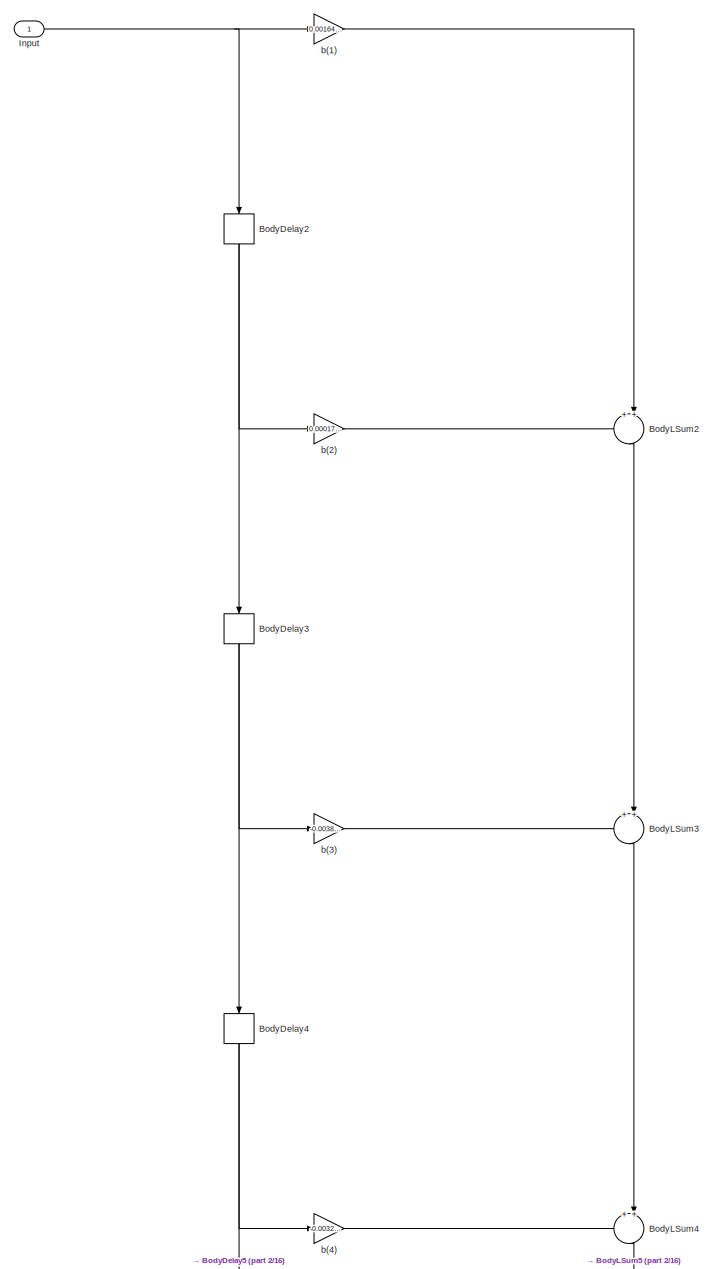
[diagram: Wind-MPPT/Torque reference 1/Differentiator Filter/Generated Filter Block - part 1/16, full width, top band]
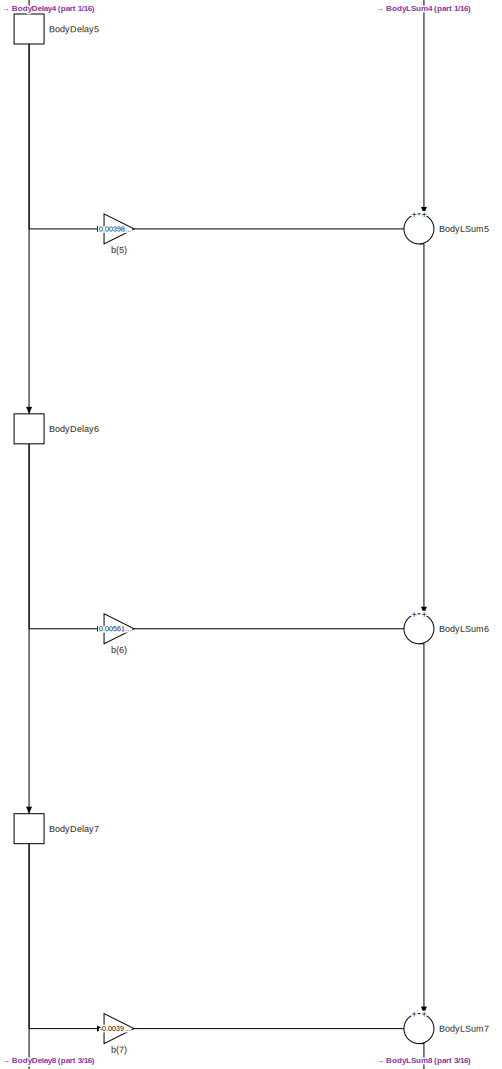
[diagram: Wind-MPPT/Torque reference 1/Differentiator Filter/Generated Filter Block - part 2/16, top center region]
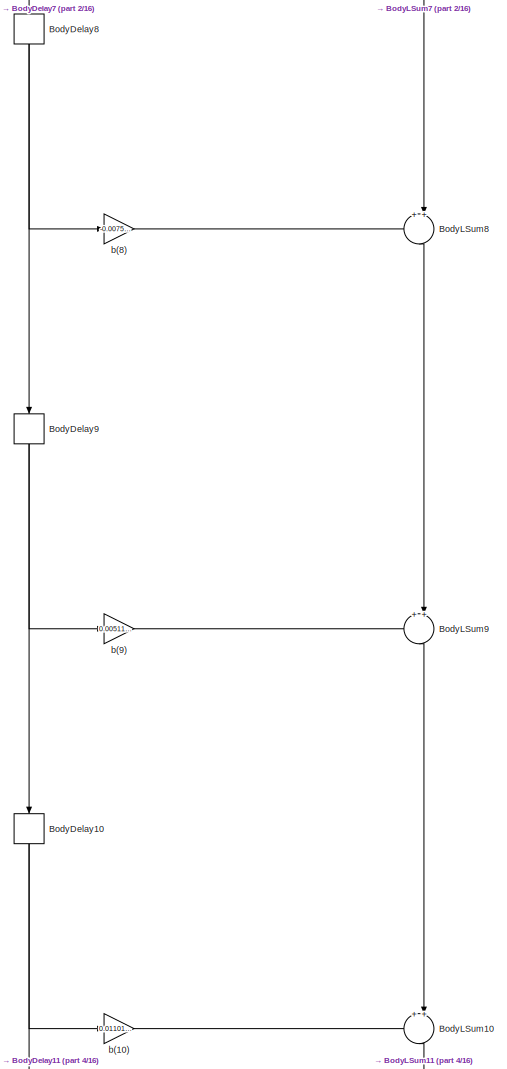
[diagram: Wind-MPPT/Torque reference 1/Differentiator Filter/Generated Filter Block - part 3/16, top center region]
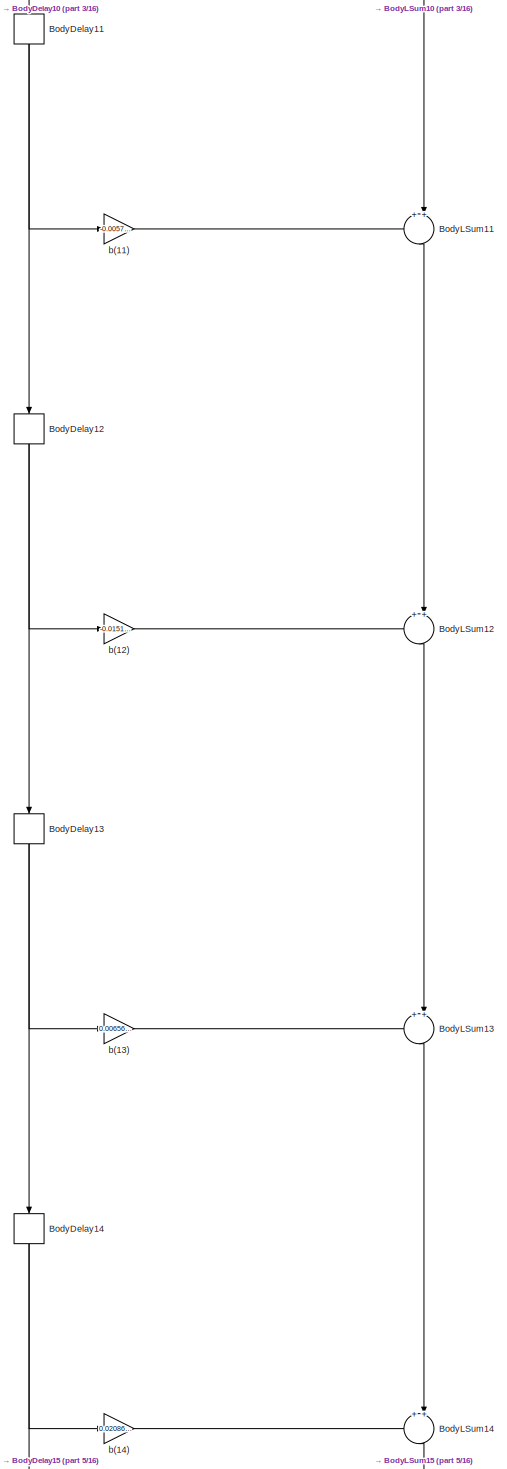
[diagram: Wind-MPPT/Torque reference 1/Differentiator Filter/Generated Filter Block - part 4/16, top center region]
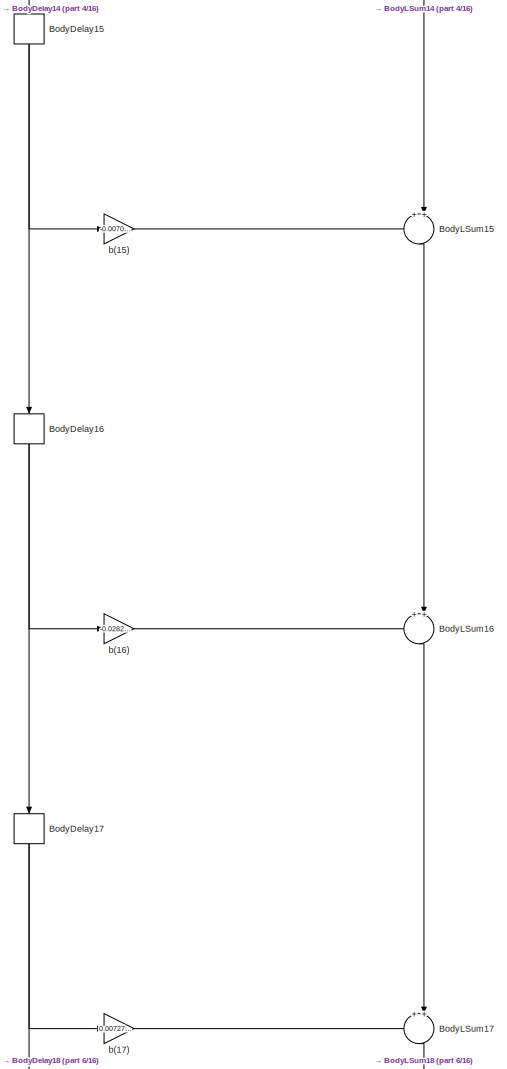
[diagram: Wind-MPPT/Torque reference 1/Differentiator Filter/Generated Filter Block - part 5/16, top center region]
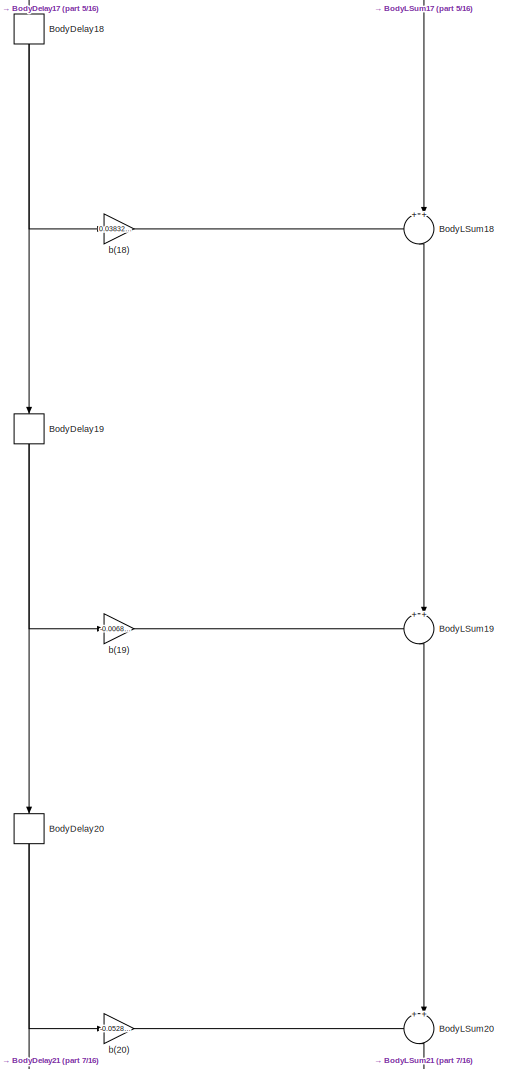
[diagram: Wind-MPPT/Torque reference 1/Differentiator Filter/Generated Filter Block - part 6/16, top center region]
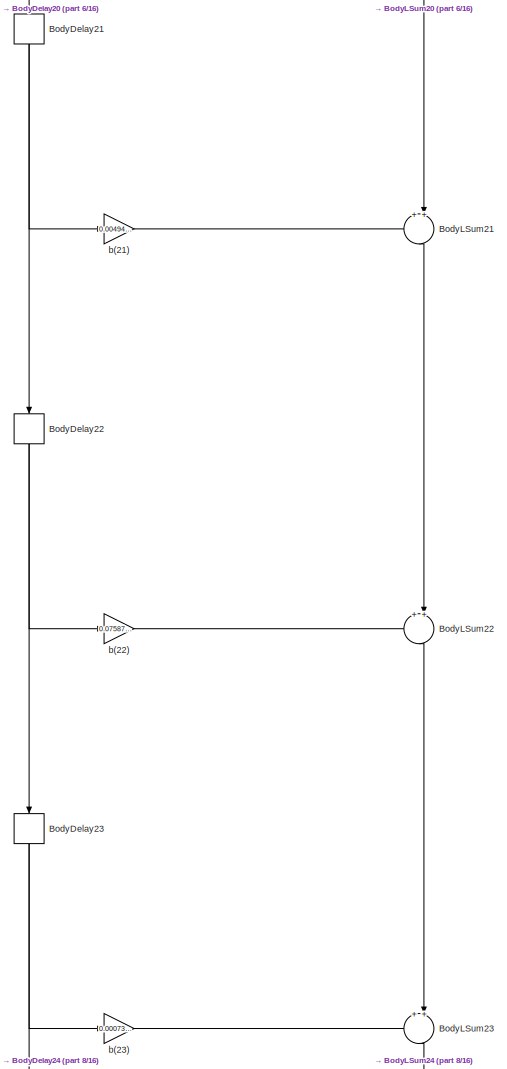
[diagram: Wind-MPPT/Torque reference 1/Differentiator Filter/Generated Filter Block - part 7/16, central region]
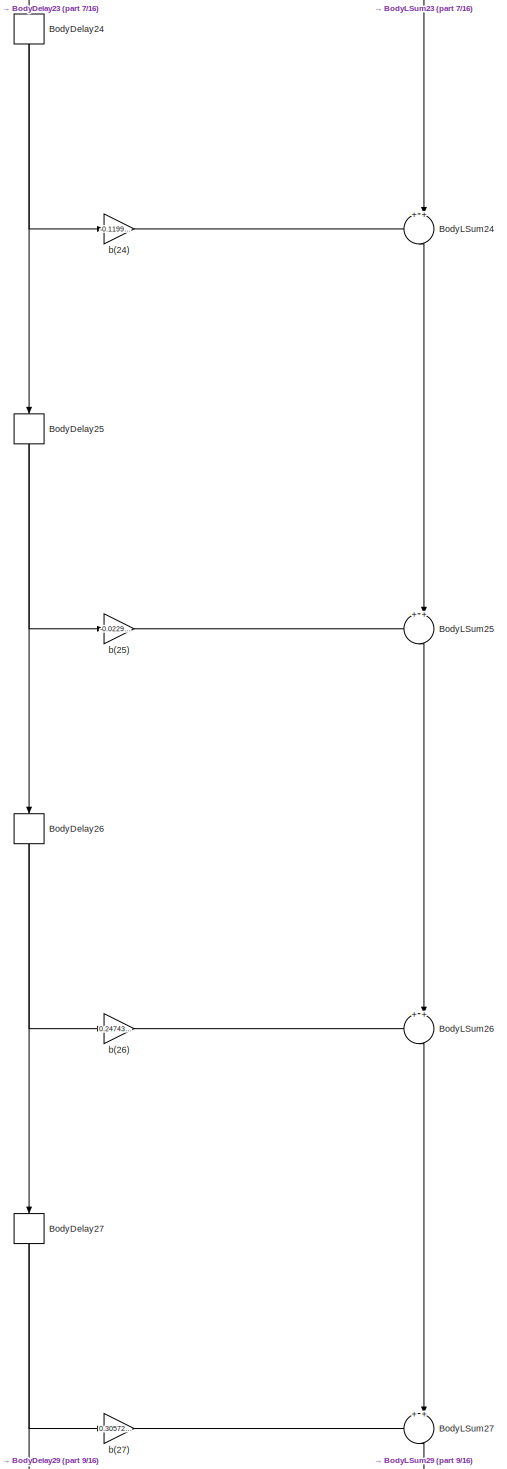
[diagram: Wind-MPPT/Torque reference 1/Differentiator Filter/Generated Filter Block - part 8/16, central region]
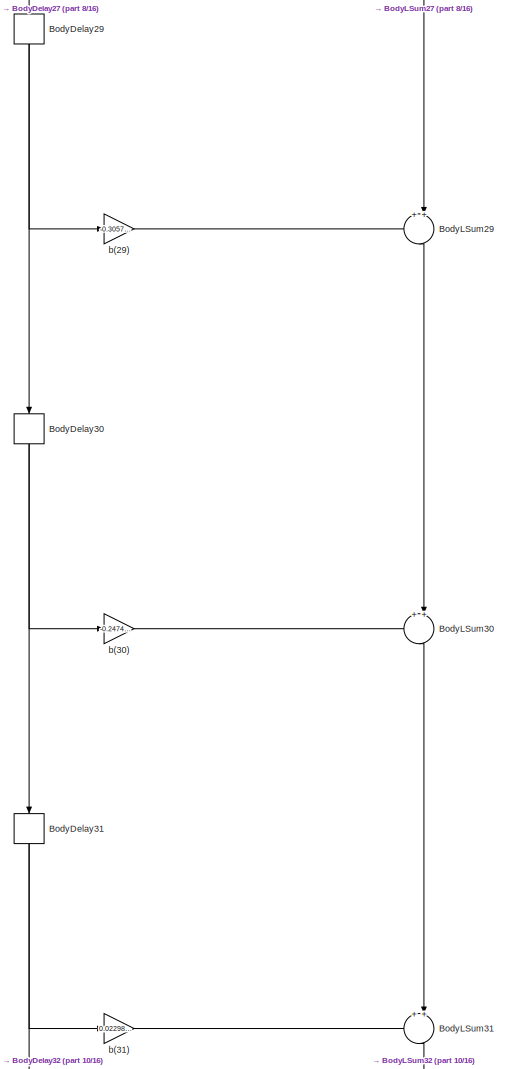
[diagram: Wind-MPPT/Torque reference 1/Differentiator Filter/Generated Filter Block - part 9/16, central region]
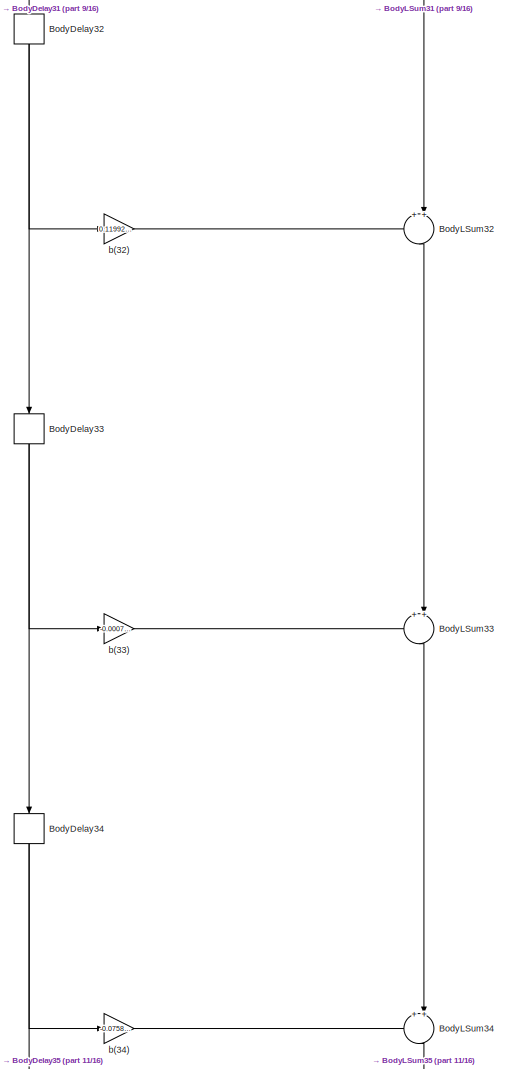
[diagram: Wind-MPPT/Torque reference 1/Differentiator Filter/Generated Filter Block - part 10/16, central region]
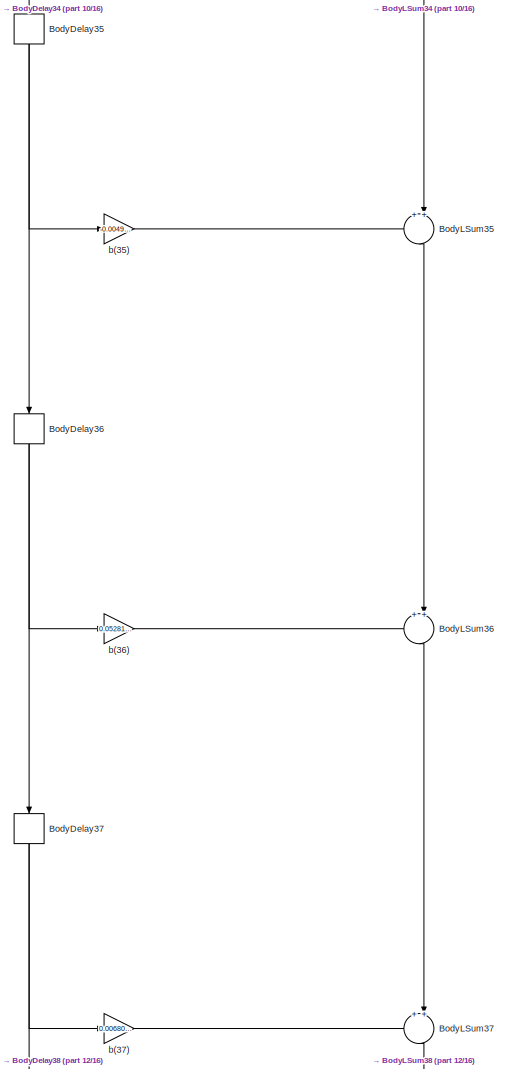
[diagram: Wind-MPPT/Torque reference 1/Differentiator Filter/Generated Filter Block - part 11/16, central region]
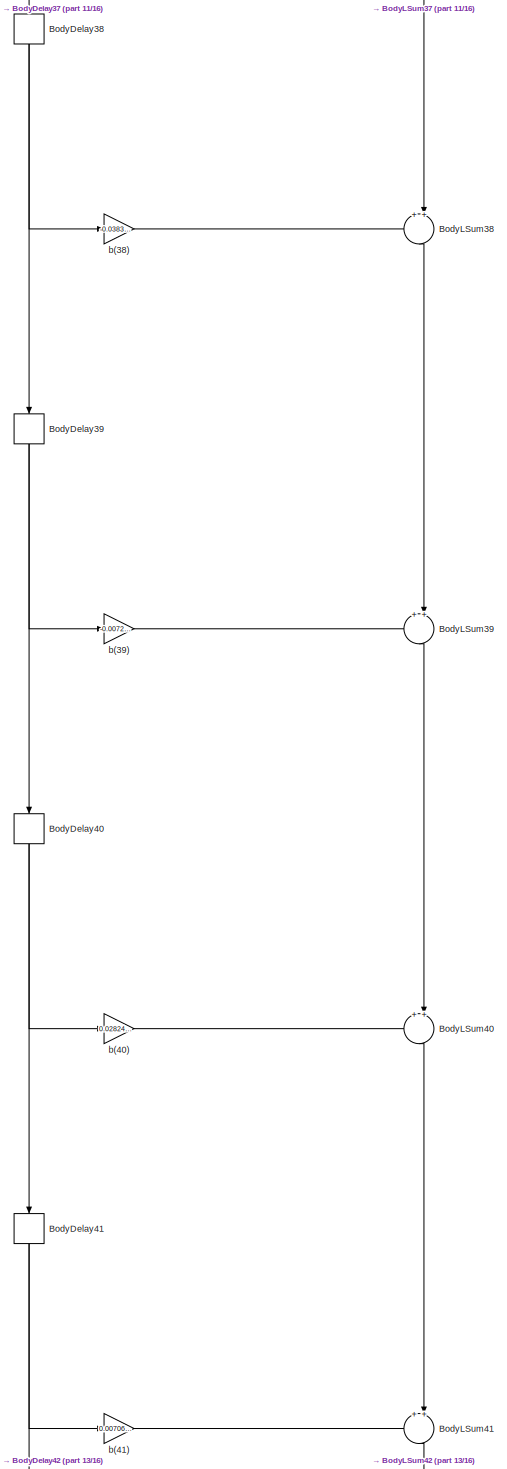
[diagram: Wind-MPPT/Torque reference 1/Differentiator Filter/Generated Filter Block - part 12/16, bottom center region]
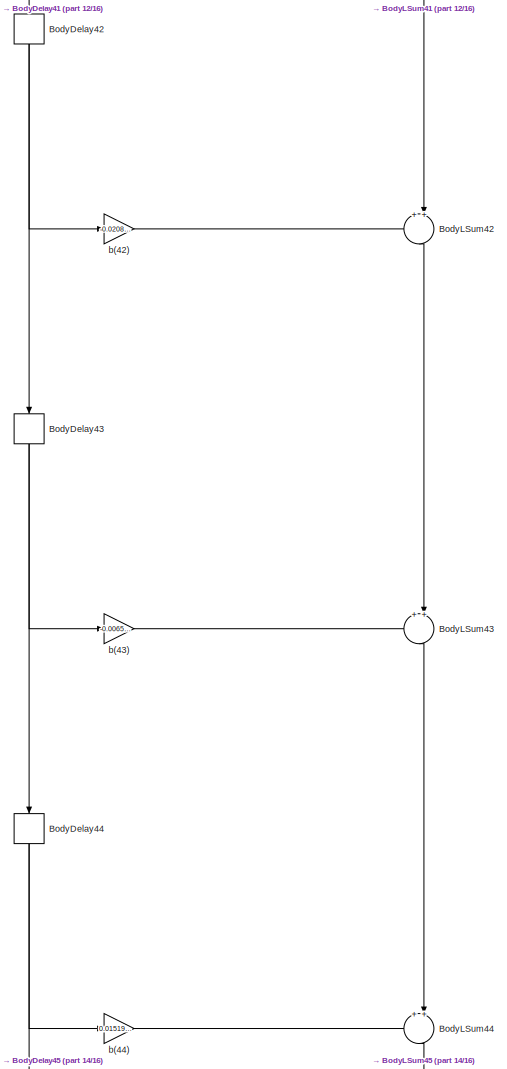
[diagram: Wind-MPPT/Torque reference 1/Differentiator Filter/Generated Filter Block - part 13/16, bottom center region]
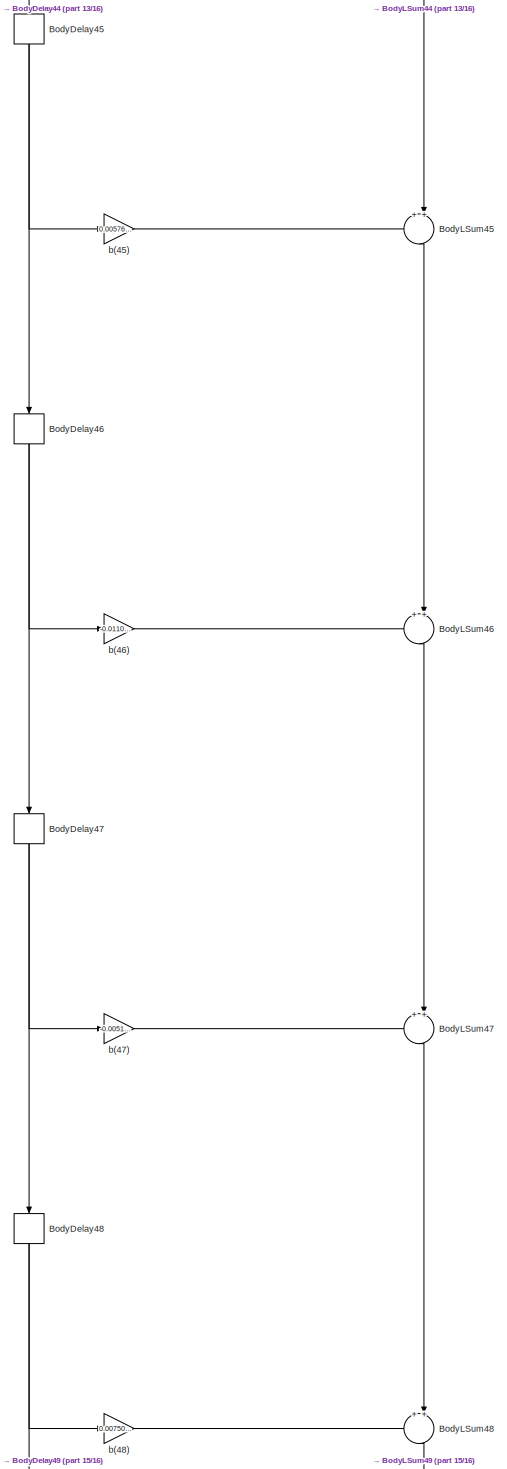
[diagram: Wind-MPPT/Torque reference 1/Differentiator Filter/Generated Filter Block - part 14/16, bottom center region]
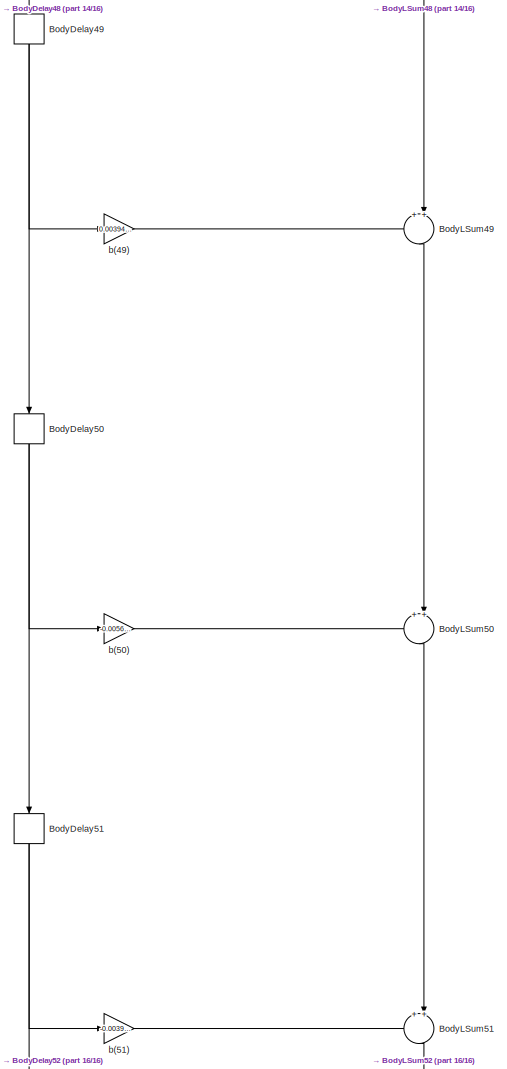
[diagram: Wind-MPPT/Torque reference 1/Differentiator Filter/Generated Filter Block - part 15/16, bottom center region]
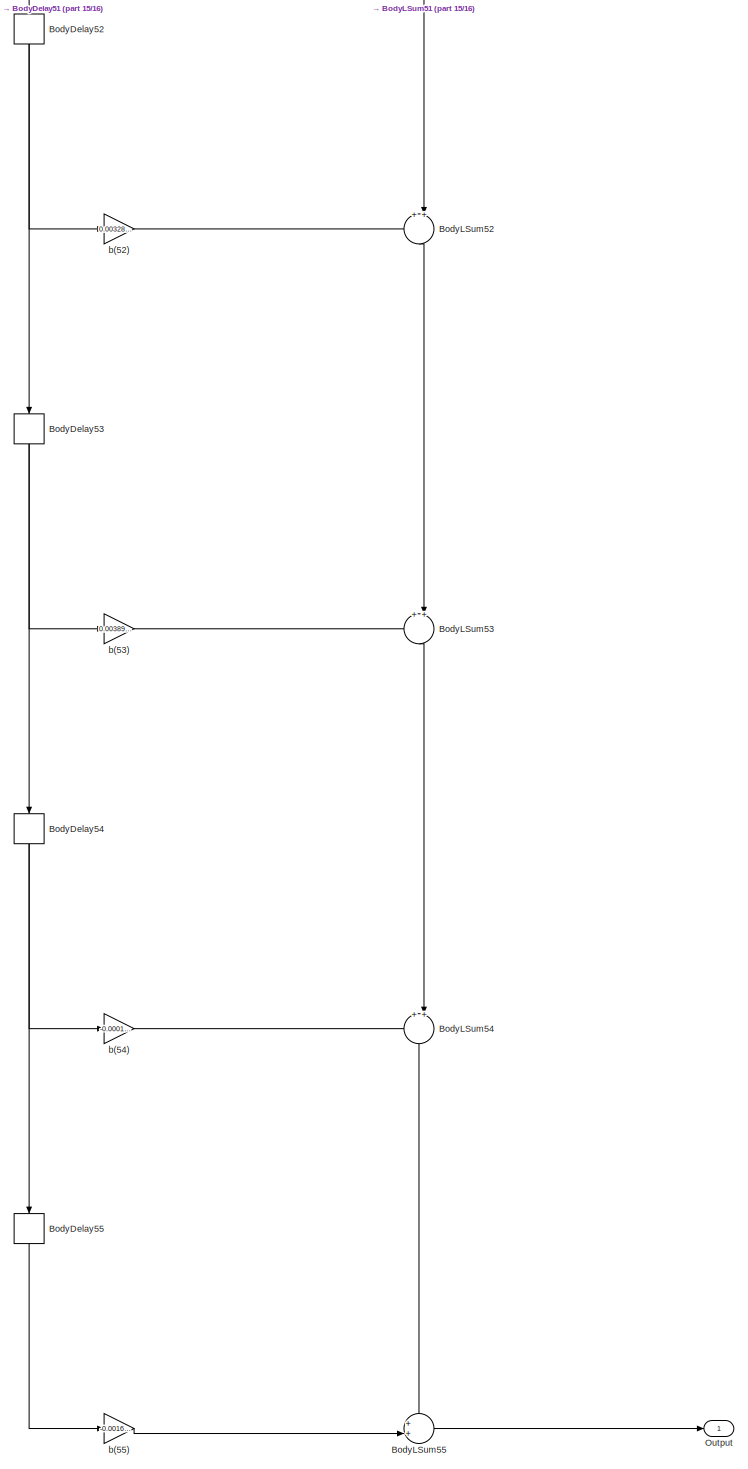
[diagram: Wind-MPPT/Torque reference 1/Differentiator Filter/Generated Filter Block - part 16/16, full width, bottom band]
BLOCK [SubSystem] Wind-MPPT/Torque reference 1/Differentiator Filter/Generated Filter Block
  ErrorFcn = dspFilterRealizedInBasicElemsAlgLoopErrFcnCallback
  Ports = [1, 1]
  RequestExecContextInheritance = off
  Tag = FilterWizardSubSystem
  UserDataPersistent = on
BLOCK [Delay] Wind-MPPT/Torque reference 1/Differentiator Filter/Generated Filter Block/BodyDelay10
  DelayLength = 1
  InitialCondition = 0
  InputPortMap = u0
  Ports = [1, 1]
BLOCK [Delay] Wind-MPPT/Torque reference 1/Differentiator Filter/Generated Filter Block/BodyDelay11
  DelayLength = 1
  InitialCondition = 0
  InputPortMap = u0
  Ports = [1, 1]
BLOCK [Delay] Wind-MPPT/Torque reference 1/Differentiator Filter/Generated Filter Block/BodyDelay12
  DelayLength = 1
  InitialCondition = 0
  InputPortMap = u0
  Ports = [1, 1]
BLOCK [Delay] Wind-MPPT/Torque reference 1/Differentiator Filter/Generated Filter Block/BodyDelay13
  DelayLength = 1
  InitialCondition = 0
  InputPortMap = u0
  Ports = [1, 1]
BLOCK [Delay] Wind-MPPT/Torque reference 1/Differentiator Filter/Generated Filter Block/BodyDelay14
  DelayLength = 1
  InitialCondition = 0
  InputPortMap = u0
  Ports = [1, 1]
BLOCK [Delay] Wind-MPPT/Torque reference 1/Differentiator Filter/Generated Filter Block/BodyDelay15
  DelayLength = 1
  InitialCondition = 0
  InputPortMap = u0
  Ports = [1, 1]
BLOCK [Delay] Wind-MPPT/Torque reference 1/Differentiator Filter/Generated Filter Block/BodyDelay16
  DelayLength = 1
  InitialCondition = 0
  InputPortMap = u0
  Ports = [1, 1]
BLOCK [Delay] Wind-MPPT/Torque reference 1/Differentiator Filter/Generated Filter Block/BodyDelay17
  DelayLength = 1
  InitialCondition = 0
  InputPortMap = u0
  Ports = [1, 1]
BLOCK [Delay] Wind-MPPT/Torque reference 1/Differentiator Filter/Generated Filter Block/BodyDelay18
  DelayLength = 1
  InitialCondition = 0
  InputPortMap = u0
  Ports = [1, 1]
BLOCK [Delay] Wind-MPPT/Torque reference 1/Differentiator Filter/Generated Filter Block/BodyDelay19
  DelayLength = 1
  InitialCondition = 0
  InputPortMap = u0
  Ports = [1, 1]
BLOCK [Delay] Wind-MPPT/Torque reference 1/Differentiator Filter/Generated Filter Block/BodyDelay2
  DelayLength = 1
  InitialCondition = 0
  InputPortMap = u0
  Ports = [1, 1]
BLOCK [Delay] Wind-MPPT/Torque reference 1/Differentiator Filter/Generated Filter Block/BodyDelay20
  DelayLength = 1
  InitialCondition = 0
  InputPortMap = u0
  Ports = [1, 1]
BLOCK [Delay] Wind-MPPT/Torque reference 1/Differentiator Filter/Generated Filter Block/BodyDelay21
  DelayLength = 1
  InitialCondition = 0
  InputPortMap = u0
  Ports = [1, 1]
BLOCK [Delay] Wind-MPPT/Torque reference 1/Differentiator Filter/Generated Filter Block/BodyDelay22
  DelayLength = 1
  InitialCondition = 0
  InputPortMap = u0
  Ports = [1, 1]
BLOCK [Delay] Wind-MPPT/Torque reference 1/Differentiator Filter/Generated Filter Block/BodyDelay23
  DelayLength = 1
  InitialCondition = 0
  InputPortMap = u0
  Ports = [1, 1]
BLOCK [Delay] Wind-MPPT/Torque reference 1/Differentiator Filter/Generated Filter Block/BodyDelay24
  DelayLength = 1
  InitialCondition = 0
  InputPortMap = u0
  Ports = [1, 1]
BLOCK [Delay] Wind-MPPT/Torque reference 1/Differentiator Filter/Generated Filter Block/BodyDelay25
  DelayLength = 1
  InitialCondition = 0
  InputPortMap = u0
  Ports = [1, 1]
BLOCK [Delay] Wind-MPPT/Torque reference 1/Differentiator Filter/Generated Filter Block/BodyDelay26
  DelayLength = 1
  InitialCondition = 0
  InputPortMap = u0
  Ports = [1, 1]
BLOCK [Delay] Wind-MPPT/Torque reference 1/Differentiator Filter/Generated Filter Block/BodyDelay27
  DelayLength = 1
  InitialCondition = 0
  InputPortMap = u0
  Ports = [1, 1]
BLOCK [Delay] Wind-MPPT/Torque reference 1/Differentiator Filter/Generated Filter Block/BodyDelay29
  InitialCondition = 0
  InputPortMap = u0
  Ports = [1, 1]
BLOCK [Delay] Wind-MPPT/Torque reference 1/Differentiator Filter/Generated Filter Block/BodyDelay3
  DelayLength = 1
  InitialCondition = 0
  InputPortMap = u0
  Ports = [1, 1]
BLOCK [Delay] Wind-MPPT/Torque reference 1/Differentiator Filter/Generated Filter Block/BodyDelay30
  DelayLength = 1
  InitialCondition = 0
  InputPortMap = u0
  Ports = [1, 1]
BLOCK [Delay] Wind-MPPT/Torque reference 1/Differentiator Filter/Generated Filter Block/BodyDelay31
  DelayLength = 1
  InitialCondition = 0
  InputPortMap = u0
  Ports = [1, 1]
BLOCK [Delay] Wind-MPPT/Torque reference 1/Differentiator Filter/Generated Filter Block/BodyDelay32
  DelayLength = 1
  InitialCondition = 0
  InputPortMap = u0
  Ports = [1, 1]
BLOCK [Delay] Wind-MPPT/Torque reference 1/Differentiator Filter/Generated Filter Block/BodyDelay33
  DelayLength = 1
  InitialCondition = 0
  InputPortMap = u0
  Ports = [1, 1]
BLOCK [Delay] Wind-MPPT/Torque reference 1/Differentiator Filter/Generated Filter Block/BodyDelay34
  DelayLength = 1
  InitialCondition = 0
  InputPortMap = u0
  Ports = [1, 1]
BLOCK [Delay] Wind-MPPT/Torque reference 1/Differentiator Filter/Generated Filter Block/BodyDelay35
  DelayLength = 1
  InitialCondition = 0
  InputPortMap = u0
  Ports = [1, 1]
BLOCK [Delay] Wind-MPPT/Torque reference 1/Differentiator Filter/Generated Filter Block/BodyDelay36
  DelayLength = 1
  InitialCondition = 0
  InputPortMap = u0
  Ports = [1, 1]
BLOCK [Delay] Wind-MPPT/Torque reference 1/Differentiator Filter/Generated Filter Block/BodyDelay37
  DelayLength = 1
  InitialCondition = 0
  InputPortMap = u0
  Ports = [1, 1]
BLOCK [Delay] Wind-MPPT/Torque reference 1/Differentiator Filter/Generated Filter Block/BodyDelay38
  DelayLength = 1
  InitialCondition = 0
  InputPortMap = u0
  Ports = [1, 1]
BLOCK [Delay] Wind-MPPT/Torque reference 1/Differentiator Filter/Generated Filter Block/BodyDelay39
  DelayLength = 1
  InitialCondition = 0
  InputPortMap = u0
  Ports = [1, 1]
BLOCK [Delay] Wind-MPPT/Torque reference 1/Differentiator Filter/Generated Filter Block/BodyDelay4
  DelayLength = 1
  InitialCondition = 0
  InputPortMap = u0
  Ports = [1, 1]
BLOCK [Delay] Wind-MPPT/Torque reference 1/Differentiator Filter/Generated Filter Block/BodyDelay40
  DelayLength = 1
  InitialCondition = 0
  InputPortMap = u0
  Ports = [1, 1]
BLOCK [Delay] Wind-MPPT/Torque reference 1/Differentiator Filter/Generated Filter Block/BodyDelay41
  DelayLength = 1
  InitialCondition = 0
  InputPortMap = u0
  Ports = [1, 1]
BLOCK [Delay] Wind-MPPT/Torque reference 1/Differentiator Filter/Generated Filter Block/BodyDelay42
  DelayLength = 1
  InitialCondition = 0
  InputPortMap = u0
  Ports = [1, 1]
BLOCK [Delay] Wind-MPPT/Torque reference 1/Differentiator Filter/Generated Filter Block/BodyDelay43
  DelayLength = 1
  InitialCondition = 0
  InputPortMap = u0
  Ports = [1, 1]
BLOCK [Delay] Wind-MPPT/Torque reference 1/Differentiator Filter/Generated Filter Block/BodyDelay44
  DelayLength = 1
  InitialCondition = 0
  InputPortMap = u0
  Ports = [1, 1]
BLOCK [Delay] Wind-MPPT/Torque reference 1/Differentiator Filter/Generated Filter Block/BodyDelay45
  DelayLength = 1
  InitialCondition = 0
  InputPortMap = u0
  Ports = [1, 1]
BLOCK [Delay] Wind-MPPT/Torque reference 1/Differentiator Filter/Generated Filter Block/BodyDelay46
  DelayLength = 1
  InitialCondition = 0
  InputPortMap = u0
  Ports = [1, 1]
BLOCK [Delay] Wind-MPPT/Torque reference 1/Differentiator Filter/Generated Filter Block/BodyDelay47
  DelayLength = 1
  InitialCondition = 0
  InputPortMap = u0
  Ports = [1, 1]
BLOCK [Delay] Wind-MPPT/Torque reference 1/Differentiator Filter/Generated Filter Block/BodyDelay48
  DelayLength = 1
  InitialCondition = 0
  InputPortMap = u0
  Ports = [1, 1]
BLOCK [Delay] Wind-MPPT/Torque reference 1/Differentiator Filter/Generated Filter Block/BodyDelay49
  DelayLength = 1
  InitialCondition = 0
  InputPortMap = u0
  Ports = [1, 1]
BLOCK [Delay] Wind-MPPT/Torque reference 1/Differentiator Filter/Generated Filter Block/BodyDelay5
  DelayLength = 1
  InitialCondition = 0
  InputPortMap = u0
  Ports = [1, 1]
BLOCK [Delay] Wind-MPPT/Torque reference 1/Differentiator Filter/Generated Filter Block/BodyDelay50
  DelayLength = 1
  InitialCondition = 0
  InputPortMap = u0
  Ports = [1, 1]
BLOCK [Delay] Wind-MPPT/Torque reference 1/Differentiator Filter/Generated Filter Block/BodyDelay51
  DelayLength = 1
  InitialCondition = 0
  InputPortMap = u0
  Ports = [1, 1]
BLOCK [Delay] Wind-MPPT/Torque reference 1/Differentiator Filter/Generated Filter Block/BodyDelay52
  DelayLength = 1
  InitialCondition = 0
  InputPortMap = u0
  Ports = [1, 1]
BLOCK [Delay] Wind-MPPT/Torque reference 1/Differentiator Filter/Generated Filter Block/BodyDelay53
  DelayLength = 1
  InitialCondition = 0
  InputPortMap = u0
  Ports = [1, 1]
BLOCK [Delay] Wind-MPPT/Torque reference 1/Differentiator Filter/Generated Filter Block/BodyDelay54
  DelayLength = 1
  InitialCondition = 0
  InputPortMap = u0
  Ports = [1, 1]
BLOCK [Delay] Wind-MPPT/Torque reference 1/Differentiator Filter/Generated Filter Block/BodyDelay55
  DelayLength = 1
  InitialCondition = 0
  InputPortMap = u0
  Ports = [1, 1]
BLOCK [Delay] Wind-MPPT/Torque reference 1/Differentiator Filter/Generated Filter Block/BodyDelay6
  DelayLength = 1
  InitialCondition = 0
  InputPortMap = u0
  Ports = [1, 1]
BLOCK [Delay] Wind-MPPT/Torque reference 1/Differentiator Filter/Generated Filter Block/BodyDelay7
  DelayLength = 1
  InitialCondition = 0
  InputPortMap = u0
  Ports = [1, 1]
BLOCK [Delay] Wind-MPPT/Torque reference 1/Differentiator Filter/Generated Filter Block/BodyDelay8
  DelayLength = 1
  InitialCondition = 0
  InputPortMap = u0
  Ports = [1, 1]
BLOCK [Delay] Wind-MPPT/Torque reference 1/Differentiator Filter/Generated Filter Block/BodyDelay9
  DelayLength = 1
  InitialCondition = 0
  InputPortMap = u0
  Ports = [1, 1]
BLOCK [Sum] Wind-MPPT/Torque reference 1/Differentiator Filter/Generated Filter Block/BodyLSum10
  IconShape = round
  Inputs = ++|
  Ports = [2, 1]
BLOCK [Sum] Wind-MPPT/Torque reference 1/Differentiator Filter/Generated Filter Block/BodyLSum11
  IconShape = round
  Inputs = ++|
  Ports = [2, 1]
BLOCK [Sum] Wind-MPPT/Torque reference 1/Differentiator Filter/Generated Filter Block/BodyLSum12
  IconShape = round
  Inputs = ++|
  Ports = [2, 1]
BLOCK [Sum] Wind-MPPT/Torque reference 1/Differentiator Filter/Generated Filter Block/BodyLSum13
  IconShape = round
  Inputs = ++|
  Ports = [2, 1]
BLOCK [Sum] Wind-MPPT/Torque reference 1/Differentiator Filter/Generated Filter Block/BodyLSum14
  IconShape = round
  Inputs = ++|
  Ports = [2, 1]
BLOCK [Sum] Wind-MPPT/Torque reference 1/Differentiator Filter/Generated Filter Block/BodyLSum15
  IconShape = round
  Inputs = ++|
  Ports = [2, 1]
BLOCK [Sum] Wind-MPPT/Torque reference 1/Differentiator Filter/Generated Filter Block/BodyLSum16
  IconShape = round
  Inputs = ++|
  Ports = [2, 1]
BLOCK [Sum] Wind-MPPT/Torque reference 1/Differentiator Filter/Generated Filter Block/BodyLSum17
  IconShape = round
  Inputs = ++|
  Ports = [2, 1]
BLOCK [Sum] Wind-MPPT/Torque reference 1/Differentiator Filter/Generated Filter Block/BodyLSum18
  IconShape = round
  Inputs = ++|
  Ports = [2, 1]
BLOCK [Sum] Wind-MPPT/Torque reference 1/Differentiator Filter/Generated Filter Block/BodyLSum19
  IconShape = round
  Inputs = ++|
  Ports = [2, 1]
BLOCK [Sum] Wind-MPPT/Torque reference 1/Differentiator Filter/Generated Filter Block/BodyLSum2
  IconShape = round
  Inputs = ++|
  Ports = [2, 1]
BLOCK [Sum] Wind-MPPT/Torque reference 1/Differentiator Filter/Generated Filter Block/BodyLSum20
  IconShape = round
  Inputs = ++|
  Ports = [2, 1]
BLOCK [Sum] Wind-MPPT/Torque reference 1/Differentiator Filter/Generated Filter Block/BodyLSum21
  IconShape = round
  Inputs = ++|
  Ports = [2, 1]
BLOCK [Sum] Wind-MPPT/Torque reference 1/Differentiator Filter/Generated Filter Block/BodyLSum22
  IconShape = round
  Inputs = ++|
  Ports = [2, 1]
BLOCK [Sum] Wind-MPPT/Torque reference 1/Differentiator Filter/Generated Filter Block/BodyLSum23
  IconShape = round
  Inputs = ++|
  Ports = [2, 1]
BLOCK [Sum] Wind-MPPT/Torque reference 1/Differentiator Filter/Generated Filter Block/BodyLSum24
  IconShape = round
  Inputs = ++|
  Ports = [2, 1]
BLOCK [Sum] Wind-MPPT/Torque reference 1/Differentiator Filter/Generated Filter Block/BodyLSum25
  IconShape = round
  Inputs = ++|
  Ports = [2, 1]
BLOCK [Sum] Wind-MPPT/Torque reference 1/Differentiator Filter/Generated Filter Block/BodyLSum26
  IconShape = round
  Inputs = ++|
  Ports = [2, 1]
BLOCK [Sum] Wind-MPPT/Torque reference 1/Differentiator Filter/Generated Filter Block/BodyLSum27
  IconShape = round
  Inputs = ++|
  Ports = [2, 1]
BLOCK [Sum] Wind-MPPT/Torque reference 1/Differentiator Filter/Generated Filter Block/BodyLSum29
  IconShape = round
  Inputs = ++|
  Ports = [2, 1]
BLOCK [Sum] Wind-MPPT/Torque reference 1/Differentiator Filter/Generated Filter Block/BodyLSum3
  IconShape = round
  Inputs = ++|
  Ports = [2, 1]
BLOCK [Sum] Wind-MPPT/Torque reference 1/Differentiator Filter/Generated Filter Block/BodyLSum30
  IconShape = round
  Inputs = ++|
  Ports = [2, 1]
BLOCK [Sum] Wind-MPPT/Torque reference 1/Differentiator Filter/Generated Filter Block/BodyLSum31
  IconShape = round
  Inputs = ++|
  Ports = [2, 1]
BLOCK [Sum] Wind-MPPT/Torque reference 1/Differentiator Filter/Generated Filter Block/BodyLSum32
  IconShape = round
  Inputs = ++|
  Ports = [2, 1]
BLOCK [Sum] Wind-MPPT/Torque reference 1/Differentiator Filter/Generated Filter Block/BodyLSum33
  IconShape = round
  Inputs = ++|
  Ports = [2, 1]
BLOCK [Sum] Wind-MPPT/Torque reference 1/Differentiator Filter/Generated Filter Block/BodyLSum34
  IconShape = round
  Inputs = ++|
  Ports = [2, 1]
BLOCK [Sum] Wind-MPPT/Torque reference 1/Differentiator Filter/Generated Filter Block/BodyLSum35
  IconShape = round
  Inputs = ++|
  Ports = [2, 1]
BLOCK [Sum] Wind-MPPT/Torque reference 1/Differentiator Filter/Generated Filter Block/BodyLSum36
  IconShape = round
  Inputs = ++|
  Ports = [2, 1]
BLOCK [Sum] Wind-MPPT/Torque reference 1/Differentiator Filter/Generated Filter Block/BodyLSum37
  IconShape = round
  Inputs = ++|
  Ports = [2, 1]
BLOCK [Sum] Wind-MPPT/Torque reference 1/Differentiator Filter/Generated Filter Block/BodyLSum38
  IconShape = round
  Inputs = ++|
  Ports = [2, 1]
BLOCK [Sum] Wind-MPPT/Torque reference 1/Differentiator Filter/Generated Filter Block/BodyLSum39
  IconShape = round
  Inputs = ++|
  Ports = [2, 1]
BLOCK [Sum] Wind-MPPT/Torque reference 1/Differentiator Filter/Generated Filter Block/BodyLSum4
  IconShape = round
  Inputs = ++|
  Ports = [2, 1]
BLOCK [Sum] Wind-MPPT/Torque reference 1/Differentiator Filter/Generated Filter Block/BodyLSum40
  IconShape = round
  Inputs = ++|
  Ports = [2, 1]
BLOCK [Sum] Wind-MPPT/Torque reference 1/Differentiator Filter/Generated Filter Block/BodyLSum41
  IconShape = round
  Inputs = ++|
  Ports = [2, 1]
BLOCK [Sum] Wind-MPPT/Torque reference 1/Differentiator Filter/Generated Filter Block/BodyLSum42
  IconShape = round
  Inputs = ++|
  Ports = [2, 1]
BLOCK [Sum] Wind-MPPT/Torque reference 1/Differentiator Filter/Generated Filter Block/BodyLSum43
  IconShape = round
  Inputs = ++|
  Ports = [2, 1]
BLOCK [Sum] Wind-MPPT/Torque reference 1/Differentiator Filter/Generated Filter Block/BodyLSum44
  IconShape = round
  Inputs = ++|
  Ports = [2, 1]
BLOCK [Sum] Wind-MPPT/Torque reference 1/Differentiator Filter/Generated Filter Block/BodyLSum45
  IconShape = round
  Inputs = ++|
  Ports = [2, 1]
BLOCK [Sum] Wind-MPPT/Torque reference 1/Differentiator Filter/Generated Filter Block/BodyLSum46
  IconShape = round
  Inputs = ++|
  Ports = [2, 1]
BLOCK [Sum] Wind-MPPT/Torque reference 1/Differentiator Filter/Generated Filter Block/BodyLSum47
  IconShape = round
  Inputs = ++|
  Ports = [2, 1]
BLOCK [Sum] Wind-MPPT/Torque reference 1/Differentiator Filter/Generated Filter Block/BodyLSum48
  IconShape = round
  Inputs = ++|
  Ports = [2, 1]
BLOCK [Sum] Wind-MPPT/Torque reference 1/Differentiator Filter/Generated Filter Block/BodyLSum49
  IconShape = round
  Inputs = ++|
  Ports = [2, 1]
BLOCK [Sum] Wind-MPPT/Torque reference 1/Differentiator Filter/Generated Filter Block/BodyLSum5
  IconShape = round
  Inputs = ++|
  Ports = [2, 1]
BLOCK [Sum] Wind-MPPT/Torque reference 1/Differentiator Filter/Generated Filter Block/BodyLSum50
  IconShape = round
  Inputs = ++|
  Ports = [2, 1]
BLOCK [Sum] Wind-MPPT/Torque reference 1/Differentiator Filter/Generated Filter Block/BodyLSum51
  IconShape = round
  Inputs = ++|
  Ports = [2, 1]
BLOCK [Sum] Wind-MPPT/Torque reference 1/Differentiator Filter/Generated Filter Block/BodyLSum52
  IconShape = round
  Inputs = ++|
  Ports = [2, 1]
BLOCK [Sum] Wind-MPPT/Torque reference 1/Differentiator Filter/Generated Filter Block/BodyLSum53
  IconShape = round
  Inputs = ++|
  Ports = [2, 1]
BLOCK [Sum] Wind-MPPT/Torque reference 1/Differentiator Filter/Generated Filter Block/BodyLSum54
  IconShape = round
  Inputs = ++|
  Ports = [2, 1]
BLOCK [Sum] Wind-MPPT/Torque reference 1/Differentiator Filter/Generated Filter Block/BodyLSum55
  IconShape = round
  Inputs = ++|
  Ports = [2, 1]
BLOCK [Sum] Wind-MPPT/Torque reference 1/Differentiator Filter/Generated Filter Block/BodyLSum6
  IconShape = round
  Inputs = ++|
  Ports = [2, 1]
BLOCK [Sum] Wind-MPPT/Torque reference 1/Differentiator Filter/Generated Filter Block/BodyLSum7
  IconShape = round
  Inputs = ++|
  Ports = [2, 1]
BLOCK [Sum] Wind-MPPT/Torque reference 1/Differentiator Filter/Generated Filter Block/BodyLSum8
  IconShape = round
  Inputs = ++|
  Ports = [2, 1]
BLOCK [Sum] Wind-MPPT/Torque reference 1/Differentiator Filter/Generated Filter Block/BodyLSum9
  IconShape = round
  Inputs = ++|
  Ports = [2, 1]
BLOCK [Inport] Wind-MPPT/Torque reference 1/Differentiator Filter/Generated Filter Block/Input
  IconDisplay = Port number
BLOCK [Outport] Wind-MPPT/Torque reference 1/Differentiator Filter/Generated Filter Block/Output
  IconDisplay = Port number
BLOCK [Gain] Wind-MPPT/Torque reference 1/Differentiator Filter/Generated Filter Block/b(1)
  Gain = 0.0016485839041717864
BLOCK [Gain] Wind-MPPT/Torque reference 1/Differentiator Filter/Generated Filter Block/b(10)
  Gain = 0.011014879869749052
BLOCK [Gain] Wind-MPPT/Torque reference 1/Differentiator Filter/Generated Filter Block/b(11)
  Gain = -0.005763535930488302
BLOCK [Gain] Wind-MPPT/Torque reference 1/Differentiator Filter/Generated Filter Block/b(12)
  Gain = -0.0151981830555213
BLOCK [Gain] Wind-MPPT/Torque reference 1/Differentiator Filter/Generated Filter Block/b(13)
  Gain = 0.0065686388642668125
BLOCK [Gain] Wind-MPPT/Torque reference 1/Differentiator Filter/Generated Filter Block/b(14)
  Gain = 0.020867949959447688
BLOCK [Gain] Wind-MPPT/Torque reference 1/Differentiator Filter/Generated Filter Block/b(15)
  Gain = -0.0070602627960907726
BLOCK [Gain] Wind-MPPT/Torque reference 1/Differentiator Filter/Generated Filter Block/b(16)
  Gain = -0.028242635943863115
BLOCK [Gain] Wind-MPPT/Torque reference 1/Differentiator Filter/Generated Filter Block/b(17)
  Gain = 0.0072704924773104732
BLOCK [Gain] Wind-MPPT/Torque reference 1/Differentiator Filter/Generated Filter Block/b(18)
  Gain = 0.038329320446368831
BLOCK [Gain] Wind-MPPT/Torque reference 1/Differentiator Filter/Generated Filter Block/b(19)
  Gain = -0.0068002265270407491
BLOCK [Gain] Wind-MPPT/Torque reference 1/Differentiator Filter/Generated Filter Block/b(2)
  Gain = 0.00017042943589110223
BLOCK [Gain] Wind-MPPT/Torque reference 1/Differentiator Filter/Generated Filter Block/b(20)
  Gain = -0.052819993002155965
BLOCK [Gain] Wind-MPPT/Torque reference 1/Differentiator Filter/Generated Filter Block/b(21)
  Gain = 0.0049482783503700268
BLOCK [Gain] Wind-MPPT/Torque reference 1/Differentiator Filter/Generated Filter Block/b(22)
  Gain = 0.075871674298216826
BLOCK [Gain] Wind-MPPT/Torque reference 1/Differentiator Filter/Generated Filter Block/b(23)
  Gain = 0.00073312852370662537
BLOCK [Gain] Wind-MPPT/Torque reference 1/Differentiator Filter/Generated Filter Block/b(24)
  Gain = -0.11992357305817197
BLOCK [Gain] Wind-MPPT/Torque reference 1/Differentiator Filter/Generated Filter Block/b(25)
  Gain = -0.022982436984387535
BLOCK [Gain] Wind-MPPT/Torque reference 1/Differentiator Filter/Generated Filter Block/b(26)
  Gain = 0.24743192698089667
BLOCK [Gain] Wind-MPPT/Torque reference 1/Differentiator Filter/Generated Filter Block/b(27)
  Gain = 0.30572927022108953
BLOCK [Gain] Wind-MPPT/Torque reference 1/Differentiator Filter/Generated Filter Block/b(29)
  Gain = -0.30572927022108953
BLOCK [Gain] Wind-MPPT/Torque reference 1/Differentiator Filter/Generated Filter Block/b(3)
  Gain = -0.0038948238157296179
BLOCK [Gain] Wind-MPPT/Torque reference 1/Differentiator Filter/Generated Filter Block/b(30)
  Gain = -0.24743192698089667
BLOCK [Gain] Wind-MPPT/Torque reference 1/Differentiator Filter/Generated Filter Block/b(31)
  Gain = 0.022982436984387535
BLOCK [Gain] Wind-MPPT/Torque reference 1/Differentiator Filter/Generated Filter Block/b(32)
  Gain = 0.11992357305817197
BLOCK [Gain] Wind-MPPT/Torque reference 1/Differentiator Filter/Generated Filter Block/b(33)
  Gain = -0.00073312852370662537
BLOCK [Gain] Wind-MPPT/Torque reference 1/Differentiator Filter/Generated Filter Block/b(34)
  Gain = -0.075871674298216826
BLOCK [Gain] Wind-MPPT/Torque reference 1/Differentiator Filter/Generated Filter Block/b(35)
  Gain = -0.0049482783503700268
BLOCK [Gain] Wind-MPPT/Torque reference 1/Differentiator Filter/Generated Filter Block/b(36)
  Gain = 0.052819993002155965
BLOCK [Gain] Wind-MPPT/Torque reference 1/Differentiator Filter/Generated Filter Block/b(37)
  Gain = 0.0068002265270407491
BLOCK [Gain] Wind-MPPT/Torque reference 1/Differentiator Filter/Generated Filter Block/b(38)
  Gain = -0.038329320446368831
BLOCK [Gain] Wind-MPPT/Torque reference 1/Differentiator Filter/Generated Filter Block/b(39)
  Gain = -0.0072704924773104732
BLOCK [Gain] Wind-MPPT/Torque reference 1/Differentiator Filter/Generated Filter Block/b(4)
  Gain = -0.0032830177673830877
BLOCK [Gain] Wind-MPPT/Torque reference 1/Differentiator Filter/Generated Filter Block/b(40)
  Gain = 0.028242635943863115
BLOCK [Gain] Wind-MPPT/Torque reference 1/Differentiator Filter/Generated Filter Block/b(41)
  Gain = 0.0070602627960907726
BLOCK [Gain] Wind-MPPT/Torque reference 1/Differentiator Filter/Generated Filter Block/b(42)
  Gain = -0.020867949959447688
BLOCK [Gain] Wind-MPPT/Torque reference 1/Differentiator Filter/Generated Filter Block/b(43)
  Gain = -0.0065686388642668125
BLOCK [Gain] Wind-MPPT/Torque reference 1/Differentiator Filter/Generated Filter Block/b(44)
  Gain = 0.0151981830555213
BLOCK [Gain] Wind-MPPT/Torque reference 1/Differentiator Filter/Generated Filter Block/b(45)
  Gain = 0.005763535930488302
BLOCK [Gain] Wind-MPPT/Torque reference 1/Differentiator Filter/Generated Filter Block/b(46)
  Gain = -0.011014879869749052
BLOCK [Gain] Wind-MPPT/Torque reference 1/Differentiator Filter/Generated Filter Block/b(47)
  Gain = -0.0051172092513206528
BLOCK [Gain] Wind-MPPT/Torque reference 1/Differentiator Filter/Generated Filter Block/b(48)
  Gain = 0.0075034408734532838
BLOCK [Gain] Wind-MPPT/Torque reference 1/Differentiator Filter/Generated Filter Block/b(49)
  Gain = 0.0039498824016694816
BLOCK [Gain] Wind-MPPT/Torque reference 1/Differentiator Filter/Generated Filter Block/b(5)
  Gain = 0.0039854203993547575
BLOCK [Gain] Wind-MPPT/Torque reference 1/Differentiator Filter/Generated Filter Block/b(50)
  Gain = -0.0056185919166622817
BLOCK [Gain] Wind-MPPT/Torque reference 1/Differentiator Filter/Generated Filter Block/b(51)
  Gain = -0.0039854203993547575
BLOCK [Gain] Wind-MPPT/Torque reference 1/Differentiator Filter/Generated Filter Block/b(52)
  Gain = 0.0032830177673830877
BLOCK [Gain] Wind-MPPT/Torque reference 1/Differentiator Filter/Generated Filter Block/b(53)
  Gain = 0.0038948238157296179
BLOCK [Gain] Wind-MPPT/Torque reference 1/Differentiator Filter/Generated Filter Block/b(54)
  Gain = -0.00017042943589110223
BLOCK [Gain] Wind-MPPT/Torque reference 1/Differentiator Filter/Generated Filter Block/b(55)
  Gain = -0.0016485839041717864
BLOCK [Gain] Wind-MPPT/Torque reference 1/Differentiator Filter/Generated Filter Block/b(6)
  Gain = 0.0056185919166622817
BLOCK [Gain] Wind-MPPT/Torque reference 1/Differentiator Filter/Generated Filter Block/b(7)
  Gain = -0.0039498824016694816
BLOCK [Gain] Wind-MPPT/Torque reference 1/Differentiator Filter/Generated Filter Block/b(8)
  Gain = -0.0075034408734532838
BLOCK [Gain] Wind-MPPT/Torque reference 1/Differentiator Filter/Generated Filter Block/b(9)
  Gain = 0.0051172092513206528
BLOCK [Inport] Wind-MPPT/Torque reference 1/Differentiator Filter/In
  IconDisplay = Port number
BLOCK [Outport] Wind-MPPT/Torque reference 1/Differentiator Filter/Out
  IconDisplay = Port number
BLOCK [Math] Wind-MPPT/Torque reference 1/Math Function
  Operator = square
  Ports = [1, 1]
BLOCK [Product] Wind-MPPT/Torque reference 1/Product1
  InputSameDT = off
  OutDataTypeStr = Inherit: Inherit via internal rule
  Ports = [2, 1]
  SaturateOnIntegerOverflow = off
BLOCK [Saturate] Wind-MPPT/Torque reference 1/Ref. sat.1
  InputPortMap = u0
  LowerLimit = 0
  Ports = [1, 1]
  UpperLimit = inf
BLOCK [Sum] Wind-MPPT/Torque reference 1/Subtract
  InputSameDT = off
  Inputs = +-
  OutDataTypeStr = Inherit: Inherit via internal rule
  Ports = [2, 1]
  SaturateOnIntegerOverflow = off
BLOCK [Outport] Wind-MPPT/Torque reference 1/Tref
  IconDisplay = Port number
BLOCK [Inport] Wind-MPPT/Torque reference 1/wm
  IconDisplay = Port number
BLOCK [UnitDelay] Wind-MPPT/Unit Delay3
  HasFrameUpgradeWarning = on
  SampleTime = -1
BLOCK [Inport] Wind-MPPT/Vd
  IconDisplay = Port number
  Port = 3
BLOCK [Scope] Wind-MPPT/genertaor terminal1
  Floating = off
  NumInputPorts = 2
  Ports = [2]
  ScopeSpecificationString = C++SS(StrPVP('Location','[5, 52, 1285, 993]'),StrPVP('Open','off'),MxPVP('AxesTitles',53,'struct(''axes1'',''%<SignalLabel>'',''axes2'',''%<SignalLabel>'')'),StrPVP('YMin','0~-1'),StrPVP('YMax','45~14'),StrPVP('SaveToWorkspace','on'),StrPVP('SaveName','Wind_MPPT1'),StrPVP('DataFormat','StructureWithTime'),StrPVP('LimitDataPoints','off'),StrPVP('BlockParamSampleInput','on'),StrPVP('BlockParamSample...<+41ch>
BLOCK [Outport] Wind-MPPT/p
  IconDisplay = Port number
BLOCK [Inport] Wind-MPPT/wm
  IconDisplay = Port number
BLOCK [Reference] powergui  REF=powerlib/powergui
  Ports = []
  Priority = 1
  SourceBlock = powerlib/powergui
  SourceProductBaseCode = PS
  SourceProductName = Simscape Electrical
  SourceType = PSB option menu block
ANNOTATION Battery system : Supercapacitor Model
ANNOTATION Control of Inverter: Control of Inverter
ANNOTATION Control of Inverter/Discrete PWM Generator1: PWM Generator
ANNOTATION Control of Inverter/Discrete PWM Generator1: Pierre Giroux, Gilbert Sybille Power System Laboratory, IREQ Hydro-Quebec
ANNOTATION Inverter/Inverter Control1: Ud
ANNOTATION Inverter/Inverter Control1: Uq
ANNOTATION Inverter/Inverter Control1/Current Ref. Generator: evd
ANNOTATION Inverter/Inverter Control1/Current Ref. Generator: evq
ANNOTATION Inverter/Inverter Control1/Frequency Reference Generator: theta
ANNOTATION Wind 1: out 5
LINE 100Vdc DC//DC Converter1/Add:1 -> 100Vdc DC//DC Converter1/Duty Cycles:1
LINE 100Vdc DC//DC Converter1/Chopper/Average-value armature voltage:1 -> 100Vdc DC//DC Converter1/Chopper/Memory:1
LINE 100Vdc DC//DC Converter1/Chopper/Average-value source current:1 -> 100Vdc DC//DC Converter1/Chopper/Memory1:1
LINE 100Vdc DC//DC Converter1/Chopper/Current Measurement:1 -> 100Vdc DC//DC Converter1/Chopper/Mux1:2
LINE 100Vdc DC//DC Converter1/Chopper/Duty Cycle:1 -> 100Vdc DC//DC Converter1/Chopper/Selector:1
LINE 100Vdc DC//DC Converter1/Chopper/Memory1:1 -> 100Vdc DC//DC Converter1/Chopper/Controlled Current Source:1
LINE 100Vdc DC//DC Converter1/Chopper/Memory:1 -> 100Vdc DC//DC Converter1/Chopper/Controlled Voltage Source:1
LINE 100Vdc DC//DC Converter1/Chopper/Mux1:1 -> 100Vdc DC//DC Converter1/Chopper/Average-value source current:1
LINE 100Vdc DC//DC Converter1/Chopper/Mux:1 -> 100Vdc DC//DC Converter1/Chopper/Average-value armature voltage:1
NET 100Vdc DC//DC Converter1/Chopper/Selector:1 -> 100Vdc DC//DC Converter1/Chopper/Mux1:1, 100Vdc DC//DC Converter1/Chopper/Mux:1
LINE 100Vdc DC//DC Converter1/Chopper/Voltage Measurement1:1 -> 100Vdc DC//DC Converter1/Chopper/Mux:2
LINE 100Vdc DC//DC Converter1/Constant:1 -> 100Vdc DC//DC Converter1/Current controller DISCRETE1:2
LINE 100Vdc DC//DC Converter1/Current controller DISCRETE1/Ctrl sat.:1 -> 100Vdc DC//DC Converter1/Current controller DISCRETE1/Ec:1
LINE 100Vdc DC//DC Converter1/Current controller DISCRETE1/Discrete-Time Integrator:1 -> 100Vdc DC//DC Converter1/Current controller DISCRETE1/Sum2:2
LINE 100Vdc DC//DC Converter1/Current controller DISCRETE1/Integral gain:1 -> 100Vdc DC//DC Converter1/Current controller DISCRETE1/Discrete-Time Integrator:1
LINE 100Vdc DC//DC Converter1/Current controller DISCRETE1/Proportional gain:1 -> 100Vdc DC//DC Converter1/Current controller DISCRETE1/Sum2:1
NET 100Vdc DC//DC Converter1/Current controller DISCRETE1/Sum1:1 -> 100Vdc DC//DC Converter1/Current controller DISCRETE1/Integral gain:1, 100Vdc DC//DC Converter1/Current controller DISCRETE1/Proportional gain:1
LINE 100Vdc DC//DC Converter1/Current controller DISCRETE1/Sum2:1 -> 100Vdc DC//DC Converter1/Current controller DISCRETE1/Ctrl sat.:1
LINE 100Vdc DC//DC Converter1/Current controller DISCRETE1/UBus:1 -> 100Vdc DC//DC Converter1/Current controller DISCRETE1/Sum1:1
LINE 100Vdc DC//DC Converter1/Current controller DISCRETE1/Uref:1 -> 100Vdc DC//DC Converter1/Current controller DISCRETE1/Sum1:2
LINE 100Vdc DC//DC Converter1/Current controller DISCRETE1:1 -> 100Vdc DC//DC Converter1/Add:1
LINE 100Vdc DC//DC Converter1/Current controller DISCRETE2/Ctrl sat.:1 -> 100Vdc DC//DC Converter1/Current controller DISCRETE2/Delta Ec:1
LINE 100Vdc DC//DC Converter1/Current controller DISCRETE2/Discrete-Time Integrator:1 -> 100Vdc DC//DC Converter1/Current controller DISCRETE2/Sum2:2
LINE 100Vdc DC//DC Converter1/Current controller DISCRETE2/Integral gain:1 -> 100Vdc DC//DC Converter1/Current controller DISCRETE2/Discrete-Time Integrator:1
LINE 100Vdc DC//DC Converter1/Current controller DISCRETE2/Ppv:1 -> 100Vdc DC//DC Converter1/Current controller DISCRETE2/Sum1:2
LINE 100Vdc DC//DC Converter1/Current controller DISCRETE2/Pref:1 -> 100Vdc DC//DC Converter1/Current controller DISCRETE2/Sum1:1
LINE 100Vdc DC//DC Converter1/Current controller DISCRETE2/Proportional gain:1 -> 100Vdc DC//DC Converter1/Current controller DISCRETE2/Sum2:1
NET 100Vdc DC//DC Converter1/Current controller DISCRETE2/Sum1:1 -> 100Vdc DC//DC Converter1/Current controller DISCRETE2/Integral gain:1, 100Vdc DC//DC Converter1/Current controller DISCRETE2/Proportional gain:1
LINE 100Vdc DC//DC Converter1/Current controller DISCRETE2/Sum2:1 -> 100Vdc DC//DC Converter1/Current controller DISCRETE2/Ctrl sat.:1
LINE 100Vdc DC//DC Converter1/Current controller DISCRETE2:1 -> 100Vdc DC//DC Converter1/Add:2
LINE 100Vdc DC//DC Converter1/Duty Cycles/Add:1 -> 100Vdc DC//DC Converter1/Duty Cycles/Bus Creator2:2
LINE 100Vdc DC//DC Converter1/Duty Cycles/Bus Creator2:1 -> 100Vdc DC//DC Converter1/Duty Cycles/dc:1
LINE 100Vdc DC//DC Converter1/Duty Cycles/Constant:1 -> 100Vdc DC//DC Converter1/Duty Cycles/Add:1
NET 100Vdc DC//DC Converter1/Duty Cycles/Duty Cycle:1 -> 100Vdc DC//DC Converter1/Duty Cycles/Add:2, 100Vdc DC//DC Converter1/Duty Cycles/Bus Creator2:1
LINE 100Vdc DC//DC Converter1/Duty Cycles/Ec:1 -> 100Vdc DC//DC Converter1/Duty Cycles/Duty Cycle:1
LINE 100Vdc DC//DC Converter1/Duty Cycles:1 -> 100Vdc DC//DC Converter1/Chopper:1
LINE 100Vdc DC//DC Converter1/From:1 -> 100Vdc DC//DC Converter1/Current controller DISCRETE2:2
LINE 100Vdc DC//DC Converter1/Timer:1 -> 100Vdc DC//DC Converter1/Current controller DISCRETE2:1
LINE 100Vdc DC//DC Converter1/Transfer Fcn:1 -> 100Vdc DC//DC Converter1/Current controller DISCRETE1:1
LINE 100Vdc DC//DC Converter1/Voltage Measurement:1 -> 100Vdc DC//DC Converter1/Transfer Fcn:1
LINE AC Load/3-Phase Dynamic Load:1 -> AC Load/Bus Selector1:1
LINE AC Load/Bus Selector1:1 -> AC Load/Load Measurements2:1
NET AC Load/Load Measurements/Subsystem1/Vabc:1 -> AC Load/Load Measurements/Subsystem1/Goto2:1, AC Load/Load Measurements/Subsystem1/To Workspace1:1
NET AC Load/Load Measurements/Subsystem2/Iabc:1 -> AC Load/Load Measurements/Subsystem2/Goto2:1, AC Load/Load Measurements/Subsystem2/To Workspace1:1
LINE AC Load/Load Measurements/Three-Phase I Measurement:1 -> AC Load/Load Measurements/Subsystem2:1
LINE AC Load/Load Measurements/Three-Phase V Measurement:1 -> AC Load/Load Measurements/Subsystem1:1
NET AC Load/Load Measurements1/Subsystem1/Vabc:1 -> AC Load/Load Measurements1/Subsystem1/Goto2:1, AC Load/Load Measurements1/Subsystem1/To Workspace1:1
NET AC Load/Load Measurements1/Subsystem2/Iabc3:1 -> AC Load/Load Measurements1/Subsystem2/Goto2:1, AC Load/Load Measurements1/Subsystem2/To Workspace1:1
LINE AC Load/Load Measurements1/Three-Phase I Measurement:1 -> AC Load/Load Measurements1/Subsystem2:1
LINE AC Load/Load Measurements1/Three-Phase V Measurement:1 -> AC Load/Load Measurements1/Subsystem1:1
LINE AC Load/Power Demand 24h/From Workspace1:1 -> AC Load/Power Demand 24h/Vector Concatenate:2
LINE AC Load/Power Demand 24h/From Workspace:1 -> AC Load/Power Demand 24h/Vector Concatenate:1
LINE AC Load/Power Demand 24h/Vector Concatenate:1 -> AC Load/Power Demand 24h/PQ:1
LINE AC Load/Power Demand 24h:1 -> AC Load/3-Phase Dynamic Load:1
LINE Battery system /Add2:1 -> Battery system /Scope2:1
LINE Battery system /Add:1 -> Battery system /Goto7:1
NET Battery system /Analog Filter Design:1 -> Battery system /Product:1, Battery system /Scope5:2
LINE Battery system /Battery Converter Control/Compare To Constant1:1 -> Battery system /Battery Converter Control/Product1:1
LINE Battery system /Battery Converter Control/Compare To Constant:1 -> Battery system /Battery Converter Control/Product:1
LINE Battery system /Battery Converter Control/Demux:1 -> Battery system /Battery Converter Control/Product:2
LINE Battery system /Battery Converter Control/Demux:2 -> Battery system /Battery Converter Control/Product1:2
LINE Battery system /Battery Converter Control/From1:1 -> Battery system /Battery Converter Control/Sum3:2
NET Battery system /Battery Converter Control/From2:1 -> Battery system /Battery Converter Control/Subsystem3:1, Battery system /Battery Converter Control/Sum1:2
LINE Battery system /Battery Converter Control/PI 1/Gain1:1 -> Battery system /Battery Converter Control/PI 1/Sum1:1
LINE Battery system /Battery Converter Control/PI 1/Gain2:1 -> Battery system /Battery Converter Control/PI 1/Integrator:1
LINE Battery system /Battery Converter Control/PI 1/Integrator:1 -> Battery system /Battery Converter Control/PI 1/Sum1:2
LINE Battery system /Battery Converter Control/PI 1/Saturation:1 -> Battery system /Battery Converter Control/PI 1/ :1
LINE Battery system /Battery Converter Control/PI 1/Sum1:1 -> Battery system /Battery Converter Control/PI 1/Saturation:1
NET Battery system /Battery Converter Control/PI 1/e:1 -> Battery system /Battery Converter Control/PI 1/Gain1:1, Battery system /Battery Converter Control/PI 1/Gain2:1
NET Battery system /Battery Converter Control/PI 1:1 -> Battery system /Battery Converter Control/Sign:1, Battery system /Battery Converter Control/Subsystem2:1, Battery system /Battery Converter Control/Sum1:1
LINE Battery system /Battery Converter Control/PI 2/Gain1:1 -> Battery system /Battery Converter Control/PI 2/Sum1:1
LINE Battery system /Battery Converter Control/PI 2/Gain2:1 -> Battery system /Battery Converter Control/PI 2/Integrator:1
LINE Battery system /Battery Converter Control/PI 2/Integrator:1 -> Battery system /Battery Converter Control/PI 2/Sum1:2
LINE Battery system /Battery Converter Control/PI 2/Saturation:1 -> Battery system /Battery Converter Control/PI 2/ :1
LINE Battery system /Battery Converter Control/PI 2/Sum1:1 -> Battery system /Battery Converter Control/PI 2/Saturation:1
NET Battery system /Battery Converter Control/PI 2/e:1 -> Battery system /Battery Converter Control/PI 2/Gain1:1, Battery system /Battery Converter Control/PI 2/Gain2:1
LINE Battery system /Battery Converter Control/PI 2:1 -> Battery system /Battery Converter Control/PWM Generator2:1
LINE Battery system /Battery Converter Control/PWM Generator2:1 -> Battery system /Battery Converter Control/Demux:1
NET Battery system /Battery Converter Control/Product1:1 -> Battery system /Battery Converter Control/DC Bus Measurements4:2, Battery system /Battery Converter Control/S1:1, Battery system /Battery Converter Control/Subsystem4:1
NET Battery system /Battery Converter Control/Product:1 -> Battery system /Battery Converter Control/DC Bus Measurements4:1, Battery system /Battery Converter Control/S2:1, Battery system /Battery Converter Control/Subsystem5:1
NET Battery system /Battery Converter Control/Sign:1 -> Battery system /Battery Converter Control/Compare To Constant1:1, Battery system /Battery Converter Control/Compare To Constant:1, Battery system /Battery Converter Control/Subsystem6:1
NET Battery system /Battery Converter Control/Step1:1 -> Battery system /Battery Converter Control/Subsystem1:1, Battery system /Battery Converter Control/Sum3:1
NET Battery system /Battery Converter Control/Subsystem1/LPF vq6:1 -> Battery system /Battery Converter Control/Subsystem1/Goto2:1, Battery system /Battery Converter Control/Subsystem1/To Workspace1:1
LINE Battery system /Battery Converter Control/Subsystem1/Vdc_ref:1 -> Battery system /Battery Converter Control/Subsystem1/LPF vq6:1
LINE Battery system /Battery Converter Control/Subsystem2/Ibat_ref:1 -> Battery system /Battery Converter Control/Subsystem2/LPF vq6:1
NET Battery system /Battery Converter Control/Subsystem2/LPF vq6:1 -> Battery system /Battery Converter Control/Subsystem2/Goto2:1, Battery system /Battery Converter Control/Subsystem2/To Workspace1:1
LINE Battery system /Battery Converter Control/Subsystem3/ILbat:1 -> Battery system /Battery Converter Control/Subsystem3/LPF vq6:1
LINE Battery system /Battery Converter Control/Subsystem3/LPF vq6:1 -> Battery system /Battery Converter Control/Subsystem3/To Workspace1:1
LINE Battery system /Battery Converter Control/Subsystem4/S1:1 -> Battery system /Battery Converter Control/Subsystem4/Zero-Order Hold:1
LINE Battery system /Battery Converter Control/Subsystem4/Zero-Order Hold:1 -> Battery system /Battery Converter Control/Subsystem4/To Workspace1:1
LINE Battery system /Battery Converter Control/Subsystem5/S2:1 -> Battery system /Battery Converter Control/Subsystem5/Zero-Order Hold:1
LINE Battery system /Battery Converter Control/Subsystem5/Zero-Order Hold:1 -> Battery system /Battery Converter Control/Subsystem5/To Workspace1:1
LINE Battery system /Battery Converter Control/Subsystem6/Sign:1 -> Battery system /Battery Converter Control/Subsystem6/Zero-Order Hold:1
NET Battery system /Battery Converter Control/Subsystem6/Zero-Order Hold:1 -> Battery system /Battery Converter Control/Subsystem6/Goto2:1, Battery system /Battery Converter Control/Subsystem6/To Workspace1:1
LINE Battery system /Battery Converter Control/Sum1:1 -> Battery system /Battery Converter Control/PI 2:1
LINE Battery system /Battery Converter Control/Sum3:1 -> Battery system /Battery Converter Control/PI 1:1
LINE Battery system /Battery Converter Control:1 -> Battery system /Goto3:1
LINE Battery system /Battery Converter Control:2 -> Battery system /Goto4:1
LINE Battery system /Battery1:1 -> Battery system /Bus Selector1:1
LINE Battery system /Battery:1 -> Battery system /Bus Selector:1
LINE Battery system /Boost Converter/Current Measurement1:1 -> Battery system /Boost Converter/Subtract4:2
LINE Battery system /Boost Converter/Diode:1 -> Battery system /Boost Converter/Terminator:1
LINE Battery system /Boost Converter/Divide:1 -> Battery system /Boost Converter/Subtract4:1
LINE Battery system /Boost Converter/Mosfet1:1 -> Battery system /Boost Converter/Terminator1:1
LINE Battery system /Boost Converter/P command:1 -> Battery system /Boost Converter/Divide:1
LINE Battery system /Boost Converter/PID Controller2:1 -> Battery system /Boost Converter/Saturation2:1
LINE Battery system /Boost Converter/PWM Generator:1 -> Battery system /Boost Converter/Relational Operator2:1
LINE Battery system /Boost Converter/Relational Operator2:1 -> Battery system /Boost Converter/Mosfet1:1
LINE Battery system /Boost Converter/Saturation2:1 -> Battery system /Boost Converter/Relational Operator2:2
LINE Battery system /Boost Converter/Subtract4:1 -> Battery system /Boost Converter/PID Controller2:1
LINE Battery system /Boost Converter/Voltage Measurement:1 -> Battery system /Boost Converter/Divide:2
LINE Battery system /Buck//Boost Converter/Constant1:1 -> Battery system /Buck//Boost Converter/Switch1:1
LINE Battery system /Buck//Boost Converter/Constant2:1 -> Battery system /Buck//Boost Converter/Product:2
LINE Battery system /Buck//Boost Converter/Constant:1 -> Battery system /Buck//Boost Converter/Switch:3
LINE Battery system /Buck//Boost Converter/Current Measurement1:1 -> Battery system /Buck//Boost Converter/Goto1:1
NET Battery system /Buck//Boost Converter/Divide:1 -> Battery system /Buck//Boost Converter/Goto2:1, Battery system /Buck//Boost Converter/Subtract4:1
LINE Battery system /Buck//Boost Converter/From1:1 -> Battery system /Buck//Boost Converter/Product:1
LINE Battery system /Buck//Boost Converter/From2:1 -> Battery system /Buck//Boost Converter/Subtract4:2
LINE Battery system /Buck//Boost Converter/From3:1 -> Battery system /Buck//Boost Converter/Subtract1:1
LINE Battery system /Buck//Boost Converter/From4:1 -> Battery system /Buck//Boost Converter/Switch:2
LINE Battery system /Buck//Boost Converter/From5:1 -> Battery system /Buck//Boost Converter/Switch1:2
LINE Battery system /Buck//Boost Converter/From6:1 -> Battery system /Buck//Boost Converter/Divide:1
LINE Battery system /Buck//Boost Converter/From:1 -> Battery system /Buck//Boost Converter/Relational Operator1:1
LINE Battery system /Buck//Boost Converter/Mosfet1:1 -> Battery system /Buck//Boost Converter/Terminator1:1
LINE Battery system /Buck//Boost Converter/Mosfet3:1 -> Battery system /Buck//Boost Converter/Terminator:1
LINE Battery system /Buck//Boost Converter/P command:1 -> Battery system /Buck//Boost Converter/Goto3:1
LINE Battery system /Buck//Boost Converter/PID Controller1:1 -> Battery system /Buck//Boost Converter/Saturation1:1
LINE Battery system /Buck//Boost Converter/PID Controller2:1 -> Battery system /Buck//Boost Converter/Saturation2:1
NET Battery system /Buck//Boost Converter/PWM Generator:1 -> Battery system /Buck//Boost Converter/Goto:1, Battery system /Buck//Boost Converter/Relational Operator2:1
LINE Battery system /Buck//Boost Converter/Product:1 -> Battery system /Buck//Boost Converter/Subtract1:2
LINE Battery system /Buck//Boost Converter/Relational Operator1:1 -> Battery system /Buck//Boost Converter/Switch1:3
LINE Battery system /Buck//Boost Converter/Relational Operator2:1 -> Battery system /Buck//Boost Converter/Switch:1
LINE Battery system /Buck//Boost Converter/Saturation1:1 -> Battery system /Buck//Boost Converter/Relational Operator1:2
LINE Battery system /Buck//Boost Converter/Saturation2:1 -> Battery system /Buck//Boost Converter/Relational Operator2:2
LINE Battery system /Buck//Boost Converter/Subtract1:1 -> Battery system /Buck//Boost Converter/PID Controller1:1
LINE Battery system /Buck//Boost Converter/Subtract4:1 -> Battery system /Buck//Boost Converter/PID Controller2:1
LINE Battery system /Buck//Boost Converter/Switch1:1 -> Battery system /Buck//Boost Converter/Mosfet3:1
LINE Battery system /Buck//Boost Converter/Switch:1 -> Battery system /Buck//Boost Converter/Mosfet1:1
LINE Battery system /Buck//Boost Converter/Voltage Measurement:1 -> Battery system /Buck//Boost Converter/Divide:2
LINE Battery system /Bus Selector1:1 -> Battery system /Scope6:1
NET Battery system /Bus Selector1:2 -> Battery system /Goto9:1, Battery system /Scope6:2
NET Battery system /Bus Selector1:3 -> Battery system /Goto11:1, Battery system /Scope6:3
NET Battery system /Bus Selector2:1 -> Battery system /Goto10:1, Battery system /Scope4:1
NET Battery system /Bus Selector2:2 -> Battery system /Goto12:1, Battery system /Scope4:2
LINE Battery system /Bus Selector2:3 -> Battery system /Scope4:3
NET Battery system /Bus Selector:1 -> Battery system /Goto:1, Battery system /Product:2, Battery system /Scope5:1
NET Battery system /Bus Selector:2 -> Battery system /Goto1:1, Battery system /SOC:1
NET Battery system /Bus Selector:3 -> Battery system /Analog Filter Design:1, Battery system /Goto2:1
LINE Battery system /From10:1 -> Battery system /Scope2:2
LINE Battery system /From1:1 -> Battery system /IGBT//Diode:1
LINE Battery system /From2:1 -> Battery system /Boost Converter:1
LINE Battery system /From3:1 -> Battery system /Buck//Boost Converter:1
LINE Battery system /From4:1 -> Battery system /Boost Converter:2
LINE Battery system /From5:1 -> Battery system /Buck//Boost Converter:2
LINE Battery system /From6:1 -> Battery system /Product5:1
LINE Battery system /From7:1 -> Battery system /Product5:2
LINE Battery system /From8:1 -> Battery system /Product1:1
LINE Battery system /From9:1 -> Battery system /Product1:2
LINE Battery system /From:1 -> Battery system /IGBT//Diode1:1
LINE Battery system /IL6:1 -> Battery system /Goto5:1
LINE Battery system /PWM Generator:1 -> Battery system /Goto6:1
LINE Battery system /Power required:1 -> Battery system /Transfer Fcn2:1
NET Battery system /Product1:1 -> Battery system /Add2:2, Battery system /Scope3:2
NET Battery system /Product5:1 -> Battery system /Add2:1, Battery system /Scope3:1
NET Battery system /Product:1 -> Battery system /Bp:1, Battery system /Scope1:1
NET Battery system /Rate Limiter:1 -> Battery system /Add:2, Battery system /Goto8:1
LINE Battery system /Supercapacitor:1 -> Battery system /Bus Selector2:1
NET Battery system /Transfer Fcn2:1 -> Battery system /Add:1, Battery system /Goto13:1, Battery system /Rate Limiter:1
LINE Control of Inverter/Discrete PWM Generator1:1 -> Control of Inverter/Unit Delay4:1
LINE Control of Inverter/MI Controller/Clock2:1 -> Control of Inverter/MI Controller/Product3:3
NET Control of Inverter/MI Controller/Constant1:1 -> Control of Inverter/MI Controller/Product4:2, Control of Inverter/MI Controller/Product5:2, Control of Inverter/MI Controller/Product6:2
NET Control of Inverter/MI Controller/Constant4:1 -> Control of Inverter/MI Controller/Sum1:2, Control of Inverter/MI Controller/Sum2:2, Control of Inverter/MI Controller/Sum3:2
NET Control of Inverter/MI Controller/Demux1:1 -> Control of Inverter/MI Controller/Mux1:1, Control of Inverter/MI Controller/Product:1, Control of Inverter/MI Controller/Scope1:2
NET Control of Inverter/MI Controller/Demux1:2 -> Control of Inverter/MI Controller/Mux1:2, Control of Inverter/MI Controller/Product1:1
NET Control of Inverter/MI Controller/Demux1:3 -> Control of Inverter/MI Controller/Mux1:3, Control of Inverter/MI Controller/Product2:1
LINE Control of Inverter/MI Controller/Demux:1 -> Control of Inverter/MI Controller/Vab6:1
LINE Control of Inverter/MI Controller/Demux:2 -> Control of Inverter/MI Controller/Vab5:1
LINE Control of Inverter/MI Controller/Demux:3 -> Control of Inverter/MI Controller/Vab1:1
NET Control of Inverter/MI Controller/Discrete PI Controller:1 -> Control of Inverter/MI Controller/Demux1:1, Control of Inverter/MI Controller/Powers3:1
LINE Control of Inverter/MI Controller/Discrete Virtual PLL 50 Hz:2 -> Control of Inverter/MI Controller/Subsystem:1
LINE Control of Inverter/MI Controller/Discrete-Time Integrator2:1 -> Control of Inverter/MI Controller/Display2:1
NET Control of Inverter/MI Controller/Mux1:1 -> Control of Inverter/MI Controller/Scope7:2, Control of Inverter/MI Controller/m:1
NET Control of Inverter/MI Controller/Mux2:1 -> Control of Inverter/MI Controller/Scope7:1, Control of Inverter/MI Controller/Vabc_inv:1
NET Control of Inverter/MI Controller/Mux3:1 -> Control of Inverter/MI Controller/Discrete PI Controller:1, Control of Inverter/MI Controller/Powers2:1
LINE Control of Inverter/MI Controller/Mux4:1 -> Control of Inverter/MI Controller/Powers1:1
LINE Control of Inverter/MI Controller/Mux7:1 -> Control of Inverter/MI Controller/Powers11:1
LINE Control of Inverter/MI Controller/Product1:1 -> Control of Inverter/MI Controller/Mux2:2
LINE Control of Inverter/MI Controller/Product2:1 -> Control of Inverter/MI Controller/Mux2:3
LINE Control of Inverter/MI Controller/Product3:1 -> Control of Inverter/MI Controller/Discrete-Time Integrator2:1
NET Control of Inverter/MI Controller/Product4:1 -> Control of Inverter/MI Controller/Scope1:3, Control of Inverter/MI Controller/Sum1:1
LINE Control of Inverter/MI Controller/Product5:1 -> Control of Inverter/MI Controller/Sum2:1
LINE Control of Inverter/MI Controller/Product6:1 -> Control of Inverter/MI Controller/Sum3:1
LINE Control of Inverter/MI Controller/Product:1 -> Control of Inverter/MI Controller/Mux2:1
NET Control of Inverter/MI Controller/Subsystem/Demux:1 -> Control of Inverter/MI Controller/Subsystem/Mux2:1, Control of Inverter/MI Controller/Subsystem/Product2:1, Control of Inverter/MI Controller/Subsystem/Product:1, Control of Inverter/MI Controller/Subsystem/Sum2:2
NET Control of Inverter/MI Controller/Subsystem/Demux:2 -> Control of Inverter/MI Controller/Subsystem/Mux2:2, Control of Inverter/MI Controller/Subsystem/Product1:1, Control of Inverter/MI Controller/Subsystem/Product3:1, Control of Inverter/MI Controller/Subsystem/Sum3:2
LINE Control of Inverter/MI Controller/Subsystem/Fcn2:1 -> Control of Inverter/MI Controller/Subsystem/Va:1
LINE Control of Inverter/MI Controller/Subsystem/Fcn4:1 -> Control of Inverter/MI Controller/Subsystem/Vb:1
LINE Control of Inverter/MI Controller/Subsystem/Fcn5:1 -> Control of Inverter/MI Controller/Subsystem/Vc:1
NET Control of Inverter/MI Controller/Subsystem/K1:1 -> Control of Inverter/MI Controller/Subsystem/Product3:2, Control of Inverter/MI Controller/Subsystem/Product:2
NET Control of Inverter/MI Controller/Subsystem/K2:1 -> Control of Inverter/MI Controller/Subsystem/Product1:2, Control of Inverter/MI Controller/Subsystem/Product2:2
NET Control of Inverter/MI Controller/Subsystem/Mux2:1 -> Control of Inverter/MI Controller/Subsystem/Fcn2:1, Control of Inverter/MI Controller/Subsystem/Fcn4:1, Control of Inverter/MI Controller/Subsystem/Fcn5:1
LINE Control of Inverter/MI Controller/Subsystem/Product1:1 -> Control of Inverter/MI Controller/Subsystem/Sum:2
LINE Control of Inverter/MI Controller/Subsystem/Product2:1 -> Control of Inverter/MI Controller/Subsystem/Sum1:2
LINE Control of Inverter/MI Controller/Subsystem/Product3:1 -> Control of Inverter/MI Controller/Subsystem/Sum1:1
LINE Control of Inverter/MI Controller/Subsystem/Product:1 -> Control of Inverter/MI Controller/Subsystem/Sum:1
NET Control of Inverter/MI Controller/Subsystem/Sum1:1 -> Control of Inverter/MI Controller/Subsystem/Mux2:4, Control of Inverter/MI Controller/Subsystem/Sum3:1
LINE Control of Inverter/MI Controller/Subsystem/Sum2:1 -> Control of Inverter/MI Controller/Subsystem/Mux2:5
LINE Control of Inverter/MI Controller/Subsystem/Sum3:1 -> Control of Inverter/MI Controller/Subsystem/Mux2:6
NET Control of Inverter/MI Controller/Subsystem/Sum:1 -> Control of Inverter/MI Controller/Subsystem/Mux2:3, Control of Inverter/MI Controller/Subsystem/Sum2:1
LINE Control of Inverter/MI Controller/Subsystem/sin_cos:1 -> Control of Inverter/MI Controller/Subsystem/Demux:1
NET Control of Inverter/MI Controller/Subsystem:1 -> Control of Inverter/MI Controller/Mux4:1, Control of Inverter/MI Controller/Product:2
NET Control of Inverter/MI Controller/Subsystem:2 -> Control of Inverter/MI Controller/Mux4:2, Control of Inverter/MI Controller/Product1:2
NET Control of Inverter/MI Controller/Subsystem:3 -> Control of Inverter/MI Controller/Mux4:3, Control of Inverter/MI Controller/Product2:2
NET Control of Inverter/MI Controller/Sum1:1 -> Control of Inverter/MI Controller/Mux3:1, Control of Inverter/MI Controller/Sum4:1
NET Control of Inverter/MI Controller/Sum2:1 -> Control of Inverter/MI Controller/Mux3:2, Control of Inverter/MI Controller/Sum4:2
NET Control of Inverter/MI Controller/Sum3:1 -> Control of Inverter/MI Controller/Mux3:3, Control of Inverter/MI Controller/Sum4:3
NET Control of Inverter/MI Controller/Sum4:1 -> Control of Inverter/MI Controller/Product3:1, Control of Inverter/MI Controller/Product3:2, Control of Inverter/MI Controller/Scope1:1
NET Control of Inverter/MI Controller/Vab1:1 -> Control of Inverter/MI Controller/Mux7:3, Control of Inverter/MI Controller/Product6:1
NET Control of Inverter/MI Controller/Vab5:1 -> Control of Inverter/MI Controller/Mux7:2, Control of Inverter/MI Controller/Product5:1
NET Control of Inverter/MI Controller/Vab6:1 -> Control of Inverter/MI Controller/Mux7:1, Control of Inverter/MI Controller/Product4:1
LINE Control of Inverter/MI Controller/Vabc:1 -> Control of Inverter/MI Controller/Demux:1
LINE Control of Inverter/MI Controller:1 -> Control of Inverter/Discrete PWM Generator1:1
LINE Control of Inverter/MI Controller:2 -> Control of Inverter/m:1
LINE Control of Inverter/Subsystem1/Mux1:1 -> Control of Inverter/Subsystem1/VL-L:1
LINE Control of Inverter/Subsystem1/Mux2:1 -> Control of Inverter/Subsystem1/Vph_rms:1
LINE Control of Inverter/Subsystem1/Mux7:1 -> Control of Inverter/Subsystem1/Vph:1
LINE Control of Inverter/Subsystem1/Vab1:1 -> Control of Inverter/Subsystem1/Mux2:2
LINE Control of Inverter/Subsystem1/Vab2:1 -> Control of Inverter/Subsystem1/Mux2:3
LINE Control of Inverter/Subsystem1/Vab5:1 -> Control of Inverter/Subsystem1/Mux2:1
LINE Control of Inverter/Subsystem1/Vab:1 -> Control of Inverter/Subsystem1/Mux1:1
LINE Control of Inverter/Subsystem1/Vbc:1 -> Control of Inverter/Subsystem1/Mux1:2
LINE Control of Inverter/Subsystem1/Vca:1 -> Control of Inverter/Subsystem1/Mux1:3
NET Control of Inverter/Subsystem1/a:1 -> Control of Inverter/Subsystem1/Mux7:1, Control of Inverter/Subsystem1/Vab5:1
NET Control of Inverter/Subsystem1/b:1 -> Control of Inverter/Subsystem1/Mux7:2, Control of Inverter/Subsystem1/Vab1:1
NET Control of Inverter/Subsystem1/c:1 -> Control of Inverter/Subsystem1/Mux7:3, Control of Inverter/Subsystem1/Vab2:1
LINE Control of Inverter/Subsystem1:1 -> Control of Inverter/MI Controller:1
LINE Control of Inverter/Subsystem1:2 -> Control of Inverter/VL-L:1
LINE Control of Inverter/Subsystem1:3 -> Control of Inverter/Vph_rms:1
LINE Control of Inverter/Unit Delay4:1 -> Control of Inverter/Pulses:1
LINE Control of Inverter:1 -> Universal Bridge1:1
LINE Inverter/DC // AC Inverter/AC Load Measurements/Current Measurement1:1 -> Inverter/DC // AC Inverter/AC Load Measurements/Subsystem6:1
LINE Inverter/DC // AC Inverter/AC Load Measurements/Current Measurement2:1 -> Inverter/DC // AC Inverter/AC Load Measurements/Subsystem7:1
LINE Inverter/DC // AC Inverter/AC Load Measurements/Current Measurement3:1 -> Inverter/DC // AC Inverter/AC Load Measurements/Subsystem8:1
LINE Inverter/DC // AC Inverter/AC Load Measurements/Mux2:1 -> Inverter/DC // AC Inverter/AC Load Measurements/Goto9:1
NET Inverter/DC // AC Inverter/AC Load Measurements/Subsystem1/Vabc:1 -> Inverter/DC // AC Inverter/AC Load Measurements/Subsystem1/Goto2:1, Inverter/DC // AC Inverter/AC Load Measurements/Subsystem1/To Workspace1:1
NET Inverter/DC // AC Inverter/AC Load Measurements/Subsystem2/Iabc:1 -> Inverter/DC // AC Inverter/AC Load Measurements/Subsystem2/Goto2:1, Inverter/DC // AC Inverter/AC Load Measurements/Subsystem2/To Workspace1:1
NET Inverter/DC // AC Inverter/AC Load Measurements/Subsystem3/Vab:1 -> Inverter/DC // AC Inverter/AC Load Measurements/Subsystem3/Goto2:1, Inverter/DC // AC Inverter/AC Load Measurements/Subsystem3/To Workspace1:1, Inverter/DC // AC Inverter/AC Load Measurements/Subsystem3/To Workspace2:1, Inverter/DC // AC Inverter/AC Load Measurements/Subsystem3/To Workspace3:1
NET Inverter/DC // AC Inverter/AC Load Measurements/Subsystem4/Vbc:1 -> Inverter/DC // AC Inverter/AC Load Measurements/Subsystem4/Goto2:1, Inverter/DC // AC Inverter/AC Load Measurements/Subsystem4/To Workspace1:1
NET Inverter/DC // AC Inverter/AC Load Measurements/Subsystem5/Vca:1 -> Inverter/DC // AC Inverter/AC Load Measurements/Subsystem5/Goto2:1, Inverter/DC // AC Inverter/AC Load Measurements/Subsystem5/To Workspace1:1
NET Inverter/DC // AC Inverter/AC Load Measurements/Subsystem6/Ia:1 -> Inverter/DC // AC Inverter/AC Load Measurements/Subsystem6/Goto2:1, Inverter/DC // AC Inverter/AC Load Measurements/Subsystem6/To Workspace1:1
NET Inverter/DC // AC Inverter/AC Load Measurements/Subsystem7/Ib:1 -> Inverter/DC // AC Inverter/AC Load Measurements/Subsystem7/Goto2:1, Inverter/DC // AC Inverter/AC Load Measurements/Subsystem7/To Workspace1:1
NET Inverter/DC // AC Inverter/AC Load Measurements/Subsystem8/Ic:1 -> Inverter/DC // AC Inverter/AC Load Measurements/Subsystem8/Goto2:1, Inverter/DC // AC Inverter/AC Load Measurements/Subsystem8/To Workspace1:1
LINE Inverter/DC // AC Inverter/AC Load Measurements/Three-Phase I Measurement:1 -> Inverter/DC // AC Inverter/AC Load Measurements/Subsystem2:1
LINE Inverter/DC // AC Inverter/AC Load Measurements/Three-Phase V Measurement:1 -> Inverter/DC // AC Inverter/AC Load Measurements/Subsystem1:1
NET Inverter/DC // AC Inverter/AC Load Measurements/Voltage Measurement1:1 -> Inverter/DC // AC Inverter/AC Load Measurements/Goto5:1, Inverter/DC // AC Inverter/AC Load Measurements/Mux2:1, Inverter/DC // AC Inverter/AC Load Measurements/Subsystem3:1
LINE Inverter/DC // AC Inverter/AC Load Measurements/Voltage Measurement2:1 -> Inverter/DC // AC Inverter/AC Load Measurements/Goto1:1
NET Inverter/DC // AC Inverter/AC Load Measurements/Voltage Measurement6:1 -> Inverter/DC // AC Inverter/AC Load Measurements/Goto7:1, Inverter/DC // AC Inverter/AC Load Measurements/Mux2:2, Inverter/DC // AC Inverter/AC Load Measurements/Subsystem4:1
NET Inverter/DC // AC Inverter/AC Load Measurements/Voltage Measurement7:1 -> Inverter/DC // AC Inverter/AC Load Measurements/Goto8:1, Inverter/DC // AC Inverter/AC Load Measurements/Mux2:3, Inverter/DC // AC Inverter/AC Load Measurements/Subsystem5:1
LINE Inverter/DC // AC Inverter/S:1 -> Inverter/DC // AC Inverter/2 Level Inverter:1
LINE Inverter/DC BUS /Current Measurement1:1 -> Inverter/DC BUS /Subsystem1:1
NET Inverter/DC BUS /Subsystem1/Idcinv:1 -> Inverter/DC BUS /Subsystem1/Goto2:1, Inverter/DC BUS /Subsystem1/LPF vq11:1, Inverter/DC BUS /Subsystem1/To Workspace1:1
LINE Inverter/DC BUS /Subsystem1/LPF vq11:1 -> Inverter/DC BUS /Subsystem1/To Workspace2:1
LINE Inverter/DC BUS /Subsystem2/LPF vq11:1 -> Inverter/DC BUS /Subsystem2/To Workspace2:1
NET Inverter/DC BUS /Subsystem2/Vdcinv:1 -> Inverter/DC BUS /Subsystem2/Goto2:1, Inverter/DC BUS /Subsystem2/LPF vq11:1, Inverter/DC BUS /Subsystem2/To Workspace1:1
LINE Inverter/DC BUS /Voltage Measurement1:1 -> Inverter/DC BUS /Subsystem2:1
LINE Inverter/Inverter Control1/ Voltage Reference Generator/Mux4:1 -> Inverter/Inverter Control1/ Voltage Reference Generator/Vabc*:1
LINE Inverter/Inverter Control1/ Voltage Reference Generator/Phase A reference:1 -> Inverter/Inverter Control1/ Voltage Reference Generator/Mux4:1
LINE Inverter/Inverter Control1/ Voltage Reference Generator/Phase B reference:1 -> Inverter/Inverter Control1/ Voltage Reference Generator/Mux4:2
LINE Inverter/Inverter Control1/ Voltage Reference Generator/Phase C reference:1 -> Inverter/Inverter Control1/ Voltage Reference Generator/Mux4:3
LINE Inverter/Inverter Control1/ Voltage Reference Generator/Ramp:1 -> Inverter/Inverter Control1/ Voltage Reference Generator/Saturation:1
LINE Inverter/Inverter Control1/ Voltage Reference Generator/Saturation:1 -> Inverter/Inverter Control1/ Voltage Reference Generator/Product:2
LINE Inverter/Inverter Control1/Cross Terms/Gain1:1 -> Inverter/Inverter Control1/Cross Terms/ d:1
LINE Inverter/Inverter Control1/Cross Terms/Gain2:1 -> Inverter/Inverter Control1/Cross Terms/ q:1
LINE Inverter/Inverter Control1/Cross Terms/id*:1 -> Inverter/Inverter Control1/Cross Terms/Gain1:1
LINE Inverter/Inverter Control1/Cross Terms/iq*:1 -> Inverter/Inverter Control1/Cross Terms/Gain2:1
LINE Inverter/Inverter Control1/Cross Terms:1 -> Inverter/Inverter Control1/Sum4:2
LINE Inverter/Inverter Control1/Cross Terms:2 -> Inverter/Inverter Control1/Sum5:1
LINE Inverter/Inverter Control1/Current Ref. Generator/Divide1:1 -> Inverter/Inverter Control1/Current Ref. Generator/iq*:1
LINE Inverter/Inverter Control1/Current Ref. Generator/Divide:1 -> Inverter/Inverter Control1/Current Ref. Generator/id*:1
LINE Inverter/Inverter Control1/Current Ref. Generator/Sum1:1 -> Inverter/Inverter Control1/Current Ref. Generator/Divide1:2
LINE Inverter/Inverter Control1/Current Ref. Generator/Sum3:1 -> Inverter/Inverter Control1/Current Ref. Generator/Divide:1
LINE Inverter/Inverter Control1/Current Ref. Generator/Zd1:1 -> Inverter/Inverter Control1/Current Ref. Generator/Sum1:2
LINE Inverter/Inverter Control1/Current Ref. Generator/Zd:1 -> Inverter/Inverter Control1/Current Ref. Generator/Sum3:1
NET Inverter/Inverter Control1/Current Ref. Generator/Zd^2+Zq^2:1 -> Inverter/Inverter Control1/Current Ref. Generator/Divide1:1, Inverter/Inverter Control1/Current Ref. Generator/Divide:2, Inverter/Inverter Control1/Current Ref. Generator/Scope24:1
LINE Inverter/Inverter Control1/Current Ref. Generator/Zq1:1 -> Inverter/Inverter Control1/Current Ref. Generator/Sum3:2
LINE Inverter/Inverter Control1/Current Ref. Generator/Zq:1 -> Inverter/Inverter Control1/Current Ref. Generator/Sum1:1
NET Inverter/Inverter Control1/Current Ref. Generator/evd:1 -> Inverter/Inverter Control1/Current Ref. Generator/Zd:1, Inverter/Inverter Control1/Current Ref. Generator/Zq:1
NET Inverter/Inverter Control1/Current Ref. Generator/evq:1 -> Inverter/Inverter Control1/Current Ref. Generator/Zd1:1, Inverter/Inverter Control1/Current Ref. Generator/Zq1:1
NET Inverter/Inverter Control1/Current Ref. Generator:1 -> Inverter/Inverter Control1/Cross Terms:1, Inverter/Inverter Control1/Sum2:1
NET Inverter/Inverter Control1/Current Ref. Generator:2 -> Inverter/Inverter Control1/Cross Terms:2, Inverter/Inverter Control1/Sum3:1
LINE Inverter/Inverter Control1/Frequency Reference Generator/Constant:1 -> Inverter/Inverter Control1/Frequency Reference Generator/Relational Operator:2
LINE Inverter/Inverter Control1/Frequency Reference Generator/In1:1 -> Inverter/Inverter Control1/Frequency Reference Generator/w*:1
NET Inverter/Inverter Control1/Frequency Reference Generator/Integrator:1 -> Inverter/Inverter Control1/Frequency Reference Generator/Goto3:1, Inverter/Inverter Control1/Frequency Reference Generator/Relational Operator:1, Inverter/Inverter Control1/Frequency Reference Generator/theta*:1
LINE Inverter/Inverter Control1/Frequency Reference Generator/Relational Operator:1 -> Inverter/Inverter Control1/Frequency Reference Generator/Integrator:2
LINE Inverter/Inverter Control1/Frequency Reference Generator/w*:1 -> Inverter/Inverter Control1/Frequency Reference Generator/Integrator:1
NET Inverter/Inverter Control1/Frequency Reference Generator:1 -> Inverter/Inverter Control1/Iabc  - idq:2, Inverter/Inverter Control1/V*1:1, Inverter/Inverter Control1/Vabc  - vdq:2, Inverter/Inverter Control1/Vabc*  - vdq*:2, Inverter/Inverter Control1/vdq - Vabc:2
LINE Inverter/Inverter Control1/From1:1 -> Inverter/Inverter Control1/Iabc  - idq:1
LINE Inverter/Inverter Control1/From6:1 -> Inverter/Inverter Control1/Sum9:2
LINE Inverter/Inverter Control1/From7:1 -> Inverter/Inverter Control1/Sum8:2
LINE Inverter/Inverter Control1/From8:1 -> Inverter/Inverter Control1/Frequency Reference Generator:1
LINE Inverter/Inverter Control1/From:1 -> Inverter/Inverter Control1/Vabc  - vdq:1
LINE Inverter/Inverter Control1/Iabc  - idq/Demux:1 -> Inverter/Inverter Control1/Iabc  - idq/id:1
LINE Inverter/Inverter Control1/Iabc  - idq/Demux:2 -> Inverter/Inverter Control1/Iabc  - idq/iq:1
LINE Inverter/Inverter Control1/Iabc  - idq/Iabc:1 -> Inverter/Inverter Control1/Iabc  - idq/abc  - alfa//beta:1
LINE Inverter/Inverter Control1/Iabc  - idq/abc  - alfa//beta/Mux:1 -> Inverter/Inverter Control1/Iabc  - idq/abc  - alfa//beta/alfa//beta:1
NET Inverter/Inverter Control1/Iabc  - idq/abc  - alfa//beta/abc:1 -> Inverter/Inverter Control1/Iabc  - idq/abc  - alfa//beta/d_s:1, Inverter/Inverter Control1/Iabc  - idq/abc  - alfa//beta/q_s:1
LINE Inverter/Inverter Control1/Iabc  - idq/abc  - alfa//beta/d_s:1 -> Inverter/Inverter Control1/Iabc  - idq/abc  - alfa//beta/Mux:1
LINE Inverter/Inverter Control1/Iabc  - idq/abc  - alfa//beta/q_s:1 -> Inverter/Inverter Control1/Iabc  - idq/abc  - alfa//beta/Mux:2
LINE Inverter/Inverter Control1/Iabc  - idq/abc  - alfa//beta:1 -> Inverter/Inverter Control1/Iabc  - idq/alfa//beta - dq:1
NET Inverter/Inverter Control1/Iabc  - idq/alfa//beta - dq/Mux1:1 -> Inverter/Inverter Control1/Iabc  - idq/alfa//beta - dq/d:1, Inverter/Inverter Control1/Iabc  - idq/alfa//beta - dq/q:1
LINE Inverter/Inverter Control1/Iabc  - idq/alfa//beta - dq/Mux:1 -> Inverter/Inverter Control1/Iabc  - idq/alfa//beta - dq/d//q:1
LINE Inverter/Inverter Control1/Iabc  - idq/alfa//beta - dq/alfa//beta:1 -> Inverter/Inverter Control1/Iabc  - idq/alfa//beta - dq/Mux1:1
LINE Inverter/Inverter Control1/Iabc  - idq/alfa//beta - dq/d:1 -> Inverter/Inverter Control1/Iabc  - idq/alfa//beta - dq/Mux:1
LINE Inverter/Inverter Control1/Iabc  - idq/alfa//beta - dq/q:1 -> Inverter/Inverter Control1/Iabc  - idq/alfa//beta - dq/Mux:2
LINE Inverter/Inverter Control1/Iabc  - idq/alfa//beta - dq/theta:1 -> Inverter/Inverter Control1/Iabc  - idq/alfa//beta - dq/Mux1:2
LINE Inverter/Inverter Control1/Iabc  - idq/alfa//beta - dq:1 -> Inverter/Inverter Control1/Iabc  - idq/Demux:1
LINE Inverter/Inverter Control1/Iabc  - idq/theta:1 -> Inverter/Inverter Control1/Iabc  - idq/alfa//beta - dq:2
NET Inverter/Inverter Control1/Iabc  - idq:1 -> Inverter/Inverter Control1/LPF iq:1, Inverter/Inverter Control1/PQ calculation:5, Inverter/Inverter Control1/PQ calculation:6
NET Inverter/Inverter Control1/Iabc  - idq:2 -> Inverter/Inverter Control1/LPF id:1, Inverter/Inverter Control1/PQ calculation:7, Inverter/Inverter Control1/PQ calculation:8
LINE Inverter/Inverter Control1/LPF id:1 -> Inverter/Inverter Control1/Sum2:2
LINE Inverter/Inverter Control1/LPF iq:1 -> Inverter/Inverter Control1/Sum3:2
NET Inverter/Inverter Control1/LPF vd:1 -> Inverter/Inverter Control1/Sum4:3, Inverter/Inverter Control1/Sum:2
NET Inverter/Inverter Control1/LPF vq:1 -> Inverter/Inverter Control1/Sum1:2, Inverter/Inverter Control1/Sum5:3
LINE Inverter/Inverter Control1/Multiply1:1 -> Inverter/Inverter Control1/Sum9:1
LINE Inverter/Inverter Control1/Multiply2:1 -> Inverter/Inverter Control1/Transfer Fcn:1
LINE Inverter/Inverter Control1/Multiply:1 -> Inverter/Inverter Control1/Sum8:1
LINE Inverter/Inverter Control1/Mux1:1 -> Inverter/Inverter Control1/vdq - Vabc:1
LINE Inverter/Inverter Control1/P:1 -> Inverter/Inverter Control1/Sum6:2
LINE Inverter/Inverter Control1/PI id/Gain1:1 -> Inverter/Inverter Control1/PI id/Sum1:1
LINE Inverter/Inverter Control1/PI id/Gain2:1 -> Inverter/Inverter Control1/PI id/Integrator:1
LINE Inverter/Inverter Control1/PI id/Integrator:1 -> Inverter/Inverter Control1/PI id/Sum1:2
LINE Inverter/Inverter Control1/PI id/Saturation:1 -> Inverter/Inverter Control1/PI id/ :1
LINE Inverter/Inverter Control1/PI id/Sum1:1 -> Inverter/Inverter Control1/PI id/Saturation:1
NET Inverter/Inverter Control1/PI id/e:1 -> Inverter/Inverter Control1/PI id/Gain1:1, Inverter/Inverter Control1/PI id/Gain2:1
LINE Inverter/Inverter Control1/PI id:1 -> Inverter/Inverter Control1/Sum4:1
LINE Inverter/Inverter Control1/PI iq/Gain1:1 -> Inverter/Inverter Control1/PI iq/Sum1:1
LINE Inverter/Inverter Control1/PI iq/Gain2:1 -> Inverter/Inverter Control1/PI iq/Integrator:1
LINE Inverter/Inverter Control1/PI iq/Integrator:1 -> Inverter/Inverter Control1/PI iq/Sum1:2
LINE Inverter/Inverter Control1/PI iq/Saturation:1 -> Inverter/Inverter Control1/PI iq/ :1
LINE Inverter/Inverter Control1/PI iq/Sum1:1 -> Inverter/Inverter Control1/PI iq/Saturation:1
NET Inverter/Inverter Control1/PI iq/e:1 -> Inverter/Inverter Control1/PI iq/Gain1:1, Inverter/Inverter Control1/PI iq/Gain2:1
LINE Inverter/Inverter Control1/PI iq:1 -> Inverter/Inverter Control1/Sum5:2
LINE Inverter/Inverter Control1/PI vd/Gain1:1 -> Inverter/Inverter Control1/PI vd/Sum1:1
LINE Inverter/Inverter Control1/PI vd/Gain2:1 -> Inverter/Inverter Control1/PI vd/Integrator:1
LINE Inverter/Inverter Control1/PI vd/Integrator:1 -> Inverter/Inverter Control1/PI vd/Sum1:2
LINE Inverter/Inverter Control1/PI vd/Saturation:1 -> Inverter/Inverter Control1/PI vd/ :1
LINE Inverter/Inverter Control1/PI vd/Sum1:1 -> Inverter/Inverter Control1/PI vd/Saturation:1
NET Inverter/Inverter Control1/PI vd/e:1 -> Inverter/Inverter Control1/PI vd/Gain1:1, Inverter/Inverter Control1/PI vd/Gain2:1
LINE Inverter/Inverter Control1/PI vd:1 -> Inverter/Inverter Control1/Current Ref. Generator:1
LINE Inverter/Inverter Control1/PI vq/Gain1:1 -> Inverter/Inverter Control1/PI vq/Sum1:1
LINE Inverter/Inverter Control1/PI vq/Gain2:1 -> Inverter/Inverter Control1/PI vq/Integrator:1
LINE Inverter/Inverter Control1/PI vq/Integrator:1 -> Inverter/Inverter Control1/PI vq/Sum1:2
LINE Inverter/Inverter Control1/PI vq/Saturation:1 -> Inverter/Inverter Control1/PI vq/ :1
LINE Inverter/Inverter Control1/PI vq/Sum1:1 -> Inverter/Inverter Control1/PI vq/Saturation:1
NET Inverter/Inverter Control1/PI vq/e:1 -> Inverter/Inverter Control1/PI vq/Gain1:1, Inverter/Inverter Control1/PI vq/Gain2:1
LINE Inverter/Inverter Control1/PI vq:1 -> Inverter/Inverter Control1/Current Ref. Generator:2
LINE Inverter/Inverter Control1/PQ calculation/Id:1 -> Inverter/Inverter Control1/PQ calculation/Product2:2
LINE Inverter/Inverter Control1/PQ calculation/Idq:1 -> Inverter/Inverter Control1/PQ calculation/Product:2
LINE Inverter/Inverter Control1/PQ calculation/Iq:1 -> Inverter/Inverter Control1/PQ calculation/Product3:2
LINE Inverter/Inverter Control1/PQ calculation/Iqp:1 -> Inverter/Inverter Control1/PQ calculation/Product1:2
LINE Inverter/Inverter Control1/PQ calculation/Product1:1 -> Inverter/Inverter Control1/PQ calculation/Sum6:2
LINE Inverter/Inverter Control1/PQ calculation/Product2:1 -> Inverter/Inverter Control1/PQ calculation/Sum7:2
LINE Inverter/Inverter Control1/PQ calculation/Product3:1 -> Inverter/Inverter Control1/PQ calculation/Sum7:1
LINE Inverter/Inverter Control1/PQ calculation/Product:1 -> Inverter/Inverter Control1/PQ calculation/Sum6:1
LINE Inverter/Inverter Control1/PQ calculation/Sum6:1 -> Inverter/Inverter Control1/PQ calculation/P:1
LINE Inverter/Inverter Control1/PQ calculation/Sum7:1 -> Inverter/Inverter Control1/PQ calculation/Q:1
LINE Inverter/Inverter Control1/PQ calculation/Vd:1 -> Inverter/Inverter Control1/PQ calculation/Product3:1
LINE Inverter/Inverter Control1/PQ calculation/Vdp:1 -> Inverter/Inverter Control1/PQ calculation/Product:1
LINE Inverter/Inverter Control1/PQ calculation/Vq:1 -> Inverter/Inverter Control1/PQ calculation/Product2:1
LINE Inverter/Inverter Control1/PQ calculation/Vqp:1 -> Inverter/Inverter Control1/PQ calculation/Product1:1
LINE Inverter/Inverter Control1/PQ calculation:1 -> Inverter/Inverter Control1/Sum6:1
LINE Inverter/Inverter Control1/PQ calculation:2 -> Inverter/Inverter Control1/Sum7:1
NET Inverter/Inverter Control1/PWM/Gain2:1 -> Inverter/Inverter Control1/PWM/Goto1:1, Inverter/Inverter Control1/PWM/PWM Generator:1
NET Inverter/Inverter Control1/PWM/PWM Generator:1 -> Inverter/Inverter Control1/PWM/Goto2:1, Inverter/Inverter Control1/PWM/S:1
LINE Inverter/Inverter Control1/PWM/Uabc_ref:1 -> Inverter/Inverter Control1/PWM/Gain2:1
LINE Inverter/Inverter Control1/PWM:1 -> Inverter/Inverter Control1/S:1
LINE Inverter/Inverter Control1/Q:1 -> Inverter/Inverter Control1/Sum7:2
LINE Inverter/Inverter Control1/Sum1:1 -> Inverter/Inverter Control1/PI vq:1
LINE Inverter/Inverter Control1/Sum2:1 -> Inverter/Inverter Control1/PI id:1
LINE Inverter/Inverter Control1/Sum3:1 -> Inverter/Inverter Control1/PI iq:1
LINE Inverter/Inverter Control1/Sum4:1 -> Inverter/Inverter Control1/Mux1:1
LINE Inverter/Inverter Control1/Sum5:1 -> Inverter/Inverter Control1/Mux1:2
LINE Inverter/Inverter Control1/Sum6:1 -> Inverter/Inverter Control1/Multiply:1
LINE Inverter/Inverter Control1/Sum7:1 -> Inverter/Inverter Control1/Multiply1:1
LINE Inverter/Inverter Control1/Sum8:1 -> Inverter/Inverter Control1/Multiply2:1
NET Inverter/Inverter Control1/Sum9:1 -> Inverter/Inverter Control1/V*:1, Inverter/Inverter Control1/Vabc*  - vdq*:1
LINE Inverter/Inverter Control1/Sum:1 -> Inverter/Inverter Control1/PI vd:1
LINE Inverter/Inverter Control1/Transfer Fcn:1 -> Inverter/Inverter Control1/Goto:1
LINE Inverter/Inverter Control1/Vabc  - vdq/Demux:1 -> Inverter/Inverter Control1/Vabc  - vdq/vd:1
LINE Inverter/Inverter Control1/Vabc  - vdq/Demux:2 -> Inverter/Inverter Control1/Vabc  - vdq/vq:1
LINE Inverter/Inverter Control1/Vabc  - vdq/Vabc:1 -> Inverter/Inverter Control1/Vabc  - vdq/abc  - alfa//beta:1
LINE Inverter/Inverter Control1/Vabc  - vdq/abc  - alfa//beta/Mux:1 -> Inverter/Inverter Control1/Vabc  - vdq/abc  - alfa//beta/alfa//beta:1
NET Inverter/Inverter Control1/Vabc  - vdq/abc  - alfa//beta/abc:1 -> Inverter/Inverter Control1/Vabc  - vdq/abc  - alfa//beta/d_s:1, Inverter/Inverter Control1/Vabc  - vdq/abc  - alfa//beta/q_s:1
LINE Inverter/Inverter Control1/Vabc  - vdq/abc  - alfa//beta/d_s:1 -> Inverter/Inverter Control1/Vabc  - vdq/abc  - alfa//beta/Mux:1
LINE Inverter/Inverter Control1/Vabc  - vdq/abc  - alfa//beta/q_s:1 -> Inverter/Inverter Control1/Vabc  - vdq/abc  - alfa//beta/Mux:2
LINE Inverter/Inverter Control1/Vabc  - vdq/abc  - alfa//beta:1 -> Inverter/Inverter Control1/Vabc  - vdq/alfa//beta - dq:1
NET Inverter/Inverter Control1/Vabc  - vdq/alfa//beta - dq/Mux1:1 -> Inverter/Inverter Control1/Vabc  - vdq/alfa//beta - dq/d:1, Inverter/Inverter Control1/Vabc  - vdq/alfa//beta - dq/q:1
LINE Inverter/Inverter Control1/Vabc  - vdq/alfa//beta - dq/Mux:1 -> Inverter/Inverter Control1/Vabc  - vdq/alfa//beta - dq/d//q:1
LINE Inverter/Inverter Control1/Vabc  - vdq/alfa//beta - dq/alfa//beta:1 -> Inverter/Inverter Control1/Vabc  - vdq/alfa//beta - dq/Mux1:1
LINE Inverter/Inverter Control1/Vabc  - vdq/alfa//beta - dq/d:1 -> Inverter/Inverter Control1/Vabc  - vdq/alfa//beta - dq/Mux:1
LINE Inverter/Inverter Control1/Vabc  - vdq/alfa//beta - dq/q:1 -> Inverter/Inverter Control1/Vabc  - vdq/alfa//beta - dq/Mux:2
LINE Inverter/Inverter Control1/Vabc  - vdq/alfa//beta - dq/theta:1 -> Inverter/Inverter Control1/Vabc  - vdq/alfa//beta - dq/Mux1:2
LINE Inverter/Inverter Control1/Vabc  - vdq/alfa//beta - dq:1 -> Inverter/Inverter Control1/Vabc  - vdq/Demux:1
LINE Inverter/Inverter Control1/Vabc  - vdq/theta:1 -> Inverter/Inverter Control1/Vabc  - vdq/alfa//beta - dq:2
NET Inverter/Inverter Control1/Vabc  - vdq:1 -> Inverter/Inverter Control1/LPF vq:1, Inverter/Inverter Control1/PQ calculation:1, Inverter/Inverter Control1/PQ calculation:2
NET Inverter/Inverter Control1/Vabc  - vdq:2 -> Inverter/Inverter Control1/LPF vd:1, Inverter/Inverter Control1/PQ calculation:3, Inverter/Inverter Control1/PQ calculation:4
LINE Inverter/Inverter Control1/Vabc*  - vdq*/Demux:1 -> Inverter/Inverter Control1/Vabc*  - vdq*/vd*:1
LINE Inverter/Inverter Control1/Vabc*  - vdq*/Demux:2 -> Inverter/Inverter Control1/Vabc*  - vdq*/vq*:1
LINE Inverter/Inverter Control1/Vabc*  - vdq*/Vabc*:1 -> Inverter/Inverter Control1/Vabc*  - vdq*/abc  - alfa//beta:1
LINE Inverter/Inverter Control1/Vabc*  - vdq*/abc  - alfa//beta/Mux:1 -> Inverter/Inverter Control1/Vabc*  - vdq*/abc  - alfa//beta/alfa//beta:1
NET Inverter/Inverter Control1/Vabc*  - vdq*/abc  - alfa//beta/abc:1 -> Inverter/Inverter Control1/Vabc*  - vdq*/abc  - alfa//beta/d_s:1, Inverter/Inverter Control1/Vabc*  - vdq*/abc  - alfa//beta/q_s:1
LINE Inverter/Inverter Control1/Vabc*  - vdq*/abc  - alfa//beta/d_s:1 -> Inverter/Inverter Control1/Vabc*  - vdq*/abc  - alfa//beta/Mux:1
LINE Inverter/Inverter Control1/Vabc*  - vdq*/abc  - alfa//beta/q_s:1 -> Inverter/Inverter Control1/Vabc*  - vdq*/abc  - alfa//beta/Mux:2
LINE Inverter/Inverter Control1/Vabc*  - vdq*/abc  - alfa//beta:1 -> Inverter/Inverter Control1/Vabc*  - vdq*/alfa//beta - dq:1
NET Inverter/Inverter Control1/Vabc*  - vdq*/alfa//beta - dq/Mux1:1 -> Inverter/Inverter Control1/Vabc*  - vdq*/alfa//beta - dq/d:1, Inverter/Inverter Control1/Vabc*  - vdq*/alfa//beta - dq/q:1
LINE Inverter/Inverter Control1/Vabc*  - vdq*/alfa//beta - dq/Mux:1 -> Inverter/Inverter Control1/Vabc*  - vdq*/alfa//beta - dq/d//q:1
LINE Inverter/Inverter Control1/Vabc*  - vdq*/alfa//beta - dq/alfa//beta:1 -> Inverter/Inverter Control1/Vabc*  - vdq*/alfa//beta - dq/Mux1:1
LINE Inverter/Inverter Control1/Vabc*  - vdq*/alfa//beta - dq/d:1 -> Inverter/Inverter Control1/Vabc*  - vdq*/alfa//beta - dq/Mux:1
LINE Inverter/Inverter Control1/Vabc*  - vdq*/alfa//beta - dq/q:1 -> Inverter/Inverter Control1/Vabc*  - vdq*/alfa//beta - dq/Mux:2
LINE Inverter/Inverter Control1/Vabc*  - vdq*/alfa//beta - dq/theta:1 -> Inverter/Inverter Control1/Vabc*  - vdq*/alfa//beta - dq/Mux1:2
LINE Inverter/Inverter Control1/Vabc*  - vdq*/alfa//beta - dq:1 -> Inverter/Inverter Control1/Vabc*  - vdq*/Demux:1
LINE Inverter/Inverter Control1/Vabc*  - vdq*/theta:1 -> Inverter/Inverter Control1/Vabc*  - vdq*/alfa//beta - dq:2
LINE Inverter/Inverter Control1/Vabc*  - vdq*:1 -> Inverter/Inverter Control1/Sum:1
LINE Inverter/Inverter Control1/Vabc*  - vdq*:2 -> Inverter/Inverter Control1/Sum1:1
LINE Inverter/Inverter Control1/vdq - Vabc/Ud//Uq:1 -> Inverter/Inverter Control1/vdq - Vabc/d//q - alfa//beta:1
LINE Inverter/Inverter Control1/vdq - Vabc/alfa//beta - abc/Mux:1 -> Inverter/Inverter Control1/vdq - Vabc/alfa//beta - abc/abc:1
NET Inverter/Inverter Control1/vdq - Vabc/alfa//beta - abc/a:1 -> Inverter/Inverter Control1/vdq - Vabc/alfa//beta - abc/Goto3:1, Inverter/Inverter Control1/vdq - Vabc/alfa//beta - abc/Mux:1
NET Inverter/Inverter Control1/vdq - Vabc/alfa//beta - abc/alfa//beta:1 -> Inverter/Inverter Control1/vdq - Vabc/alfa//beta - abc/a:1, Inverter/Inverter Control1/vdq - Vabc/alfa//beta - abc/b:1, Inverter/Inverter Control1/vdq - Vabc/alfa//beta - abc/c:1
NET Inverter/Inverter Control1/vdq - Vabc/alfa//beta - abc/b:1 -> Inverter/Inverter Control1/vdq - Vabc/alfa//beta - abc/Goto2:1, Inverter/Inverter Control1/vdq - Vabc/alfa//beta - abc/Mux:2
NET Inverter/Inverter Control1/vdq - Vabc/alfa//beta - abc/c:1 -> Inverter/Inverter Control1/vdq - Vabc/alfa//beta - abc/Goto1:1, Inverter/Inverter Control1/vdq - Vabc/alfa//beta - abc/Mux:3
LINE Inverter/Inverter Control1/vdq - Vabc/alfa//beta - abc:1 -> Inverter/Inverter Control1/vdq - Vabc/Uabc_ref:1
NET Inverter/Inverter Control1/vdq - Vabc/d//q - alfa//beta/Mux1:1 -> Inverter/Inverter Control1/vdq - Vabc/d//q - alfa//beta/a:1, Inverter/Inverter Control1/vdq - Vabc/d//q - alfa//beta/b:1
LINE Inverter/Inverter Control1/vdq - Vabc/d//q - alfa//beta/Mux:1 -> Inverter/Inverter Control1/vdq - Vabc/d//q - alfa//beta/alfa//beta:1
LINE Inverter/Inverter Control1/vdq - Vabc/d//q - alfa//beta/a:1 -> Inverter/Inverter Control1/vdq - Vabc/d//q - alfa//beta/Mux:1
LINE Inverter/Inverter Control1/vdq - Vabc/d//q - alfa//beta/b:1 -> Inverter/Inverter Control1/vdq - Vabc/d//q - alfa//beta/Mux:2
LINE Inverter/Inverter Control1/vdq - Vabc/d//q - alfa//beta/d//q:1 -> Inverter/Inverter Control1/vdq - Vabc/d//q - alfa//beta/Mux1:1
LINE Inverter/Inverter Control1/vdq - Vabc/d//q - alfa//beta/tita:1 -> Inverter/Inverter Control1/vdq - Vabc/d//q - alfa//beta/Mux1:2
LINE Inverter/Inverter Control1/vdq - Vabc/d//q - alfa//beta:1 -> Inverter/Inverter Control1/vdq - Vabc/alfa//beta - abc:1
LINE Inverter/Inverter Control1/vdq - Vabc/theta:1 -> Inverter/Inverter Control1/vdq - Vabc/d//q - alfa//beta:2
LINE Inverter/Inverter Control1/vdq - Vabc:1 -> Inverter/Inverter Control1/PWM:1
LINE Inverter/Inverter Control1:1 -> Inverter/DC // AC Inverter:1
LINE PV array /Boost/Current Measurement1:1 -> PV array /Boost/Subsystem1:1
LINE PV array /Boost/Current Measurement:1 -> PV array /Boost/Goto1:1
LINE PV array /Boost/From17:1 -> PV array /Boost/IGBT//Diode:1
NET PV array /Boost/Incremental Conductance MPPT/Demux:2 -> PV array /Boost/Incremental Conductance MPPT/Pulsos:1, PV array /Boost/Incremental Conductance MPPT/Subsystem3:1
LINE PV array /Boost/Incremental Conductance MPPT/From3:1 -> PV array /Boost/Incremental Conductance MPPT/Memory1:1
LINE PV array /Boost/Incremental Conductance MPPT/From4:1 -> PV array /Boost/Incremental Conductance MPPT/Memory:1
NET PV array /Boost/Incremental Conductance MPPT/MPPT IC:1 -> PV array /Boost/Incremental Conductance MPPT/PWM Generator:1, PV array /Boost/Incremental Conductance MPPT/Subsystem2:1
NET PV array /Boost/Incremental Conductance MPPT/MPPT IC:2 -> PV array /Boost/Incremental Conductance MPPT/Memory5:1, PV array /Boost/Incremental Conductance MPPT/Subsystem1:1
LINE PV array /Boost/Incremental Conductance MPPT/MPPT IC:3 -> PV array /Boost/Incremental Conductance MPPT/Memory4:1
LINE PV array /Boost/Incremental Conductance MPPT/MPPT IC:4 -> PV array /Boost/Incremental Conductance MPPT/Memory2:1
LINE PV array /Boost/Incremental Conductance MPPT/Memory1:1 -> PV array /Boost/Incremental Conductance MPPT/MPPT IC:3
LINE PV array /Boost/Incremental Conductance MPPT/Memory2:1 -> PV array /Boost/Incremental Conductance MPPT/MPPT IC:4
LINE PV array /Boost/Incremental Conductance MPPT/Memory4:1 -> PV array /Boost/Incremental Conductance MPPT/MPPT IC:2
LINE PV array /Boost/Incremental Conductance MPPT/Memory5:1 -> PV array /Boost/Incremental Conductance MPPT/MPPT IC:5
LINE PV array /Boost/Incremental Conductance MPPT/Memory:1 -> PV array /Boost/Incremental Conductance MPPT/MPPT IC:1
LINE PV array /Boost/Incremental Conductance MPPT/PWM Generator:1 -> PV array /Boost/Incremental Conductance MPPT/Demux:1
LINE PV array /Boost/Incremental Conductance MPPT/Subsystem1/Vref:1 -> PV array /Boost/Incremental Conductance MPPT/Subsystem1/Zero-Order Hold:1
NET PV array /Boost/Incremental Conductance MPPT/Subsystem1/Zero-Order Hold:1 -> PV array /Boost/Incremental Conductance MPPT/Subsystem1/Goto2:1, PV array /Boost/Incremental Conductance MPPT/Subsystem1/To Workspace1:1
NET PV array /Boost/Incremental Conductance MPPT/Subsystem2/Zero-Order Hold:1 -> PV array /Boost/Incremental Conductance MPPT/Subsystem2/Goto2:1, PV array /Boost/Incremental Conductance MPPT/Subsystem2/To Workspace1:1
LINE PV array /Boost/Incremental Conductance MPPT/Subsystem2/delta:1 -> PV array /Boost/Incremental Conductance MPPT/Subsystem2/Zero-Order Hold:1
NET PV array /Boost/Incremental Conductance MPPT/Subsystem3/Zero-Order Hold:1 -> PV array /Boost/Incremental Conductance MPPT/Subsystem3/Goto2:1, PV array /Boost/Incremental Conductance MPPT/Subsystem3/To Workspace1:1
LINE PV array /Boost/Incremental Conductance MPPT/Subsystem3/pulsos:1 -> PV array /Boost/Incremental Conductance MPPT/Subsystem3/Zero-Order Hold:1
LINE PV array /Boost/Incremental Conductance MPPT:1 -> PV array /Boost/Goto7:1
NET PV array /Boost/Subsystem1/Ibus:1 -> PV array /Boost/Subsystem1/Goto2:1, PV array /Boost/Subsystem1/LPF vq11:1, PV array /Boost/Subsystem1/To Workspace1:1
LINE PV array /Boost/Subsystem1/LPF vq11:1 -> PV array /Boost/Subsystem1/To Workspace2:1
LINE PV array /Boost/Subsystem2/LPF vq11:1 -> PV array /Boost/Subsystem2/To Workspace2:1
NET PV array /Boost/Subsystem2/Vbus:1 -> PV array /Boost/Subsystem2/Goto2:1, PV array /Boost/Subsystem2/LPF vq11:1, PV array /Boost/Subsystem2/To Workspace1:1
LINE PV array /Boost/Va:1 -> PV array /Boost/Goto6:1
LINE PV array /Boost/Voltage Measurement:1 -> PV array /Boost/Subsystem2:1
LINE PV array /Bus Selector:1 -> PV array /Goto:1
LINE PV array /Bus Selector:2 -> PV array /Goto1:1
LINE PV array /Constant1:1 -> PV array /MPPT:3
LINE PV array /From1:1 -> PV array /PWM Generator (DC-DC):1
LINE PV array /From2:1 -> PV array /MPPT:1
LINE PV array /From3:1 -> PV array /MPPT:2
LINE PV array /From4:1 -> PV array /Scope:1
LINE PV array /From5:1 -> PV array /Scope:2
LINE PV array /From:1 -> PV array /IGBT//Diode:1
LINE PV array /MPPT:1 -> PV array /Goto2:1
LINE PV array /PV Array:1 -> PV array /Bus Selector:1
LINE PV array /PWM Generator (DC-DC):1 -> PV array /Goto3:1
LINE PV array /irradiation 1:1 -> PV array /PV Array:2
LINE PV array /irradiation :1 -> PV array /PV Array:1
LINE Power (Positive-Sequence)1:1 -> Scope12:1
LINE Power (Positive-Sequence)1:2 -> Scope12:2
NET Three-Phase V-I Measurement1:1 -> Power (Positive-Sequence)1:1, Scope8:1
NET Three-Phase V-I Measurement1:2 -> Power (Positive-Sequence)1:2, Scope8:2
LINE Wind 1/Base Torque1:1 -> Wind 1/Product1:2
NET Wind 1/Bus Selector1:1 -> Wind 1/Gain2:1, Wind 1/Scope3:1, Wind 1/Wm:1
LINE Wind 1/Bus Selector1:2 -> Wind 1/Scope4:1
LINE Wind 1/Bus Selector2:1 -> Wind 1/Scope2:1
LINE Wind 1/Bus Selector:1 -> Wind 1/Scope5:1
LINE Wind 1/Bus Selector:2 -> Wind 1/Scope5:2
LINE Wind 1/Bus Selector:3 -> Wind 1/Scope5:3
LINE Wind 1/C3:1 -> Wind 1/Dis:1
LINE Wind 1/Constant1:1 -> Wind 1/Base Torque1:1
LINE Wind 1/Constant2:1 -> Wind 1/MPPT:3
LINE Wind 1/Constant4:1 -> Wind 1/Base Torque1:2
LINE Wind 1/Current Measurement1:1 -> Wind 1/Goto11:1
NET Wind 1/Dis:1 -> Wind 1/Id:1, Wind 1/iwind:1
LINE Wind 1/From16:1 -> Wind 1/PWM Generator (DC-DC)1:1
LINE Wind 1/From17:1 -> Wind 1/IGBT//Diode:1
LINE Wind 1/From18:1 -> Wind 1/MPPT:1
LINE Wind 1/From19:1 -> Wind 1/MPPT:2
LINE Wind 1/From1:1 -> Wind 1/Scope:2
LINE Wind 1/From:1 -> Wind 1/Scope:1
NET Wind 1/Gain2:1 -> Wind 1/Pitch_angle:1, Wind 1/Wind Turbine:1
LINE Wind 1/MPPT:1 -> Wind 1/Goto7:1
LINE Wind 1/PWM Generator (2-Level)1:1 -> Wind 1/Universal Bridge1:1
LINE Wind 1/PWM Generator (DC-DC)1:1 -> Wind 1/Goto9:1
NET Wind 1/Permanent Magnet Synchronous Machine:1 -> Wind 1/Bus Selector1:1, Wind 1/Bus Selector2:1, Wind 1/Bus Selector:1
NET Wind 1/Pitch_angle/0-pitch_max:1 -> Wind 1/Pitch_angle/Rate Limiter   :1, Wind 1/Pitch_angle/genertaor terminal6:2
LINE Wind 1/Pitch_angle/Constant2:1 -> Wind 1/Pitch_angle/Sum:2
NET Wind 1/Pitch_angle/Rate Limiter   :1 -> Wind 1/Pitch_angle/Pitch_angle:1, Wind 1/Pitch_angle/genertaor terminal6:1
LINE Wind 1/Pitch_angle/Sum:1 -> Wind 1/Pitch_angle/pitch_gain:1
LINE Wind 1/Pitch_angle/pitch_gain:1 -> Wind 1/Pitch_angle/0-pitch_max:1
LINE Wind 1/Pitch_angle/wr:1 -> Wind 1/Pitch_angle/Sum:1
LINE Wind 1/Pitch_angle:1 -> Wind 1/Wind Turbine:2
LINE Wind 1/Product1:1 -> Wind 1/Permanent Magnet Synchronous Machine:1
NET Wind 1/Vdc1:1 -> Wind 1/Vd:1, Wind 1/genertaor terminal1:1
LINE Wind 1/Voltage Measurement:1 -> Wind 1/Goto10:1
LINE Wind 1/Wind Turbine:1 -> Wind 1/Product1:1
NET Wind 1/wind speed:1 -> Wind 1/Display:1, Wind 1/Wind Turbine:3
LINE Wind 1:1 -> Wind-MPPT:1
LINE Wind 1:2 -> Wind-MPPT:2
LINE Wind 1:3 -> Wind-MPPT:3
LINE Wind-MPPT/Current Controller1/Ia:1 -> Wind-MPPT/Current Controller1/Sum1:1
LINE Wind-MPPT/Current Controller1/Iref:1 -> Wind-MPPT/Current Controller1/Sum1:2
LINE Wind-MPPT/Current Controller1/Relay:1 -> Wind-MPPT/Current Controller1/g:1
NET Wind-MPPT/Current Controller1/Sum1:1 -> Wind-MPPT/Current Controller1/Relay:1, Wind-MPPT/Current Controller1/error1:1
NET Wind-MPPT/Current Controller1:1 -> Wind-MPPT/genertaor terminal1:1, Wind-MPPT/p:1
LINE Wind-MPPT/Current Controller1:2 -> Wind-MPPT/genertaor terminal1:2
LINE Wind-MPPT/Discrete 1st-Order Filter2:1 -> Wind-MPPT/Current Controller1:1
LINE Wind-MPPT/Ia:1 -> Wind-MPPT/Unit Delay3:1
LINE Wind-MPPT/Subsystem/Avoid division by zero:1 -> Wind-MPPT/Subsystem/Base Torque1:2
LINE Wind-MPPT/Subsystem/Base Torque1:1 -> Wind-MPPT/Subsystem/Id_ref:1
LINE Wind-MPPT/Subsystem/Product1:1 -> Wind-MPPT/Subsystem/Base Torque1:1
LINE Wind-MPPT/Subsystem/Tref:1 -> Wind-MPPT/Subsystem/Product1:1
LINE Wind-MPPT/Subsystem/Vd:1 -> Wind-MPPT/Subsystem/Avoid division by zero:1
LINE Wind-MPPT/Subsystem/wm:1 -> Wind-MPPT/Subsystem/Product1:2
LINE Wind-MPPT/Subsystem:1 -> Wind-MPPT/Discrete 1st-Order Filter2:1
LINE Wind-MPPT/Torque reference 1/1\ib1:1 -> Wind-MPPT/Torque reference 1/Add:2
LINE Wind-MPPT/Torque reference 1/1\ib2:1 -> Wind-MPPT/Torque reference 1/Add:1
LINE Wind-MPPT/Torque reference 1/Constant2:1 -> Wind-MPPT/Torque reference 1/Product1:2
LINE Wind-MPPT/Torque reference 1/Differentiator Filter:1 -> Wind-MPPT/Torque reference 1/1\ib2:1
LINE Wind-MPPT/Torque reference 1/Math Function:1 -> Wind-MPPT/Torque reference 1/Product1:1
LINE Wind-MPPT/Torque reference 1/Product1:1 -> Wind-MPPT/Torque reference 1/Subtract:1
LINE Wind-MPPT/Torque reference 1/Ref. sat.1:1 -> Wind-MPPT/Torque reference 1/Tref:1
LINE Wind-MPPT/Torque reference 1/Subtract:1 -> Wind-MPPT/Torque reference 1/Ref. sat.1:1
NET Wind-MPPT/Torque reference 1/wm:1 -> Wind-MPPT/Torque reference 1/1\ib1:1, Wind-MPPT/Torque reference 1/Differentiator Filter:1, Wind-MPPT/Torque reference 1/Math Function:1
LINE Wind-MPPT/Torque reference 1:1 -> Wind-MPPT/Subsystem:1
LINE Wind-MPPT/Unit Delay3:1 -> Wind-MPPT/Current Controller1:2
LINE Wind-MPPT/Vd:1 -> Wind-MPPT/Subsystem:3
NET Wind-MPPT/wm:1 -> Wind-MPPT/Subsystem:2, Wind-MPPT/Torque reference 1:1
PLINE 100Vdc DC//DC Converter1/+ input:RConn1 -- 100Vdc DC//DC Converter1/L:RConn1
PNET net1: 100Vdc DC//DC Converter1/+:RConn1 -- 100Vdc DC//DC Converter1/CBus:LConn1 -- 100Vdc DC//DC Converter1/Chopper:LConn1 -- 100Vdc DC//DC Converter1/Voltage Measurement:LConn1
PNET net2: 100Vdc DC//DC Converter1/-:RConn1 -- 100Vdc DC//DC Converter1/-input:RConn1 -- 100Vdc DC//DC Converter1/CBus:RConn1 -- 100Vdc DC//DC Converter1/Chopper:LConn2 -- 100Vdc DC//DC Converter1/Voltage Measurement:LConn2
PNET net3: 100Vdc DC//DC Converter1/Chopper/+:RConn1 -- 100Vdc DC//DC Converter1/Chopper/Controlled Current Source:LConn1 -- 100Vdc DC//DC Converter1/Chopper/Voltage Measurement1:LConn1
PNET net4: 100Vdc DC//DC Converter1/Chopper/-:RConn1 -- 100Vdc DC//DC Converter1/Chopper/Controlled Current Source:RConn1 -- 100Vdc DC//DC Converter1/Chopper/Controlled Voltage Source:LConn1 -- 100Vdc DC//DC Converter1/Chopper/Voltage Measurement1:LConn2
PLINE 100Vdc DC//DC Converter1/Chopper/A:RConn1 -- 100Vdc DC//DC Converter1/Chopper/Current Measurement:RConn1
PLINE 100Vdc DC//DC Converter1/Chopper/Controlled Voltage Source:RConn1 -- 100Vdc DC//DC Converter1/Chopper/Current Measurement:LConn1
PLINE 100Vdc DC//DC Converter1/Chopper:RConn1 -- 100Vdc DC//DC Converter1/L:LConn1
PLINE 100Vdc DC//DC Converter1:RConn1 -- Universal Bridge1:RConn1
PLINE 100Vdc DC//DC Converter1:RConn2 -- Universal Bridge1:RConn2
PLINE AC Load/3-Phase Dynamic Load:LConn1 -- AC Load/Load Measurements:RConn1
PLINE AC Load/3-Phase Dynamic Load:LConn2 -- AC Load/Load Measurements:RConn2
PLINE AC Load/3-Phase Dynamic Load:LConn3 -- AC Load/Load Measurements:RConn3
PNET net5: AC Load/A:RConn1 -- AC Load/Load Measurements1:LConn1 -- AC Load/Load Measurements:LConn1
PNET net6: AC Load/B:RConn1 -- AC Load/Load Measurements1:LConn2 -- AC Load/Load Measurements:LConn2
PNET net7: AC Load/C:RConn1 -- AC Load/Load Measurements1:LConn3 -- AC Load/Load Measurements:LConn3
PLINE AC Load/Load Measurements/A :RConn1 -- AC Load/Load Measurements/Three-Phase V Measurement:RConn1
PLINE AC Load/Load Measurements/A:RConn1 -- AC Load/Load Measurements/Three-Phase I Measurement:LConn1
PLINE AC Load/Load Measurements/B :RConn1 -- AC Load/Load Measurements/Three-Phase V Measurement:RConn2
PLINE AC Load/Load Measurements/B:RConn1 -- AC Load/Load Measurements/Three-Phase I Measurement:LConn2
PLINE AC Load/Load Measurements/C :RConn1 -- AC Load/Load Measurements/Three-Phase V Measurement:RConn3
PLINE AC Load/Load Measurements/C:RConn1 -- AC Load/Load Measurements/Three-Phase I Measurement:LConn3
PLINE AC Load/Load Measurements/Three-Phase I Measurement:RConn1 -- AC Load/Load Measurements/Three-Phase V Measurement:LConn1
PLINE AC Load/Load Measurements/Three-Phase I Measurement:RConn2 -- AC Load/Load Measurements/Three-Phase V Measurement:LConn2
PLINE AC Load/Load Measurements/Three-Phase I Measurement:RConn3 -- AC Load/Load Measurements/Three-Phase V Measurement:LConn3
PLINE AC Load/Load Measurements1/A :RConn1 -- AC Load/Load Measurements1/Three-Phase V Measurement:RConn1
PLINE AC Load/Load Measurements1/B :RConn1 -- AC Load/Load Measurements1/Three-Phase V Measurement:RConn2
PLINE AC Load/Load Measurements1/B:RConn1 -- AC Load/Load Measurements1/Three-Phase I Measurement:LConn2
PLINE AC Load/Load Measurements1/C :RConn1 -- AC Load/Load Measurements1/Three-Phase V Measurement:RConn3
PLINE AC Load/Load Measurements1/C:RConn1 -- AC Load/Load Measurements1/Three-Phase I Measurement:LConn3
PLINE AC Load/Load Measurements1/Three-Phase I Measurement:LConn1 -- AC Load/Load Measurements1/a:RConn1
PLINE AC Load/Load Measurements1/Three-Phase I Measurement:RConn1 -- AC Load/Load Measurements1/Three-Phase V Measurement:LConn1
PLINE AC Load/Load Measurements1/Three-Phase I Measurement:RConn2 -- AC Load/Load Measurements1/Three-Phase V Measurement:LConn2
PLINE AC Load/Load Measurements1/Three-Phase I Measurement:RConn3 -- AC Load/Load Measurements1/Three-Phase V Measurement:LConn3
PLINE AC Load/Load Measurements1:RConn1 -- AC Load/Three-Phase Parallel RLC Load1:LConn1
PLINE AC Load/Load Measurements1:RConn2 -- AC Load/Three-Phase Parallel RLC Load1:LConn2
PLINE AC Load/Load Measurements1:RConn3 -- AC Load/Three-Phase Parallel RLC Load1:LConn3
PLINE AC Load:LConn1 -- Inverter:LConn1
PLINE AC Load:LConn2 -- Inverter:LConn2
PLINE AC Load:LConn3 -- Inverter:LConn3
PNET net8: B5:LConn1 -- Control of Inverter:LConn3 -- Three-Phase Fault:LConn1
PNET net9: B5:LConn2 -- Control of Inverter:LConn2 -- Three-Phase Fault:LConn2
PNET net10: B5:LConn3 -- Control of Inverter:LConn1 -- Three-Phase Fault:LConn3
PLINE B5:RConn1 -- Three-Phase V-I Measurement1:RConn1
PLINE B5:RConn2 -- Three-Phase V-I Measurement1:RConn2
PLINE B5:RConn3 -- Three-Phase V-I Measurement1:RConn3
PNET net11: Battery system /+:RConn1 -- Battery system /Boost Converter:RConn1 -- Battery system /Buck//Boost Converter:RConn1 -- Battery system /Diode:RConn1 -- Battery system /IGBT//Diode1:LConn1
PNET net12: Battery system /-:RConn1 -- Battery system /Battery:LConn2 -- Battery system /Boost Converter:RConn2 -- Battery system /Buck//Boost Converter:RConn2 -- Battery system /Diode1:LConn1 -- Battery system /IGBT//Diode:RConn1
PLINE Battery system /Battery1:LConn1 -- Battery system /Boost Converter:LConn1
PLINE Battery system /Battery1:LConn2 -- Battery system /Boost Converter:LConn2
PLINE Battery system /Battery:LConn1 -- Battery system /IL6:LConn1
PLINE Battery system /Boost Converter/Current Measurement1:LConn1 -- Battery system /Boost Converter/Series RLC Branch1:RConn1
PNET net13: Battery system /Boost Converter/Current Measurement1:RConn1 -- Battery system /Boost Converter/Diode:LConn1 -- Battery system /Boost Converter/Mosfet1:LConn1
PLINE Battery system /Boost Converter/Diode:RConn1 -- Battery system /Boost Converter/Vout+:RConn1
PNET net14: Battery system /Boost Converter/Mosfet1:RConn1 -- Battery system /Boost Converter/Vin-:RConn1 -- Battery system /Boost Converter/Voltage Measurement:LConn2 -- Battery system /Boost Converter/Vout-:RConn1
PNET net15: Battery system /Boost Converter/Series RLC Branch1:LConn1 -- Battery system /Boost Converter/Vin+:RConn1 -- Battery system /Boost Converter/Voltage Measurement:LConn1
PLINE Battery system /Buck//Boost Converter/Current Measurement1:LConn1 -- Battery system /Buck//Boost Converter/Series RLC Branch1:RConn1
PNET net16: Battery system /Buck//Boost Converter/Current Measurement1:RConn1 -- Battery system /Buck//Boost Converter/Mosfet1:LConn1 -- Battery system /Buck//Boost Converter/Mosfet3:RConn1
PNET net17: Battery system /Buck//Boost Converter/Mosfet1:RConn1 -- Battery system /Buck//Boost Converter/Vin-:RConn1 -- Battery system /Buck//Boost Converter/Voltage Measurement:LConn2 -- Battery system /Buck//Boost Converter/Vout-:RConn1
PLINE Battery system /Buck//Boost Converter/Mosfet3:LConn1 -- Battery system /Buck//Boost Converter/Vout+:RConn1
PNET net18: Battery system /Buck//Boost Converter/Series RLC Branch1:LConn1 -- Battery system /Buck//Boost Converter/Vin+:RConn1 -- Battery system /Buck//Boost Converter/Voltage Measurement:LConn1
PLINE Battery system /Buck//Boost Converter:LConn1 -- Battery system /Supercapacitor:LConn1
PLINE Battery system /Buck//Boost Converter:LConn2 -- Battery system /Supercapacitor:LConn2
PNET net19: Battery system /Diode1:RConn1 -- Battery system /Diode:LConn1 -- Battery system /IGBT//Diode1:RConn1 -- Battery system /IGBT//Diode:LConn1 -- Battery system /L:LConn1
PLINE Battery system /IL6:RConn1 -- Battery system /L:RConn1
PLINE Control of Inverter/A:RConn1 -- Control of Inverter/Subsystem1:LConn1
PLINE Control of Inverter/B:RConn1 -- Control of Inverter/Subsystem1:LConn2
PLINE Control of Inverter/C:RConn1 -- Control of Inverter/Subsystem1:LConn3
PNET net20: Control of Inverter/Subsystem1/A:RConn1 -- Control of Inverter/Subsystem1/Vab:LConn1 -- Control of Inverter/Subsystem1/Vca:LConn2 -- Control of Inverter/Subsystem1/a:LConn1
PNET net21: Control of Inverter/Subsystem1/B:RConn1 -- Control of Inverter/Subsystem1/Vab:LConn2 -- Control of Inverter/Subsystem1/Vbc:LConn1 -- Control of Inverter/Subsystem1/b:LConn1
PNET net22: Control of Inverter/Subsystem1/C:RConn1 -- Control of Inverter/Subsystem1/Vbc:LConn2 -- Control of Inverter/Subsystem1/Vca:LConn1 -- Control of Inverter/Subsystem1/c:LConn1
PNET net23: Control of Inverter/Subsystem1/Ground4:LConn1 -- Control of Inverter/Subsystem1/a:LConn2 -- Control of Inverter/Subsystem1/b:LConn2 -- Control of Inverter/Subsystem1/c:LConn2
PNET net24: Ground1:LConn1 -- Three-Phase Parallel RLC Branch1:RConn1 -- Three-Phase Parallel RLC Branch1:RConn2 -- Three-Phase Parallel RLC Branch1:RConn3
PLINE Inverter/+:RConn1 -- Inverter/DC BUS :RConn1
PLINE Inverter/-:RConn1 -- Inverter/DC BUS :RConn2
PLINE Inverter/A:RConn1 -- Inverter/DC // AC Inverter:LConn1
PLINE Inverter/B:RConn1 -- Inverter/DC // AC Inverter:LConn2
PLINE Inverter/C:RConn1 -- Inverter/DC // AC Inverter:LConn3
PLINE Inverter/DC // AC Inverter/+:RConn1 -- Inverter/DC // AC Inverter/2 Level Inverter:RConn1
PLINE Inverter/DC // AC Inverter/-:RConn1 -- Inverter/DC // AC Inverter/2 Level Inverter:RConn2
PLINE Inverter/DC // AC Inverter/2 Level Inverter:LConn1 -- Inverter/DC // AC Inverter/Series RLC Branch2:LConn1
PLINE Inverter/DC // AC Inverter/2 Level Inverter:LConn2 -- Inverter/DC // AC Inverter/Series RLC Branch1:LConn1
PLINE Inverter/DC // AC Inverter/2 Level Inverter:LConn3 -- Inverter/DC // AC Inverter/Series RLC Branch3:LConn1
PLINE Inverter/DC // AC Inverter/A:RConn1 -- Inverter/DC // AC Inverter/AC Load Measurements:RConn1
PNET net25: Inverter/DC // AC Inverter/AC Load Measurements/A :RConn1 -- Inverter/DC // AC Inverter/AC Load Measurements/Three-Phase V Measurement:RConn1 -- Inverter/DC // AC Inverter/AC Load Measurements/Voltage Measurement1:LConn1 -- Inverter/DC // AC Inverter/AC Load Measurements/Voltage Measurement2:LConn1 -- Inverter/DC // AC Inverter/AC Load Measurements/Voltage Measurement7:LConn2
PLINE Inverter/DC // AC Inverter/AC Load Measurements/A:RConn1 -- Inverter/DC // AC Inverter/AC Load Measurements/Three-Phase I Measurement:LConn1
PNET net26: Inverter/DC // AC Inverter/AC Load Measurements/B :RConn1 -- Inverter/DC // AC Inverter/AC Load Measurements/Three-Phase V Measurement:RConn2 -- Inverter/DC // AC Inverter/AC Load Measurements/Voltage Measurement1:LConn2 -- Inverter/DC // AC Inverter/AC Load Measurements/Voltage Measurement6:LConn1
PLINE Inverter/DC // AC Inverter/AC Load Measurements/B:RConn1 -- Inverter/DC // AC Inverter/AC Load Measurements/Three-Phase I Measurement:LConn2
PNET net27: Inverter/DC // AC Inverter/AC Load Measurements/C :RConn1 -- Inverter/DC // AC Inverter/AC Load Measurements/Three-Phase V Measurement:RConn3 -- Inverter/DC // AC Inverter/AC Load Measurements/Voltage Measurement6:LConn2 -- Inverter/DC // AC Inverter/AC Load Measurements/Voltage Measurement7:LConn1
PLINE Inverter/DC // AC Inverter/AC Load Measurements/C:RConn1 -- Inverter/DC // AC Inverter/AC Load Measurements/Three-Phase I Measurement:LConn3
PLINE Inverter/DC // AC Inverter/AC Load Measurements/Current Measurement1:LConn1 -- Inverter/DC // AC Inverter/AC Load Measurements/Three-Phase I Measurement:RConn1
PLINE Inverter/DC // AC Inverter/AC Load Measurements/Current Measurement1:RConn1 -- Inverter/DC // AC Inverter/AC Load Measurements/Three-Phase V Measurement:LConn1
PLINE Inverter/DC // AC Inverter/AC Load Measurements/Current Measurement2:LConn1 -- Inverter/DC // AC Inverter/AC Load Measurements/Three-Phase I Measurement:RConn2
PLINE Inverter/DC // AC Inverter/AC Load Measurements/Current Measurement2:RConn1 -- Inverter/DC // AC Inverter/AC Load Measurements/Three-Phase V Measurement:LConn2
PLINE Inverter/DC // AC Inverter/AC Load Measurements/Current Measurement3:LConn1 -- Inverter/DC // AC Inverter/AC Load Measurements/Three-Phase I Measurement:RConn3
PLINE Inverter/DC // AC Inverter/AC Load Measurements/Current Measurement3:RConn1 -- Inverter/DC // AC Inverter/AC Load Measurements/Three-Phase V Measurement:LConn3
PLINE Inverter/DC // AC Inverter/AC Load Measurements/Ground:LConn1 -- Inverter/DC // AC Inverter/AC Load Measurements/Voltage Measurement2:LConn2
PLINE Inverter/DC // AC Inverter/AC Load Measurements:LConn1 -- Inverter/DC // AC Inverter/Series RLC Branch2:RConn1
PLINE Inverter/DC // AC Inverter/AC Load Measurements:LConn2 -- Inverter/DC // AC Inverter/Series RLC Branch1:RConn1
PLINE Inverter/DC // AC Inverter/AC Load Measurements:LConn3 -- Inverter/DC // AC Inverter/Series RLC Branch3:RConn1
PLINE Inverter/DC // AC Inverter/AC Load Measurements:RConn2 -- Inverter/DC // AC Inverter/B:RConn1
PLINE Inverter/DC // AC Inverter/AC Load Measurements:RConn3 -- Inverter/DC // AC Inverter/C:RConn1
PLINE Inverter/DC // AC Inverter:RConn1 -- Inverter/DC BUS :LConn1
PLINE Inverter/DC // AC Inverter:RConn2 -- Inverter/DC BUS :LConn2
PNET net28: Inverter/DC BUS /+  :RConn1 -- Inverter/DC BUS /Current Measurement1:LConn1 -- Inverter/DC BUS /DC Bus:LConn1 -- Inverter/DC BUS /Voltage Measurement1:LConn1
PLINE Inverter/DC BUS /+ :RConn1 -- Inverter/DC BUS /Current Measurement1:RConn1
PNET net29: Inverter/DC BUS /-  :RConn1 -- Inverter/DC BUS /- :RConn1 -- Inverter/DC BUS /DC Bus :RConn1 -- Inverter/DC BUS /Voltage Measurement1:LConn2
PNET net30: Inverter/DC BUS /DC Bus :LConn1 -- Inverter/DC BUS /DC Bus:RConn1 -- Inverter/DC BUS /Ground:LConn1
PLINE Inverter:RConn1 -- PV array :RConn1
PLINE Inverter:RConn2 -- PV array :RConn2
PLINE PV array /+:RConn1 -- PV array /Boost:RConn1
PLINE PV array /-:RConn1 -- PV array /Boost:RConn2
PLINE PV array /Boost/+ :RConn1 -- PV array /Boost/Current Measurement1:RConn1
PNET net31: PV array /Boost/+:RConn1 -- PV array /Boost/Lb:LConn1 -- PV array /Boost/Va:LConn1
PNET net32: PV array /Boost/- :RConn1 -- PV array /Boost/-:RConn1 -- PV array /Boost/Cdc:RConn1 -- PV array /Boost/IGBT//Diode:RConn1 -- PV array /Boost/Va:LConn2 -- PV array /Boost/Voltage Measurement:LConn2
PNET net33: PV array /Boost/Cdc:LConn1 -- PV array /Boost/Current Measurement1:LConn1 -- PV array /Boost/Diode:RConn1 -- PV array /Boost/Voltage Measurement:LConn1
PLINE PV array /Boost/Current Measurement:LConn1 -- PV array /Boost/Lb:RConn1
PNET net34: PV array /Boost/Current Measurement:RConn1 -- PV array /Boost/Diode:LConn1 -- PV array /Boost/IGBT//Diode:LConn1
PLINE PV array /Boost:LConn1 -- PV array /PV Array:RConn1
PLINE PV array /Boost:LConn2 -- PV array /PV Array:RConn2
PLINE PV array /Ci:LConn1 -- PV array /L:LConn1
PNET net35: PV array /Ci:RConn1 -- PV array /Cout:RConn1 -- PV array /IGBT//Diode:RConn1
PLINE PV array /Cout:LConn1 -- PV array /Diode:RConn1
PNET net36: PV array /Diode:LConn1 -- PV array /IGBT//Diode:LConn1 -- PV array /L:RConn1
PNET net37: Three-Phase Parallel RLC Branch1:LConn1 -- Three-Phase Series RLC Branch1:RConn1 -- Three-Phase V-I Measurement1:LConn1
PNET net38: Three-Phase Parallel RLC Branch1:LConn2 -- Three-Phase Series RLC Branch1:RConn2 -- Three-Phase V-I Measurement1:LConn2
PNET net39: Three-Phase Parallel RLC Branch1:LConn3 -- Three-Phase Series RLC Branch1:RConn3 -- Three-Phase V-I Measurement1:LConn3
PLINE Three-Phase Series RLC Branch1:LConn1 -- Universal Bridge1:LConn1
PLINE Three-Phase Series RLC Branch1:LConn2 -- Universal Bridge1:LConn2
PLINE Three-Phase Series RLC Branch1:LConn3 -- Universal Bridge1:LConn3
PNET net40: Wind 1/-1:RConn1 -- Wind 1/C1:RConn1 -- Wind 1/Universal Bridge1:RConn2 -- Wind 1/Vdc1:LConn2
PLINE Wind 1/-2:RConn1 -- Wind 1/L1:RConn1
PNET net41: Wind 1/C1:LConn1 -- Wind 1/C3:LConn1 -- Wind 1/L2:RConn1 -- Wind 1/Vdc1:LConn1
PLINE Wind 1/C3:RConn1 -- Wind 1/L1:LConn1
PNET net42: Wind 1/Current Measurement1:LConn1 -- Wind 1/Series RLC Branch:LConn1 -- Wind 1/Voltage Measurement:LConn1
PLINE Wind 1/Current Measurement1:RConn1 -- Wind 1/Series RLC Branch1:LConn1
PNET net43: Wind 1/IGBT//Diode:LConn1 -- Wind 1/Series RLC Branch1:RConn1 -- Wind 1/Series RLC Branch2:LConn1
PNET net44: Wind 1/IGBT//Diode:RConn1 -- Wind 1/Series RLC Branch2:RConn1 -- Wind 1/Series RLC Branch:RConn1 -- Wind 1/Voltage Measurement:LConn2
PLINE Wind 1/L2:LConn1 -- Wind 1/Universal Bridge1:RConn1
PLINE Wind 1/Permanent Magnet Synchronous Machine:LConn1 -- Wind 1/Universal Bridge1:LConn1
PLINE Wind 1/Permanent Magnet Synchronous Machine:LConn2 -- Wind 1/Universal Bridge1:LConn2
PLINE Wind 1/Permanent Magnet Synchronous Machine:LConn3 -- Wind 1/Universal Bridge1:LConn3
note: NET lines group one-source signal fan-out (src -> all destinations, sorted); 1:1 wires keep LINE; PNET lines group multi-terminal physical nets as a canonical sorted terminal list (undirected conserving connections); 2-terminal nets keep the pairwise PLINE form
CHART PV array /MPPT states=1 transitions=1
  STATE_LABEL 'eML_blk_kernel()'
  STATE_LABEL 'SCRIPT:\nfunction duty  = MPPT_algorithm(vpv,ipv,delta)\n\nduty_init = 0.1;\nduty_min = 0;\nduty_max = 0.85;\n\n\npersistent Vold Pold duty_old;\n\n\nif isempty(Vold)\n    Vold=0;\n    Pold=0;\n    duty_old=duty_init;\nend\nP=vpv*ipv;\ndV= vpv - Vold;\ndP= P - Pold;\n\nif dP == 0 && vpv>30\n    if dP < 0 \n        if dV < 0 \n            duty = duty_old - delta ;\n        else \n            duty = duty_old + delta ;\n     ...<+301ch>'
CHART PV array /Boost/Incremental Conductance MPPT/MPPT IC states=1 transitions=1
  STATE_LABEL 'eML_blk_kernel()'
  STATE_LABEL 'SCRIPT:\nfunction [delta,Vref,Ipv_prev_out,Vpv_prev_out] = IncCond(Ipv,Iprevious,Vpv,Vprevious,Vref_previous)\n\n% REFERENCE PAPERS:\n% Trishan Esram, Patrick L. Chapman, "Comparison of Photovoltaic Array\n% Maximum Power Tracking Techniques", IEEE Transactions on Energy\n% COnversion, vol. 22, issue 2, June 2007.\n%\n% M. Lokanadham, K. Vijaya Bhaskar, "Incremental Conductance Based Maximum\n% Power Point...<+743ch>'
CHART Wind
1/MPPT states=1 transitions=1
  STATE_LABEL 'eML_blk_kernel()'
  STATE_LABEL 'SCRIPT:\nfunction duty  = MPPT_algorithm(Vwt,Iwt,delta)\n\nduty_init = 0.1;\nduty_min = 0;\nduty_max = 0.85;\n\n\npersistent Vold Pold duty_old;\n\n\nif isempty(Vold)\n    Vold=0;\n    Pold=0;\n    duty_old=duty_init;\nend\nP=Vwt*Iwt;\ndV= Vwt - Vold;\ndP= P - Pold;\n\nif dP == 0 && Vwt>30\n    if dP < 0 \n        if dV < 0 \n            duty = duty_old - delta ;\n        else \n            duty = duty_old + delta ;\n     ...<+301ch>'
